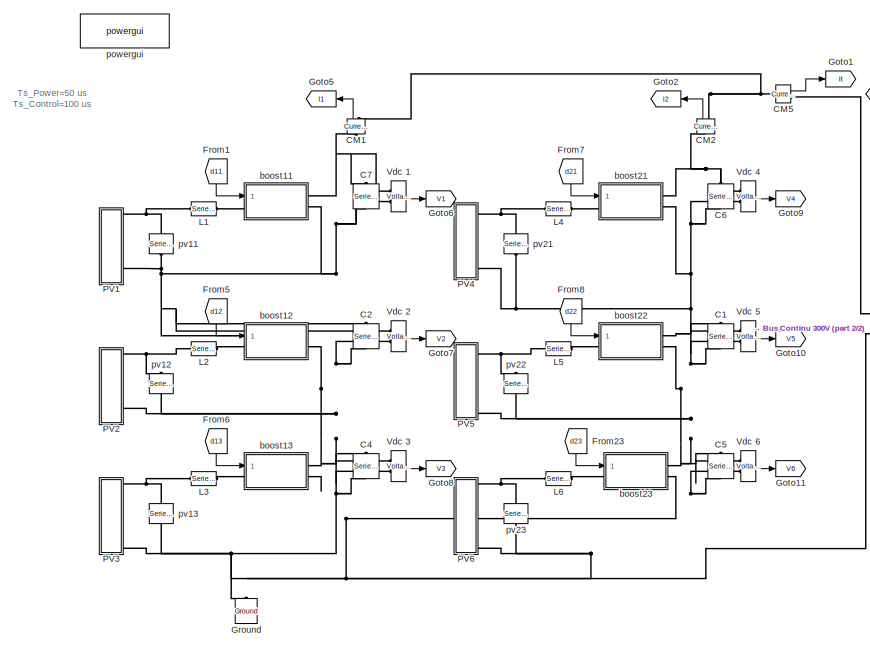
[diagram: root canvas - part 1/2, left side, full height]
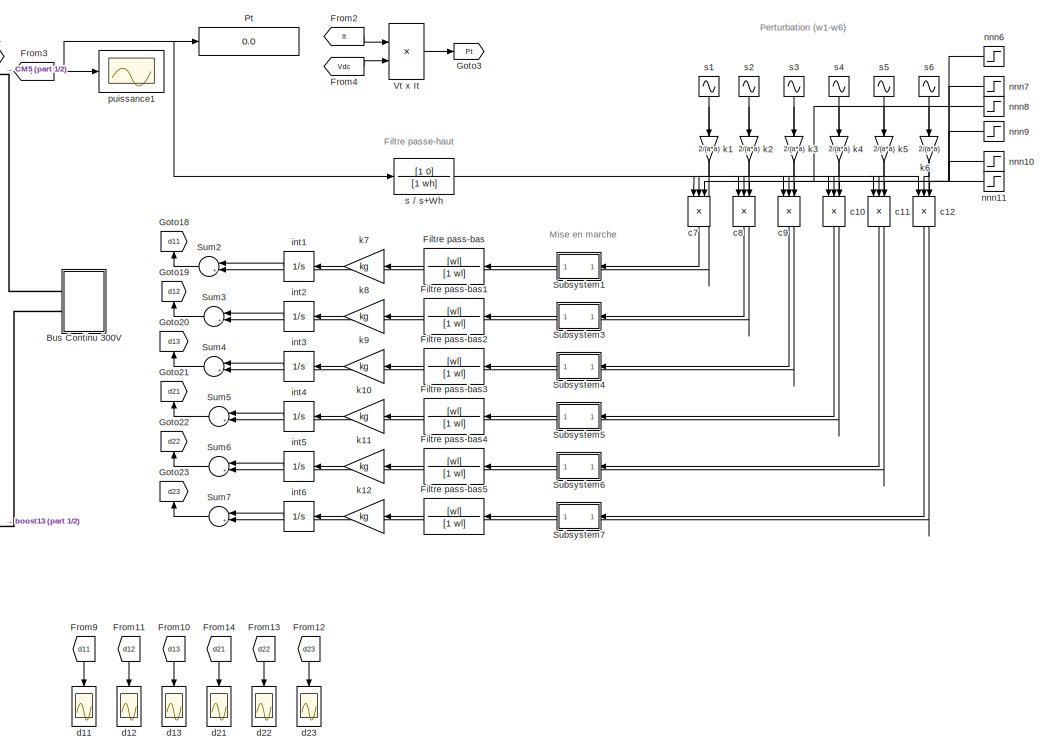
[diagram: root canvas - part 2/2, right side, full height]
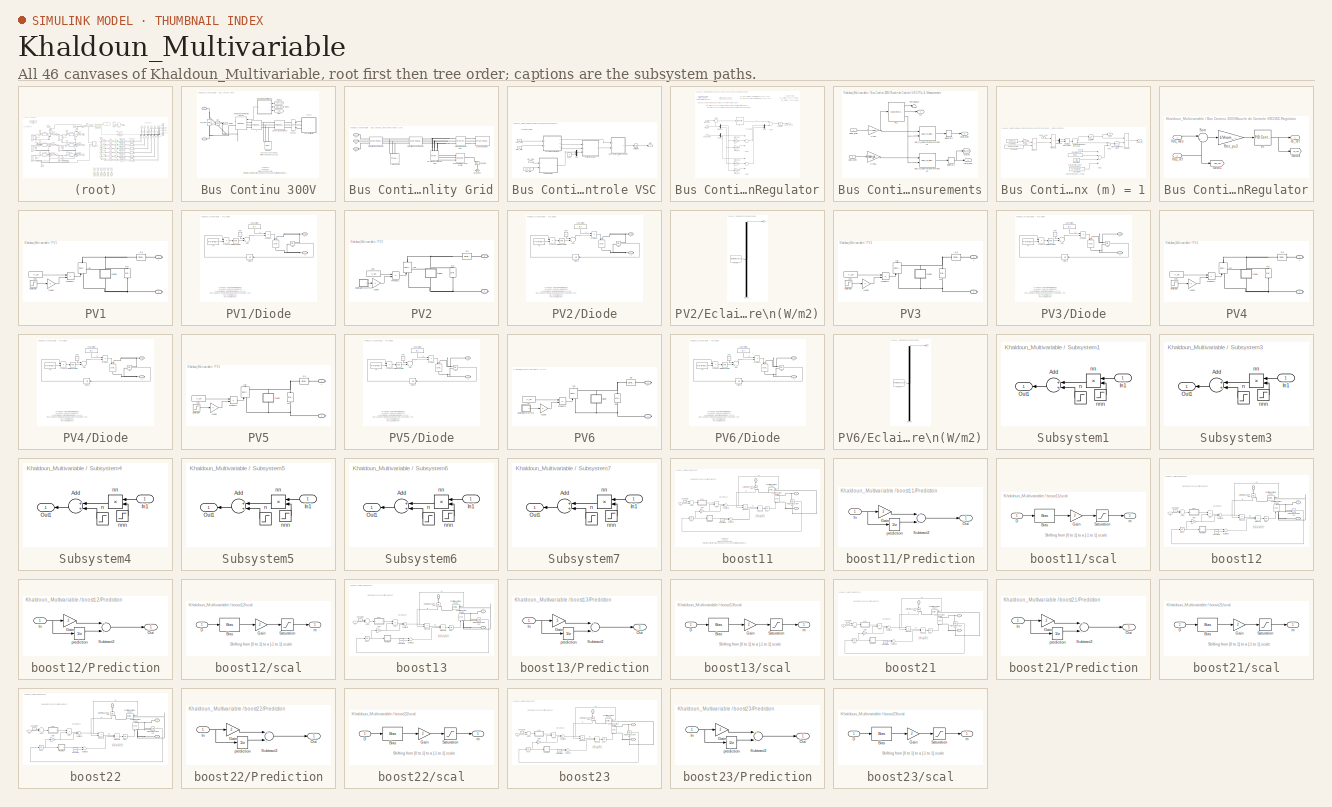
[diagram: thumbnail index - all 46 canvases of the model, root first then tree order]
MODEL Khaldoun_Multivariable
KIND model
CONFIG InitFcn = k = 1.381e-23;     \nq = 1.602e-19;     \nA = 1.81;          \nEg = 1.16;          \nNs = 72;            \nNp=1;               \nki=1.96e-3;         \nRs =2.48e-3;        \nRp = 8.7;          \nTr =298.5;          \nI0_r = 1.13e-6;   \nIr_ph = 5.61;  \n\nT=298.5;    \n\nTs_Power=5e-6;\nTs=5e-6;\nTs_Control=10e-6;\n\nCi=100;\nC1i=42;\nD0=0.5;\n\nC=440e-6;\nL=440e-6;\nC1=22e-6;\n\nsol=1;\n\nC_init=1...<+132ch>
CONFIG StartFcn = k = 1.381e-23;     \nq = 1.602e-19;     \nA = 1.81;          \nEg = 1.16;          \nNs = 72;            \nNp=1;               \nki=1.96e-3;         \nRs =2.48e-3;        \nRp = 8.7;          \nTr =298.5;          \nI0_r = 1.13e-6;   \nIr_ph = 5.61;  \n\nT=298.5;    \n\nTs_Power=5e-6;\nTs=5e-6;\nTs_Control=10e-6;\n\nCi=100;\nC1i=42;\nD0=0.5;\n\nC=440e-6;\nL=440e-6;\nC1=22e-6;\n\nsol=1;\n\nC_init=1...<+132ch>
BLOCK [SubSystem] Bus Continu 300V
  FunctionWithSeparateData = off
  MaskHideContents = off
  MinAlgLoopOccurrences = off
  Opaque = off
  Ports = [0, 0, 0, 0, 0, 2]
  PropExecContextOutsideSubsystem = off
  RTWSystemCode = Auto
  RequestExecContextInheritance = off
  SID = 742
BLOCK [PMIOPort] Bus Continu 300V/+
  Port = 1
  SID = 853
  Side = Left
BLOCK [PMIOPort] Bus Continu 300V/-
  Port = 2
  SID = 854
  Side = Left
BLOCK [Reference] Bus Continu 300V/20 kvar   REF=powerlib/Elements/Three-Phase\nSeries RLC Load
  ActivePower = 20e3/100
  AttributesFormatString = \\n
  CapacitivePower = 20e3
  Configuration = Y (grounded)
  InductivePower = 0
  LConnTagsString = A|B|C
  LoadType = constant Z
  Measurements = None
  NominalFrequency = 60
  NominalVoltage = 180
  Ports = [0, 0, 0, 0, 0, 3]
  SID = 743
  SourceBlock = powerlib/Elements/Three-Phase\nSeries RLC Load
  SourceType = Three-Phase Series RLC Load
BLOCK [Reference] Bus Continu 300V/200 kVA\n180V // 25 kV  REF=powerlib/Elements/Three-Phase\nTransformer\n(Two Windings)
  AttributesFormatString = \\n
  BreakLoop = off
  DataFile = 'hysteresis'
  DataType = off
  Hysteresis = off
  InitialFluxes = [ 0.8 , -0.8 , 0.7 ]
  Lm = 500
  Measurements = None
  MoreParameters = off
  NominalPower = [200e3 , 60 ]
  Ports = [0, 0, 0, 0, 0, 3, 3]
  Rm = 500
  SID = 744
  Saturation = [ 0,0 ; 0.0024,1.2 ; 1.0,1.52 ]
  SetInitialFlux = off
  SetSaturation = off
  SourceBlock = powerlib/Elements/Three-Phase\nTransformer\n(Two Windings)
  SourceType = Three-Phase Transformer (Two Windings)
  TransfoNumber = 0
  UNITS = pu
  Winding1 = [ 25e3 , 0.001 , 0.03 ]
  Winding1Connection = Yg
  Winding2 = [ 180 , 0.001 , 0.03 ]
  Winding2Connection = Delta (D1)
BLOCK [SubSystem] Bus Continu 300V/600V\nUtlity Grid
  FunctionWithSeparateData = off
  MaskHideContents = off
  MinAlgLoopOccurrences = off
  Opaque = off
  Ports = [0, 0, 0, 0, 0, 3]
  PropExecContextOutsideSubsystem = off
  RTWSystemCode = Auto
  RequestExecContextInheritance = off
  SID = 745
BLOCK [Reference] Bus Continu 300V/600V\nUtlity Grid/120 kV // 25 kV\n47 MVA  REF=powerlib/Elements/Three-Phase\nTransformer\n(Two Windings)
  AttributesFormatString = \\n
  BreakLoop = off
  DataFile = 'basic_model'
  DataType = off
  Hysteresis = off
  InitialFluxes = [ 0.8 , -0.8 , 0.7 ]
  Lm = 500
  Measurements = None
  MoreParameters = off
  NominalPower = [47e6 60 ]
  Ports = [0, 0, 0, 0, 0, 3, 3]
  Rm = 500
  SID = 746
  Saturation = [ 0,0  ;  0.005,1.2  ;  1.0,1.4 ]
  SetInitialFlux = off
  SetSaturation = off
  SourceBlock = powerlib/Elements/Three-Phase\nTransformer\n(Two Windings)
  SourceType = Three-Phase Transformer (Two Windings)
  TransfoNumber = 0
  UNITS = pu
  Winding1 = [ 120e3  0.08/30   0.08 ]
  Winding1Connection = Yg
  Winding2 = [ 25e3  0.08/30  0.08]
  Winding2Connection = Delta (D1)
BLOCK [Reference] Bus Continu 300V/600V\nUtlity Grid/120kV 2500MVA  REF=powerlib/Electrical\nSources/Three-Phase Source
  BaseVoltage = 120e3
  BusType = swing
  Frequency = 60
  Inductance = 16.58e-3
  InternalConnection = Yg
  PhaseAngle = 0
  Ports = [0, 0, 0, 0, 0, 0, 3]
  Pref = 0
  Qmax = inf
  Qmin = -inf
  Qref = 0
  Resistance = 0.8929
  SID = 747
  ShortCircuitLevel = 2500e6
  SourceBlock = powerlib/Electrical\nSources/Three-Phase Source
  SourceType = Three-Phase Source
  SpecifyImpedance = on
  Voltage = 120e3
  XRratio = 7
BLOCK [Reference] Bus Continu 300V/600V\nUtlity Grid/2-MW\nLoad  REF=powerlib/Elements/Three-Phase\nParallel RLC Load
  ActivePower = 2e6
  AttributesFormatString = \\n
  CapacitivePower = 0
  Configuration = Y (grounded)
  InductivePower = 0
  LConnTagsString = A|B|C
  LoadType = constant Z
  Measurements = None
  NominalFrequency = 60
  NominalVoltage = 25e3
  Ports = [0, 0, 0, 0, 0, 3]
  SID = 748
  SourceBlock = powerlib/Elements/Three-Phase\nParallel RLC Load
  SourceType = Three-Phase Parallel RLC Load
BLOCK [Reference] Bus Continu 300V/600V\nUtlity Grid/3.3ohms   REF=powerlib/Elements/Series RLC Branch
  BranchType = R
  Capacitance = []
  Inductance = []
  InitialCurrent = 0
  InitialVoltage = 0
  LConnTagsString = __new0
  Measurements = None
  Ports = [0, 0, 0, 0, 0, 1, 1]
  RConnTagsString = __new0
  Resistance = 3.3
  SID = 749
  SetiL0 = off
  Setx0 = off
  SourceBlock = powerlib/Elements/Series RLC Branch
  SourceType = Series RLC Branch
BLOCK [Reference] Bus Continu 300V/600V\nUtlity Grid/30-MW\n2-Mvar\nLoad  REF=powerlib/Elements/Three-Phase\nParallel RLC Load
  ActivePower = 30e6
  AttributesFormatString = \\n
  CapacitivePower = 0
  Configuration = Y (grounded)
  InductivePower = 2e6
  LConnTagsString = A|B|C
  LoadType = constant Z
  Measurements = None
  NominalFrequency = 60
  NominalVoltage = 25e3
  Ports = [0, 0, 0, 0, 0, 3]
  SID = 750
  SourceBlock = powerlib/Elements/Three-Phase\nParallel RLC Load
  SourceType = Three-Phase Parallel RLC Load
BLOCK [PMIOPort] Bus Continu 300V/600V\nUtlity Grid/A
  Port = 1
  SID = 755
  Side = Left
BLOCK [PMIOPort] Bus Continu 300V/600V\nUtlity Grid/B
  Port = 2
  SID = 756
  Side = Left
BLOCK [PMIOPort] Bus Continu 300V/600V\nUtlity Grid/C
  Port = 3
  SID = 757
  Side = Left
BLOCK [Reference] Bus Continu 300V/600V\nUtlity Grid/Ground3  REF=powerlib/Elements/Ground
  AttributesFormatString = \\n
  LConnTagsString = a
  Ports = [0, 0, 0, 0, 0, 1]
  SID = 751
  SourceBlock = powerlib/Elements/Ground
  SourceType = Ground
BLOCK [Reference] Bus Continu 300V/600V\nUtlity Grid/Grounding\nTransformer   REF=powerlib/Elements/Grounding\nTransformer 
  MagnetizationBranch_SI = [1041.7 3.927e+005]
  MagnetizationBranch_pu = [500 500]
  Measurements = None
  NominalPower = [100e6   60]
  NominalVoltage = 25e3
  Ports = [0, 0, 0, 0, 0, 3, 1]
  SID = 752
  SourceBlock = powerlib/Elements/Grounding\nTransformer
  SourceType = Grounding Transformer
  UNITS = pu
  ZeroSequenceImpedance_SI = [0.052083 589.05]
  ZeroSequenceImpedance_pu = [0.025 0.75]
BLOCK [Reference] Bus Continu 300V/600V\nUtlity Grid/PI Section\n14 km Feeder  REF=powerlib/Elements/Three-Phase\nPI Section Line
  AttributesFormatString = \\n
  Capacitances = [11.33e-009 5.01e-009]
  Frequency = 60
  Inductances = [1.05e-3 3.32e-3]
  LConnTagsString = a|b|c
  Length = 14
  Ports = [0, 0, 0, 0, 0, 3, 3]
  RConnTagsString = A|B|C
  Resistances = [0.1153 0.413]
  SID = 753
  SourceBlock = powerlib/Elements/Three-Phase\nPI Section Line
  SourceType = Three-Phase PI Section Line
BLOCK [Reference] Bus Continu 300V/600V\nUtlity Grid/PI Section\n5 km Feeder  REF=powerlib/Elements/Three-Phase\nPI Section Line
  AttributesFormatString = \\n
  Capacitances = [11.33e-009 5.01e-009]
  Frequency = 60
  Inductances = [1.05e-3 3.32e-3]
  LConnTagsString = a|b|c
  Length = 5
  Ports = [0, 0, 0, 0, 0, 3, 3]
  RConnTagsString = A|B|C
  Resistances = [0.1153 0.413]
  SID = 754
  SourceBlock = powerlib/Elements/Three-Phase\nPI Section Line
  SourceType = Three-Phase PI Section Line
BLOCK [Reference] Bus Continu 300V/B1  REF=powerlib/Measurements/Three-Phase\nV-I Measurement
  CurrentMeasurement = yes
  Ipu = off
  LabelI = Iabc_B1
  LabelV = Vabc_B1
  OutputType = Magnitude
  PSBequivalent = 0
  Pbase = 100e6
  PhasorSimulation = off
  Ports = [0, 0, 0, 0, 0, 3, 3]
  SID = 758
  SetLabelI = on
  SetLabelV = on
  SourceBlock = powerlib/Measurements/Three-Phase\nV-I Measurement
  SourceType = Three-Phase VI Measurement
  Vbase = 500e3
  VoltageMeasurement = phase-to-ground
  Vpu = off
  VpuLL = off
BLOCK [SubSystem] Bus Continu 300V/Boucle de Controle VSC
  FunctionWithSeparateData = off
  MaskCallbackString = |||||||
  MaskEnableString = on,on,on,on,on,on,on,on
  MaskHideContents = off
  MaskIconFrame = on
  MaskIconOpaque = on
  MaskIconRotate = none
  MaskIconUnits = autoscale
  MaskInitialization = Pnom=nom(1);\nFnom=nom(2);\nVnom_prim=Vnom(1);\nVnom_sec=Vnom(2);\nZbase=Vnom_sec^2/Pnom;\nRtot_pu=RLxfo(1) + RLchoke(1)/Zbase;\nLtot_pu=RLxfo(2) + RLchoke(2)/(Zbase/(2*pi*Fnom));\nKp_VDCreg=K_VDCreg(1);\nKi_VDCreg=K_VDCreg(2);\nKp_Ireg=K_Ireg(1);\nKi_Ireg=K_Ireg(2);\nVdc_ref=Vnom_dc;\n
  MaskPortRotate = default
  MaskPromptString = Puissance et féquence nominales [ Pnom(VA)  Fnom(Hz) ]:|Tension nominale au primaire et secondaire (Vrms LL) [ Vnom_prim   Vnom_sec ]:|Tension du bus DC bus nominale (V):|Impedance de fuite du transformateur (pu/Pnom) [ Rxfo  Lxf ]|Impedance choke [ R(ohm) L(H) ]|Gains régulateur de tension du bus DC [ Kp  Ki ]:|Gains régulateur du courant du bus D [ Kp  Ki ]:|Temps d'échantillonnage
  MaskStyleString = edit,edit,edit,edit,edit,edit,edit,edit
  MaskToolTipString = on,on,on,on,on,on,on,on
  MaskTunableValueString = on,on,on,on,on,on,on,on
  MaskType = VSC Main Controller
  MaskValueString = [ 200e3  60 ]|[ 25e3 260 ]|300|[0.002  0.06 ]|[1e-3  125e-6  ]|[2  800]|[0.3 20]|Ts_Control
  MaskVariables = nom=@1;Vnom=@2;Vnom_dc=@3;RLxfo=@4;RLchoke=@5;K_VDCreg=@6;K_Ireg=@7;Ts=@8;
  MaskVisibilityString = on,on,on,on,on,on,on,on
  MinAlgLoopOccurrences = off
  Opaque = off
  Ports = [3, 1]
  PropExecContextOutsideSubsystem = off
  RTWSystemCode = Auto
  RequestExecContextInheritance = off
  SID = 759
BLOCK [SubSystem] Bus Continu 300V/Boucle de Controle VSC/Current Regulator
  FunctionWithSeparateData = off
  MaskHideContents = off
  MinAlgLoopOccurrences = off
  Opaque = off
  Ports = [3, 1]
  PropExecContextOutsideSubsystem = off
  RTWSystemCode = Auto
  RequestExecContextInheritance = off
  SID = 763
BLOCK [Sum] Bus Continu 300V/Boucle de Controle VSC/Current Regulator/Add1
  InputSameDT = off
  Inputs = ++-
  OutDataTypeStr = Inherit: Inherit via internal rule
  Ports = [3, 1]
  SID = 767
  SaturateOnIntegerOverflow = off
BLOCK [Sum] Bus Continu 300V/Boucle de Controle VSC/Current Regulator/Add2
  InputSameDT = off
  OutDataTypeStr = Inherit: Inherit via internal rule
  Ports = [2, 1]
  SID = 768
  SaturateOnIntegerOverflow = off
BLOCK [Sum] Bus Continu 300V/Boucle de Controle VSC/Current Regulator/Add3
  InputSameDT = off
  Inputs = +++
  OutDataTypeStr = Inherit: Inherit via internal rule
  Ports = [3, 1]
  SID = 769
  SaturateOnIntegerOverflow = off
BLOCK [Demux] Bus Continu 300V/Boucle de Controle VSC/Current Regulator/Demux
  DisplayOption = bar
  Outputs = 2
  Ports = [1, 2]
  SID = 770
BLOCK [Demux] Bus Continu 300V/Boucle de Controle VSC/Current Regulator/Demux1
  DisplayOption = bar
  Outputs = 2
  Ports = [1, 2]
  SID = 771
BLOCK [Inport] Bus Continu 300V/Boucle de Controle VSC/Current Regulator/IdIq_mes
  IconDisplay = Port number
  Port = 2
  PortDimensions = 2
  SID = 765
BLOCK [Inport] Bus Continu 300V/Boucle de Controle VSC/Current Regulator/IdIq_ref
  IconDisplay = Port number
  Port = 3
  PortDimensions = 2
  SID = 766
BLOCK [Gain] Bus Continu 300V/Boucle de Controle VSC/Current Regulator/Ltot_pu1
  Gain = Ltot_pu
  SID = 772
BLOCK [Gain] Bus Continu 300V/Boucle de Controle VSC/Current Regulator/Ltot_pu2
  Gain = Ltot_pu
  SID = 773
BLOCK [Mux] Bus Continu 300V/Boucle de Controle VSC/Current Regulator/Mux
  DisplayOption = bar
  Inputs = 2
  Ports = [2, 1]
  SID = 774
BLOCK [Reference] Bus Continu 300V/Boucle de Controle VSC/Current Regulator/PI  REF=simulink/Continuous/PID Controller
  AntiWindupMode = none
  Controller = PI
  D = 0
  DOutDataTypeStr = Inherit: Inherit via internal rule
  DOutMax = []
  DOutMin = []
  DParamDataTypeStr = Inherit: Inherit via internal rule
  DParamMax = []
  DParamMin = []
  ExternalReset = none
  FilterContinuousStateAttributes = ''
  FilterMethod = Forward Euler
  FilterOutDataTypeStr = Inherit: Inherit via internal rule
  FilterOutMax = []
  FilterOutMin = []
  FilterRTWStateStorageClass = Auto
  FilterStateMustResolveToSignalObject = off
  Form = Parallel
  I = Ki_Ireg
  IOutDataTypeStr = Inherit: Inherit via internal rule
  IOutMax = []
  IOutMin = []
  IParamDataTypeStr = Inherit: Inherit via internal rule
  IParamMax = []
  IParamMin = []
  IgnoreLimit = off
  InitialConditionForFilter = 0
  InitialConditionForIntegrator = 0
  InitialConditionSource = internal
  IntegratorContinuousStateAttributes = ''
  IntegratorMethod = Forward Euler
  IntegratorOutDataTypeStr = Inherit: Inherit via internal rule
  IntegratorOutMax = []
  IntegratorOutMin = []
  IntegratorRTWStateStorageClass = Auto
  IntegratorStateMustResolveToSignalObject = off
  Kb = 1
  KbOutDataTypeStr = Inherit: Inherit via internal rule
  KbOutMax = []
  KbOutMin = []
  KbParamDataTypeStr = Inherit: Inherit via internal rule
  KbParamMax = []
  KbParamMin = []
  Kt = 1
  KtOutDataTypeStr = Inherit: Inherit via internal rule
  KtOutMax = []
  KtOutMin = []
  KtParamDataTypeStr = Inherit: Inherit via internal rule
  KtParamMax = []
  KtParamMin = []
  LimitOutput = on
  LinearizeAsGain = off
  LockScale = off
  LowerSaturationLimit = -2
  N = 100
  NOutDataTypeStr = Inherit: Inherit via internal rule
  NOutMax = []
  NOutMin = []
  NParamDataTypeStr = Inherit: Inherit via internal rule
  NParamMax = []
  NParamMin = []
  P = Kp_Ireg
  POutDataTypeStr = Inherit: Inherit via internal rule
  POutMax = []
  POutMin = []
  PParamDataTypeStr = Inherit: Inherit via internal rule
  PParamMax = []
  PParamMin = []
  Ports = [1, 1]
  RndMeth = Floor
  SID = 775
  SampleTime = Ts
  SaturateOnIntegerOverflow = off
  SaturationOutDataTypeStr = Inherit: Same as input
  SaturationOutMax = []
  SaturationOutMin = []
  SourceBlock = simulink/Continuous/PID Controller
  SourceType = PID 1dof
  SumAccumDataTypeStr = Inherit: Inherit via internal rule
  SumDAccumDataTypeStr = Inherit: Inherit via internal rule
  SumDOutDataTypeStr = Inherit: Inherit via internal rule
  SumDOutMax = []
  SumDOutMin = []
  SumI1AccumDataTypeStr = Inherit: Inherit via internal rule
  SumI1OutDataTypeStr = Inherit: Inherit via internal rule
  SumI1OutMax = []
  SumI1OutMin = []
  SumI2AccumDataTypeStr = Inherit: Inherit via internal rule
  SumI2OutDataTypeStr = Inherit: Inherit via internal rule
  SumI2OutMax = []
  SumI2OutMin = []
  SumI3AccumDataTypeStr = Inherit: Inherit via internal rule
  SumI3OutDataTypeStr = Inherit: Inherit via internal rule
  SumI3OutMax = []
  SumI3OutMin = []
  SumOutDataTypeStr = Inherit: Inherit via internal rule
  SumOutMax = []
  SumOutMin = []
  TimeDomain = Discrete-time
  TrackingMode = off
  UpperSaturationLimit = 2
  ZeroCross = on
BLOCK [Gain] Bus Continu 300V/Boucle de Controle VSC/Current Regulator/Rtot_pu1
  Gain = Rtot_pu
  SID = 776
BLOCK [Gain] Bus Continu 300V/Boucle de Controle VSC/Current Regulator/Rtot_pu5
  Gain = Rtot_pu
  SID = 777
BLOCK [Saturate] Bus Continu 300V/Boucle de Controle VSC/Current Regulator/Saturation
  InputPortMap = u0
  LowerLimit = -2
  Ports = [1, 1]
  SID = 778
  UpperLimit = 2
BLOCK [Sum] Bus Continu 300V/Boucle de Controle VSC/Current Regulator/Sum
  IconShape = round
  InputSameDT = off
  Inputs = |-+
  OutDataTypeStr = Inherit: Inherit via internal rule
  Ports = [2, 1]
  SID = 779
  SaturateOnIntegerOverflow = off
BLOCK [Outport] Bus Continu 300V/Boucle de Controle VSC/Current Regulator/VdVq_conv
  IconDisplay = Port number
  SID = 780
BLOCK [Inport] Bus Continu 300V/Boucle de Controle VSC/Current Regulator/VdVq_mes
  IconDisplay = Port number
  PortDimensions = 2
  SID = 764
BLOCK [Inport] Bus Continu 300V/Boucle de Controle VSC/Iabc_prim
  IconDisplay = Port number
  Port = 2
  PortDimensions = 3
  SID = 761
BLOCK [Constant] Bus Continu 300V/Boucle de Controle VSC/Iq_ref
  SID = 792
  Value = 0
BLOCK [Mux] Bus Continu 300V/Boucle de Controle VSC/Mux
  DisplayOption = bar
  Inputs = 2
  Ports = [2, 1]
  SID = 793
BLOCK [SubSystem] Bus Continu 300V/Boucle de Controle VSC/PLL & Measurements
  FunctionWithSeparateData = off
  MaskHideContents = off
  MinAlgLoopOccurrences = off
  Opaque = off
  Ports = [2, 3]
  PropExecContextOutsideSubsystem = off
  RTWSystemCode = Auto
  RequestExecContextInheritance = off
  SID = 794
BLOCK [Goto] Bus Continu 300V/Boucle de Controle VSC/PLL & Measurements/Goto3
  GotoTag = IdIq_prim
  SID = 797
  TagVisibility = global
BLOCK [Inport] Bus Continu 300V/Boucle de Controle VSC/PLL & Measurements/Iabc_prim
  IconDisplay = Port number
  Port = 2
  SID = 796
BLOCK [Outport] Bus Continu 300V/Boucle de Controle VSC/PLL & Measurements/IdIq_prim
  IconDisplay = Port number
  Port = 3
  SID = 808
BLOCK [Reference] Bus Continu 300V/Boucle de Controle VSC/PLL & Measurements/PLL  REF=powerlib_extras/Discrete \nControl Blocks/Discrete\n3-phase PLL
  AGC = off
  Fmin = 45
  ParK = [60 1400]
  Par_Init = [-0.57  Fnom]
  Ports = [1, 3]
  SID = 798
  SourceBlock = powerlib_extras/Discrete \nControl Blocks/Discrete\n3-phase PLL
  SourceType = Discrete 3-phase PLL
  Ts = Ts
BLOCK [Selector] Bus Continu 300V/Boucle de Controle VSC/PLL & Measurements/Selector1
  IndexOptions = Index vector (dialog)
  Indices = [1 2]
  InputPortWidth = 3
  OutputSizes = 1
  Ports = [1, 1]
  SID = 799
BLOCK [Selector] Bus Continu 300V/Boucle de Controle VSC/PLL & Measurements/Selector2
  IndexOptions = Index vector (dialog)
  Indices = [1 2]
  InputPortWidth = 3
  OutputSizes = 1
  Ports = [1, 1]
  SID = 800
BLOCK [Terminator] Bus Continu 300V/Boucle de Controle VSC/PLL & Measurements/Terminator
  SID = 801
BLOCK [Gain] Bus Continu 300V/Boucle de Controle VSC/PLL & Measurements/V->pu
  Gain = 1/(Vnom_prim*sqrt(2)/sqrt(3))
  SID = 802
BLOCK [Gain] Bus Continu 300V/Boucle de Controle VSC/PLL & Measurements/V->pu1
  Gain = Vnom_prim*sqrt(3)/Pnom/sqrt(2)
  SID = 803
BLOCK [Inport] Bus Continu 300V/Boucle de Controle VSC/PLL & Measurements/Vabc_prim
  IconDisplay = Port number
  SID = 795
BLOCK [Outport] Bus Continu 300V/Boucle de Controle VSC/PLL & Measurements/VdVq_prim
  IconDisplay = Port number
  Port = 2
  SID = 807
BLOCK [Reference] Bus Continu 300V/Boucle de Controle VSC/PLL & Measurements/abc_to_dq0\nTransformation1  REF=powerlib_extras/Measurements/abc_to_dq0\nTransformation
  Ports = [2, 1]
  SID = 804
  SourceBlock = powerlib_extras/Measurements/abc_to_dq0\nTransformation
  SourceType = abc to dq0 Transformation
BLOCK [Reference] Bus Continu 300V/Boucle de Controle VSC/PLL & Measurements/abc_to_dq0\nTransformation2  REF=powerlib_extras/Measurements/abc_to_dq0\nTransformation
  Ports = [2, 1]
  SID = 805
  SourceBlock = powerlib_extras/Measurements/abc_to_dq0\nTransformation
  SourceType = abc to dq0 Transformation
BLOCK [Outport] Bus Continu 300V/Boucle de Controle VSC/PLL & Measurements/wt
  IconDisplay = Port number
  SID = 806
BLOCK [SubSystem] Bus Continu 300V/Boucle de Controle VSC/Uabc_ref Generation \nmax (m) = 1
  FunctionWithSeparateData = off
  MaskHideContents = off
  MinAlgLoopOccurrences = off
  Opaque = off
  Ports = [2, 1]
  PropExecContextOutsideSubsystem = off
  RTWSystemCode = Auto
  RequestExecContextInheritance = off
  SID = 809
BLOCK [Sum] Bus Continu 300V/Boucle de Controle VSC/Uabc_ref Generation \nmax (m) = 1/Add1
  InputSameDT = off
  Inputs = ++++
  OutDataTypeStr = Inherit: Inherit via internal rule
  Ports = [4, 1]
  SID = 812
  SaturateOnIntegerOverflow = off
BLOCK [Sum] Bus Continu 300V/Boucle de Controle VSC/Uabc_ref Generation \nmax (m) = 1/Add2
  InputSameDT = off
  OutDataTypeStr = Inherit: Inherit via internal rule
  Ports = [2, 1]
  SID = 813
  SaturateOnIntegerOverflow = off
BLOCK [ComplexToMagnitudeAngle] Bus Continu 300V/Boucle de Controle VSC/Uabc_ref Generation \nmax (m) = 1/Complex to\nMagnitude-Angle
  Ports = [1, 2]
  SID = 814
BLOCK [Constant] Bus Continu 300V/Boucle de Controle VSC/Uabc_ref Generation \nmax (m) = 1/Constant
  SID = 815
  Value = -pi/6
BLOCK [Constant] Bus Continu 300V/Boucle de Controle VSC/Uabc_ref Generation \nmax (m) = 1/Constant1
  SID = 816
  Value = Vnom_dc
BLOCK [Constant] Bus Continu 300V/Boucle de Controle VSC/Uabc_ref Generation \nmax (m) = 1/Constant2
  SID = 817
  Value = [ 0  -2*pi/3  2*pi/3  ]
BLOCK [Constant] Bus Continu 300V/Boucle de Controle VSC/Uabc_ref Generation \nmax (m) = 1/Constant3
  SID = 818
  Value = Vnom_sec*sqrt(2)/sqrt(3)
BLOCK [Constant] Bus Continu 300V/Boucle de Controle VSC/Uabc_ref Generation \nmax (m) = 1/Constant4
  SID = 819
  Value = Ts*Fnom*(2*pi)
BLOCK [Demux] Bus Continu 300V/Boucle de Controle VSC/Uabc_ref Generation \nmax (m) = 1/Demux1
  DisplayOption = bar
  Outputs = 2
  Ports = [1, 2]
  SID = 820
BLOCK [Gain] Bus Continu 300V/Boucle de Controle VSC/Uabc_ref Generation \nmax (m) = 1/Gain1
  Gain = 1/2
  OutDataTypeStr = Inherit: Inherit via internal rule
  ParamDataTypeStr = Inherit: Inherit via internal rule
  SID = 821
  SaturateOnIntegerOverflow = off
BLOCK [Goto] Bus Continu 300V/Boucle de Controle VSC/Uabc_ref Generation \nmax (m) = 1/Goto1
  GotoTag = m
  SID = 822
  TagVisibility = global
BLOCK [Product] Bus Continu 300V/Boucle de Controle VSC/Uabc_ref Generation \nmax (m) = 1/Product
  InputSameDT = off
  Inputs = */
  OutDataTypeStr = Inherit: Inherit via internal rule
  Ports = [2, 1]
  SID = 823
  SaturateOnIntegerOverflow = off
BLOCK [Product] Bus Continu 300V/Boucle de Controle VSC/Uabc_ref Generation \nmax (m) = 1/Product1
  InputSameDT = off
  Inputs = */
  OutDataTypeStr = Inherit: Inherit via internal rule
  Ports = [2, 1]
  SID = 824
  SaturateOnIntegerOverflow = off
BLOCK [Product] Bus Continu 300V/Boucle de Controle VSC/Uabc_ref Generation \nmax (m) = 1/Product2
  InputSameDT = off
  Inputs = **
  OutDataTypeStr = Inherit: Inherit via internal rule
  Ports = [2, 1]
  SID = 825
  SaturateOnIntegerOverflow = off
BLOCK [RealImagToComplex] Bus Continu 300V/Boucle de Controle VSC/Uabc_ref Generation \nmax (m) = 1/Real-Imag to\nComplex
  Ports = [2, 1]
  SID = 826
BLOCK [Saturate] Bus Continu 300V/Boucle de Controle VSC/Uabc_ref Generation \nmax (m) = 1/Saturation
  InputPortMap = u0
  LowerLimit = 0
  Ports = [1, 1]
  SID = 827
  UpperLimit = 1
BLOCK [Trigonometry] Bus Continu 300V/Boucle de Controle VSC/Uabc_ref Generation \nmax (m) = 1/Trigonometric\nFunction
  Ports = [1, 1]
  SID = 828
BLOCK [Outport] Bus Continu 300V/Boucle de Controle VSC/Uabc_ref Generation \nmax (m) = 1/Uabc_ref
  IconDisplay = Port number
  SID = 829
BLOCK [Inport] Bus Continu 300V/Boucle de Controle VSC/Uabc_ref Generation \nmax (m) = 1/VdVq_conv
  IconDisplay = Port number
  Port = 2
  SID = 811
BLOCK [Inport] Bus Continu 300V/Boucle de Controle VSC/Uabc_ref Generation \nmax (m) = 1/wt
  IconDisplay = Port number
  SID = 810
BLOCK [UnitDelay] Bus Continu 300V/Boucle de Controle VSC/Unit Delay
  InputProcessing = Elements as channels (sample based)
  SID = 832
  SampleTime = Ts_Control
BLOCK [Outport] Bus Continu 300V/Boucle de Controle VSC/Uref
  IconDisplay = Port number
  SID = 843
BLOCK [SubSystem] Bus Continu 300V/Boucle de Controle VSC/VDC Regulator
  FunctionWithSeparateData = off
  MaskHideContents = off
  MinAlgLoopOccurrences = off
  Opaque = off
  Ports = [2, 1]
  PropExecContextOutsideSubsystem = off
  RTWSystemCode = Auto
  RequestExecContextInheritance = off
  SID = 833
BLOCK [Goto] Bus Continu 300V/Boucle de Controle VSC/VDC Regulator/Goto1
  GotoTag = Vdc_ref
  SID = 836
  TagVisibility = global
BLOCK [Goto] Bus Continu 300V/Boucle de Controle VSC/VDC Regulator/Goto4
  GotoTag = Id_ref
  SID = 837
  TagVisibility = global
BLOCK [Outport] Bus Continu 300V/Boucle de Controle VSC/VDC Regulator/Id_ref
  IconDisplay = Port number
  InitialOutput = 0
  SID = 841
  SampleTime = Ts
BLOCK [Reference] Bus Continu 300V/Boucle de Controle VSC/VDC Regulator/PI  REF=simulink/Continuous/PID Controller
  AntiWindupMode = none
  Controller = PI
  D = 0
  DOutDataTypeStr = Inherit: Inherit via internal rule
  DOutMax = []
  DOutMin = []
  DParamDataTypeStr = Inherit: Inherit via internal rule
  DParamMax = []
  DParamMin = []
  ExternalReset = none
  FilterContinuousStateAttributes = ''
  FilterMethod = Forward Euler
  FilterOutDataTypeStr = Inherit: Inherit via internal rule
  FilterOutMax = []
  FilterOutMin = []
  FilterRTWStateStorageClass = Auto
  FilterStateMustResolveToSignalObject = off
  Form = Parallel
  I = Ki_VDCreg
  IOutDataTypeStr = Inherit: Inherit via internal rule
  IOutMax = []
  IOutMin = []
  IParamDataTypeStr = Inherit: Inherit via internal rule
  IParamMax = []
  IParamMin = []
  IgnoreLimit = off
  InitialConditionForFilter = 0
  InitialConditionForIntegrator = 0
  InitialConditionSource = internal
  IntegratorContinuousStateAttributes = ''
  IntegratorMethod = Trapezoidal
  IntegratorOutDataTypeStr = Inherit: Inherit via internal rule
  IntegratorOutMax = []
  IntegratorOutMin = []
  IntegratorRTWStateStorageClass = Auto
  IntegratorStateMustResolveToSignalObject = off
  Kb = 1
  KbOutDataTypeStr = Inherit: Inherit via internal rule
  KbOutMax = []
  KbOutMin = []
  KbParamDataTypeStr = Inherit: Inherit via internal rule
  KbParamMax = []
  KbParamMin = []
  Kt = 1
  KtOutDataTypeStr = Inherit: Inherit via internal rule
  KtOutMax = []
  KtOutMin = []
  KtParamDataTypeStr = Inherit: Inherit via internal rule
  KtParamMax = []
  KtParamMin = []
  LimitOutput = on
  LinearizeAsGain = off
  LockScale = off
  LowerSaturationLimit = -1.5
  N = 100
  NOutDataTypeStr = Inherit: Inherit via internal rule
  NOutMax = []
  NOutMin = []
  NParamDataTypeStr = Inherit: Inherit via internal rule
  NParamMax = []
  NParamMin = []
  P = Kp_VDCreg
  POutDataTypeStr = Inherit: Inherit via internal rule
  POutMax = []
  POutMin = []
  PParamDataTypeStr = Inherit: Inherit via internal rule
  PParamMax = []
  PParamMin = []
  Ports = [1, 1]
  RndMeth = Floor
  SID = 838
  SampleTime = Ts
  SaturateOnIntegerOverflow = off
  SaturationOutDataTypeStr = Inherit: Same as input
  SaturationOutMax = []
  SaturationOutMin = []
  SourceBlock = simulink/Continuous/PID Controller
  SourceType = PID 1dof
  SumAccumDataTypeStr = Inherit: Inherit via internal rule
  SumDAccumDataTypeStr = Inherit: Inherit via internal rule
  SumDOutDataTypeStr = Inherit: Inherit via internal rule
  SumDOutMax = []
  SumDOutMin = []
  SumI1AccumDataTypeStr = Inherit: Inherit via internal rule
  SumI1OutDataTypeStr = Inherit: Inherit via internal rule
  SumI1OutMax = []
  SumI1OutMin = []
  SumI2AccumDataTypeStr = Inherit: Inherit via internal rule
  SumI2OutDataTypeStr = Inherit: Inherit via internal rule
  SumI2OutMax = []
  SumI2OutMin = []
  SumI3AccumDataTypeStr = Inherit: Inherit via internal rule
  SumI3OutDataTypeStr = Inherit: Inherit via internal rule
  SumI3OutMax = []
  SumI3OutMin = []
  SumOutDataTypeStr = Inherit: Inherit via internal rule
  SumOutMax = []
  SumOutMin = []
  TimeDomain = Discrete-time
  TrackingMode = off
  UpperSaturationLimit = 1.5
  ZeroCross = on
BLOCK [Gain] Bus Continu 300V/Boucle de Controle VSC/VDC Regulator/Rtot_pu3
  Gain = 1/Vnom_dc
  SID = 839
BLOCK [Sum] Bus Continu 300V/Boucle de Controle VSC/VDC Regulator/Sum
  IconShape = round
  InputSameDT = off
  Inputs = |+-
  OutDataTypeStr = Inherit: Inherit via internal rule
  Ports = [2, 1]
  SID = 840
  SaturateOnIntegerOverflow = off
BLOCK [Inport] Bus Continu 300V/Boucle de Controle VSC/VDC Regulator/Vdc_mes
  IconDisplay = Port number
  PortDimensions = 1
  SID = 834
BLOCK [Inport] Bus Continu 300V/Boucle de Controle VSC/VDC Regulator/Vdc_ref
  IconDisplay = Port number
  Port = 2
  PortDimensions = 1
  SID = 835
BLOCK [Inport] Bus Continu 300V/Boucle de Controle VSC/Vabc_prim
  IconDisplay = Port number
  PortDimensions = 3
  SID = 760
BLOCK [Inport] Bus Continu 300V/Boucle de Controle VSC/Vdc_mes
  IconDisplay = Port number
  Port = 3
  PortDimensions = 1
  SID = 762
BLOCK [Constant] Bus Continu 300V/Boucle de Controle VSC/Vdc_ref1
  SID = 842
  Value = Vdc_ref
BLOCK [Reference] Bus Continu 300V/DC_Bus  REF=powerlib/Elements/Series RLC Branch
  AttributesFormatString = \\n
  BranchType = C
  Capacitance = 12000e-6
  Inductance = 1.0
  InitialCurrent = 0
  InitialVoltage = 300
  LConnTagsString = __new0
  Measurements = None
  Ports = [0, 0, 0, 0, 0, 1, 1]
  RConnTagsString = __new0
  Resistance = 1.0
  SID = 845
  SetiL0 = off
  Setx0 = on
  SourceBlock = powerlib/Elements/Series RLC Branch
  SourceType = Series RLC Branch
BLOCK [From] Bus Continu 300V/From
  GotoTag = Vdc
  SID = 846
  TagVisibility = global
BLOCK [From] Bus Continu 300V/From10
  CloseFcn = tagdialog Close
  GotoTag = Vabc_B1
  SID = 847
  TagVisibility = global
BLOCK [From] Bus Continu 300V/From9
  CloseFcn = tagdialog Close
  GotoTag = Iabc_B1
  SID = 848
  TagVisibility = global
BLOCK [Goto] Bus Continu 300V/Goto4
  GotoTag = Vdc
  SID = 849
  TagVisibility = global
BLOCK [Reference] Bus Continu 300V/L  REF=powerlib/Elements/Three-Phase\nSeries RLC Branch
  AttributesFormatString = \\n
  BranchType = RL
  Capacitance = inf
  Inductance = 125e-6
  LConnTagsString = A|B|C
  Measurements = None
  Ports = [0, 0, 0, 0, 0, 3, 3]
  RConnTagsString = A|B|C
  Resistance = 0.1
  SID = 850
  SourceBlock = powerlib/Elements/Three-Phase\nSeries RLC Branch
  SourceType = Three-Phase Series RLC Branch
BLOCK [Reference] Bus Continu 300V/Onduleur VSC\nmodele moyen  REF=powerlib/Power\nElectronics/Universal Bridge
  Arms = 3
  Device = Average-model based VSC
  ForwardVoltage = 0
  ForwardVoltages = [  0  0  ]
  GTOparameters = [ 10e-6 , 20e-6 ]
  IGBTparameters = [ 1e-6 , 2e-6 ]
  Lon = 0
  Measurements = None
  Measurements_2 = None
  Ports = [1, 0, 0, 0, 0, 3, 2]
  Ron = 1e-3
  SID = 851
  SnubberCapacitance = inf
  SnubberResistance = 1e5
  SourceBlock = powerlib/Power\nElectronics/Universal Bridge
  SourceType = Universal Bridge
  converterType = Rectifier
BLOCK [Reference] Bus Continu 300V/Vdc   REF=powerlib/Measurements/Voltage Measurement
  AttributesFormatString = \\n
  OutputType = Magnitude
  PSBequivalent = 0
  PhasorSimulation = off
  Ports = [0, 1, 0, 0, 0, 2]
  SID = 852
  SourceBlock = powerlib/Measurements/Voltage Measurement
  SourceType = Voltage Measurement
  Tag = PoWeRsYsTeMmEaSuReMeNt
BLOCK [Reference] C1  REF=powerlib/Elements/Series RLC Branch
  AttributesFormatString = \\n
  BranchType = C
  Capacitance = C
  Inductance = 1.0
  InitialCurrent = 0
  InitialVoltage = Ci
  LConnTagsString = __new0
  Measurements = None
  Ports = [0, 0, 0, 0, 0, 1, 1]
  RConnTagsString = __new0
  Resistance = 1.0
  SID = 859
  SetiL0 = off
  Setx0 = on
  SourceBlock = powerlib/Elements/Series RLC Branch
  SourceType = Series RLC Branch
BLOCK [Reference] C2  REF=powerlib/Elements/Series RLC Branch
  AttributesFormatString = \\n
  BranchType = C
  Capacitance = C
  Inductance = 1.0
  InitialCurrent = 0
  InitialVoltage = Ci
  LConnTagsString = __new0
  Measurements = None
  Ports = [0, 0, 0, 0, 0, 1, 1]
  RConnTagsString = __new0
  Resistance = 1.0
  SID = 860
  SetiL0 = off
  Setx0 = on
  SourceBlock = powerlib/Elements/Series RLC Branch
  SourceType = Series RLC Branch
BLOCK [Reference] C4  REF=powerlib/Elements/Series RLC Branch
  AttributesFormatString = \\n
  BranchType = C
  Capacitance = C
  Inductance = 1.0
  InitialCurrent = 0
  InitialVoltage = Ci
  LConnTagsString = __new0
  Measurements = None
  Ports = [0, 0, 0, 0, 0, 1, 1]
  RConnTagsString = __new0
  Resistance = 1.0
  SID = 861
  SetiL0 = off
  Setx0 = on
  SourceBlock = powerlib/Elements/Series RLC Branch
  SourceType = Series RLC Branch
BLOCK [Reference] C5  REF=powerlib/Elements/Series RLC Branch
  AttributesFormatString = \\n
  BranchType = C
  Capacitance = C
  Inductance = 1.0
  InitialCurrent = 0
  InitialVoltage = Ci
  LConnTagsString = __new0
  Measurements = None
  Ports = [0, 0, 0, 0, 0, 1, 1]
  RConnTagsString = __new0
  Resistance = 1.0
  SID = 862
  SetiL0 = off
  Setx0 = on
  SourceBlock = powerlib/Elements/Series RLC Branch
  SourceType = Series RLC Branch
BLOCK [Reference] C6  REF=powerlib/Elements/Series RLC Branch
  AttributesFormatString = \\n
  BranchType = C
  Capacitance = C
  Inductance = 1.0
  InitialCurrent = 0
  InitialVoltage = Ci
  LConnTagsString = __new0
  Measurements = None
  Ports = [0, 0, 0, 0, 0, 1, 1]
  RConnTagsString = __new0
  Resistance = 1.0
  SID = 863
  SetiL0 = off
  Setx0 = on
  SourceBlock = powerlib/Elements/Series RLC Branch
  SourceType = Series RLC Branch
BLOCK [Reference] C7  REF=powerlib/Elements/Series RLC Branch
  AttributesFormatString = \\n
  BranchType = C
  Capacitance = C
  Inductance = 1.0
  InitialCurrent = 0
  InitialVoltage = Ci
  LConnTagsString = __new0
  Measurements = None
  Ports = [0, 0, 0, 0, 0, 1, 1]
  RConnTagsString = __new0
  Resistance = 1.0
  SID = 864
  SetiL0 = off
  Setx0 = on
  SourceBlock = powerlib/Elements/Series RLC Branch
  SourceType = Series RLC Branch
BLOCK [Reference] CM1  REF=powerlib/Measurements/Current Measurement
  AttributesFormatString = \\n
  OutputType = Magnitude
  PSBequivalent = 0
  PhasorSimulation = off
  Ports = [0, 1, 0, 0, 0, 1, 1]
  SID = 865
  SourceBlock = powerlib/Measurements/Current Measurement
  SourceType = Current Measurement
  Tag = PoWeRsYsTeMmEaSuReMeNt
BLOCK [Reference] CM2  REF=powerlib/Measurements/Current Measurement
  AttributesFormatString = \\n
  OutputType = Magnitude
  PSBequivalent = 0
  PhasorSimulation = off
  Ports = [0, 1, 0, 0, 0, 1, 1]
  SID = 866
  SourceBlock = powerlib/Measurements/Current Measurement
  SourceType = Current Measurement
  Tag = PoWeRsYsTeMmEaSuReMeNt
BLOCK [Reference] CM5  REF=powerlib/Measurements/Current Measurement
  AttributesFormatString = \\n
  OutputType = Magnitude
  PSBequivalent = 0
  PhasorSimulation = off
  Ports = [0, 1, 0, 0, 0, 1, 1]
  SID = 867
  SourceBlock = powerlib/Measurements/Current Measurement
  SourceType = Current Measurement
  Tag = PoWeRsYsTeMmEaSuReMeNt
BLOCK [TransferFcn] Filtre pass-bas
  Denominator = [1 wl]
  Numerator = [wl]
  SID = 572
BLOCK [TransferFcn] Filtre pass-bas1
  Denominator = [1 wl]
  Numerator = [wl]
  SID = 1387
BLOCK [TransferFcn] Filtre pass-bas2
  Denominator = [1 wl]
  Numerator = [wl]
  SID = 1388
BLOCK [TransferFcn] Filtre pass-bas3
  Denominator = [1 wl]
  Numerator = [wl]
  SID = 1389
BLOCK [TransferFcn] Filtre pass-bas4
  Denominator = [1 wl]
  Numerator = [wl]
  SID = 1390
BLOCK [TransferFcn] Filtre pass-bas5
  Denominator = [1 wl]
  Numerator = [wl]
  SID = 1391
BLOCK [From] From1
  GotoTag = d11
  SID = 1380
  TagVisibility = global
BLOCK [From] From10
  GotoTag = d13
  SID = 1368
  TagVisibility = global
BLOCK [From] From11
  GotoTag = d12
  SID = 1369
  TagVisibility = global
BLOCK [From] From12
  GotoTag = d23
  SID = 1370
  TagVisibility = global
BLOCK [From] From13
  GotoTag = d22
  SID = 1371
  TagVisibility = global
BLOCK [From] From14
  GotoTag = d21
  SID = 1372
  TagVisibility = global
BLOCK [From] From2
  GotoTag = It
  SID = 244
  TagVisibility = global
BLOCK [From] From23
  GotoTag = d23
  SID = 1385
  TagVisibility = global
BLOCK [From] From3
  GotoTag = Pt
  SID = 249
  TagVisibility = global
BLOCK [From] From4
  GotoTag = Vdc
  SID = 255
  TagVisibility = global
BLOCK [From] From5
  GotoTag = d12
  SID = 1381
  TagVisibility = global
BLOCK [From] From6
  GotoTag = d13
  SID = 1382
  TagVisibility = global
BLOCK [From] From7
  GotoTag = d21
  SID = 1383
  TagVisibility = global
BLOCK [From] From8
  GotoTag = d22
  SID = 1384
  TagVisibility = global
BLOCK [From] From9
  GotoTag = d11
  SID = 1373
  TagVisibility = global
BLOCK [Goto] Goto1
  GotoTag = It
  SID = 868
  TagVisibility = global
BLOCK [Goto] Goto10
  GotoTag = V5
  SID = 869
  TagVisibility = global
BLOCK [Goto] Goto11
  GotoTag = V6
  SID = 870
  TagVisibility = global
BLOCK [Goto] Goto18
  GotoTag = d11
  SID = 267
  TagVisibility = global
BLOCK [Goto] Goto19
  GotoTag = d12
  SID = 268
  TagVisibility = global
BLOCK [Goto] Goto2
  GotoTag = I2
  SID = 871
  TagVisibility = global
BLOCK [Goto] Goto20
  GotoTag = d13
  SID = 270
  TagVisibility = global
BLOCK [Goto] Goto21
  GotoTag = d21
  SID = 271
  TagVisibility = global
BLOCK [Goto] Goto22
  GotoTag = d22
  SID = 272
  TagVisibility = global
BLOCK [Goto] Goto23
  GotoTag = d23
  SID = 273
  TagVisibility = global
BLOCK [Goto] Goto3
  GotoTag = Pt
  SID = 274
  TagVisibility = global
BLOCK [Goto] Goto5
  GotoTag = I1
  SID = 878
  TagVisibility = global
BLOCK [Goto] Goto6
  GotoTag = V1
  SID = 879
  TagVisibility = global
BLOCK [Goto] Goto7
  GotoTag = V2
  SID = 880
  TagVisibility = global
BLOCK [Goto] Goto8
  GotoTag = V3
  SID = 881
  TagVisibility = global
BLOCK [Goto] Goto9
  GotoTag = V4
  SID = 882
  TagVisibility = global
BLOCK [Reference] Ground  REF=powerlib/Elements/Ground
  LConnTagsString = a
  Ports = [0, 0, 0, 0, 0, 1]
  SID = 883
  SourceBlock = powerlib/Elements/Ground
  SourceType = Ground
BLOCK [Reference] L1  REF=powerlib/Elements/Series RLC Branch
  BranchType = L
  Capacitance = 1.0
  Inductance = L
  InitialCurrent = L1_init
  InitialVoltage = 0
  LConnTagsString = __new0
  Measurements = None
  Ports = [0, 0, 0, 0, 0, 1, 1]
  RConnTagsString = __new0
  Resistance = 1.0
  SID = 884
  SetiL0 = on
  Setx0 = off
  SourceBlock = powerlib/Elements/Series RLC Branch
  SourceType = Series RLC Branch
BLOCK [Reference] L2  REF=powerlib/Elements/Series RLC Branch
  BranchType = L
  Capacitance = 1.0
  Inductance = L
  InitialCurrent = L1_init
  InitialVoltage = 0
  LConnTagsString = __new0
  Measurements = None
  Ports = [0, 0, 0, 0, 0, 1, 1]
  RConnTagsString = __new0
  Resistance = 1.0
  SID = 885
  SetiL0 = on
  Setx0 = off
  SourceBlock = powerlib/Elements/Series RLC Branch
  SourceType = Series RLC Branch
BLOCK [Reference] L3  REF=powerlib/Elements/Series RLC Branch
  BranchType = L
  Capacitance = 1.0
  Inductance = L
  InitialCurrent = L1_init
  InitialVoltage = 0
  LConnTagsString = __new0
  Measurements = None
  Ports = [0, 0, 0, 0, 0, 1, 1]
  RConnTagsString = __new0
  Resistance = 1.0
  SID = 886
  SetiL0 = on
  Setx0 = off
  SourceBlock = powerlib/Elements/Series RLC Branch
  SourceType = Series RLC Branch
BLOCK [Reference] L4  REF=powerlib/Elements/Series RLC Branch
  BranchType = L
  Capacitance = 1.0
  Inductance = L
  InitialCurrent = L1_init
  InitialVoltage = 0
  LConnTagsString = __new0
  Measurements = None
  Ports = [0, 0, 0, 0, 0, 1, 1]
  RConnTagsString = __new0
  Resistance = 1.0
  SID = 887
  SetiL0 = on
  Setx0 = off
  SourceBlock = powerlib/Elements/Series RLC Branch
  SourceType = Series RLC Branch
BLOCK [Reference] L5  REF=powerlib/Elements/Series RLC Branch
  BranchType = L
  Capacitance = 1.0
  Inductance = L
  InitialCurrent = L1_init
  InitialVoltage = 0
  LConnTagsString = __new0
  Measurements = None
  Ports = [0, 0, 0, 0, 0, 1, 1]
  RConnTagsString = __new0
  Resistance = 1.0
  SID = 888
  SetiL0 = on
  Setx0 = off
  SourceBlock = powerlib/Elements/Series RLC Branch
  SourceType = Series RLC Branch
BLOCK [Reference] L6  REF=powerlib/Elements/Series RLC Branch
  BranchType = L
  Capacitance = 1.0
  Inductance = L
  InitialCurrent = L1_init
  InitialVoltage = 0
  LConnTagsString = __new0
  Measurements = None
  Ports = [0, 0, 0, 0, 0, 1, 1]
  RConnTagsString = __new0
  Resistance = 1.0
  SID = 889
  SetiL0 = on
  Setx0 = off
  SourceBlock = powerlib/Elements/Series RLC Branch
  SourceType = Series RLC Branch
BLOCK [SubSystem] PV1
  FunctionWithSeparateData = off
  MaskHideContents = off
  MinAlgLoopOccurrences = off
  Opaque = off
  Ports = [0, 0, 0, 0, 0, 0, 2]
  PropExecContextOutsideSubsystem = off
  RTWSystemCode = Auto
  RequestExecContextInheritance = off
  SID = 890
BLOCK [PMIOPort] PV1/+
  Port = 1
  SID = 912
  Side = Right
BLOCK [PMIOPort] PV1/-
  Port = 2
  SID = 913
  Side = Right
BLOCK [SubSystem] PV1/Diode
  FunctionWithSeparateData = off
  MaskDisplay = plot(-75,-50,100,150, [-15 -15 43 -15 -15 -75],[50 8 50 92 50 50], ...\n    [43 43],[8 94],[100 43], [50 50])
  MaskHideContents = off
  MaskIconFrame = on
  MaskIconOpaque = on
  MaskIconRotate = port
  MaskIconUnits = autoscale
  MaskPortRotate = default
  MinAlgLoopOccurrences = off
  Opaque = off
  Ports = [0, 0, 0, 0, 0, 1, 1]
  PropExecContextOutsideSubsystem = off
  RTWSystemCode = Auto
  RequestExecContextInheritance = off
  SID = 891
BLOCK [PMIOPort] PV1/Diode/A
  Port = 1
  SID = 902
  Side = Left
BLOCK [Sum] PV1/Diode/Add
  InputSameDT = off
  Inputs = -+
  OutDataTypeStr = Inherit: Inherit via internal rule
  Ports = [2, 1]
  SID = 892
  SaturateOnIntegerOverflow = off
BLOCK [Reference] PV1/Diode/Id  REF=powerlib/Electrical\nSources/Controlled Current Source
  Amplitude = 0
  Frequency = 0
  Initialize = on
  Measurements = None
  Phase = 0
  Ports = [1, 0, 0, 0, 0, 1, 1]
  SID = 893
  SourceBlock = powerlib/Electrical\nSources/Controlled Current Source
  SourceType = Controlled Current Source
  Source_Type = AC
BLOCK [PMIOPort] PV1/Diode/K
  Port = 2
  SID = 903
  Side = Right
BLOCK [Math] PV1/Diode/Math\nFunction
  Ports = [1, 1]
  SID = 894
BLOCK [Product] PV1/Diode/Product
  InputSameDT = off
  OutDataTypeStr = Inherit: Inherit via internal rule
  Ports = [2, 1]
  SID = 895
  SaturateOnIntegerOverflow = off
BLOCK [Product] PV1/Diode/Product1
  InputSameDT = off
  Inputs = */
  OutDataTypeStr = Inherit: Inherit via internal rule
  Ports = [2, 1]
  SID = 896
  SaturateOnIntegerOverflow = off
BLOCK [Constant] PV1/Diode/VT
  SID = 897
  Value = k*T/q*Ns*A
BLOCK [Reference] PV1/Diode/Vd  REF=powerlib/Measurements/Voltage Measurement
  OutputType = Complex
  PSBequivalent = 0
  PhasorSimulation = off
  Ports = [0, 1, 0, 0, 0, 2]
  SID = 898
  SourceBlock = powerlib/Measurements/Voltage Measurement
  SourceType = Voltage Measurement
BLOCK [Constant] PV1/Diode/courant inv
  SID = 899
  Value = I0_r
BLOCK [Constant] PV1/Diode/one
  SID = 900
BLOCK [UnitDelay] PV1/Diode/retard
  InputProcessing = Elements as channels (sample based)
  SID = 901
  SampleTime = -1
BLOCK [Step] PV1/Eclairage
  Before = 1
  SID = 905
  SampleTime = 0
  Time = 0
BLOCK [Reference] PV1/Iph  REF=powerlib/Electrical\nSources/Controlled Current Source
  Amplitude = 0
  Frequency = 0
  Initialize = on
  Measurements = None
  Phase = 0
  Ports = [1, 0, 0, 0, 0, 1, 1]
  SID = 906
  SourceBlock = powerlib/Electrical\nSources/Controlled Current Source
  SourceType = Controlled Current Source
  Source_Type = DC
BLOCK [Constant] PV1/Iph_
  SID = 907
  Value = Ir_ph
BLOCK [Product] PV1/Product1
  InputSameDT = off
  Inputs = **
  OutDataTypeStr = Inherit: Inherit via internal rule
  Ports = [2, 1]
  SID = 908
  SaturateOnIntegerOverflow = off
BLOCK [Reference] PV1/Rp  REF=powerlib/Elements/Series RLC Branch
  BranchType = R
  Capacitance = 1e-6
  Inductance = 1e-3
  InitialCurrent = 0
  InitialVoltage = 0
  LConnTagsString = __new0
  Measurements = Branch current
  Ports = [0, 0, 0, 0, 0, 1, 1]
  RConnTagsString = __new0
  Resistance = 8.7*72
  SID = 909
  SetiL0 = off
  Setx0 = off
  SourceBlock = powerlib/Elements/Series RLC Branch
  SourceType = Series RLC Branch
BLOCK [Reference] PV1/Rs  REF=powerlib/Elements/Series RLC Branch
  BranchType = R
  Capacitance = 1e-6
  Inductance = 1e-3
  InitialCurrent = 0
  InitialVoltage = 0
  LConnTagsString = __new0
  Measurements = None
  Ports = [0, 0, 0, 0, 0, 1, 1]
  RConnTagsString = __new0
  Resistance = 2.48e-3
  SID = 910
  SetiL0 = off
  Setx0 = off
  SourceBlock = powerlib/Elements/Series RLC Branch
  SourceType = Series RLC Branch
BLOCK [Gain] PV1/x1000
  OutDataTypeStr = Inherit: Inherit via internal rule
  ParamDataTypeStr = Inherit: Inherit via internal rule
  SID = 911
  SaturateOnIntegerOverflow = off
BLOCK [SubSystem] PV2
  FunctionWithSeparateData = off
  MaskHideContents = off
  MinAlgLoopOccurrences = off
  Opaque = off
  Ports = [0, 0, 0, 0, 0, 0, 2]
  PropExecContextOutsideSubsystem = off
  RTWSystemCode = Auto
  RequestExecContextInheritance = off
  SID = 914
BLOCK [PMIOPort] PV2/+
  Port = 1
  SID = 936
  Side = Right
BLOCK [PMIOPort] PV2/-
  Port = 2
  SID = 937
  Side = Right
BLOCK [SubSystem] PV2/Diode
  FunctionWithSeparateData = off
  MaskDisplay = plot(-75,-50,100,150, [-15 -15 43 -15 -15 -75],[50 8 50 92 50 50], ...\n    [43 43],[8 94],[100 43], [50 50])
  MaskHideContents = off
  MaskIconFrame = on
  MaskIconOpaque = on
  MaskIconRotate = port
  MaskIconUnits = autoscale
  MaskPortRotate = default
  MinAlgLoopOccurrences = off
  Opaque = off
  Ports = [0, 0, 0, 0, 0, 1, 1]
  PropExecContextOutsideSubsystem = off
  RTWSystemCode = Auto
  RequestExecContextInheritance = off
  SID = 915
BLOCK [PMIOPort] PV2/Diode/A
  Port = 1
  SID = 926
  Side = Left
BLOCK [Sum] PV2/Diode/Add
  InputSameDT = off
  Inputs = -+
  OutDataTypeStr = Inherit: Inherit via internal rule
  Ports = [2, 1]
  SID = 916
  SaturateOnIntegerOverflow = off
BLOCK [Reference] PV2/Diode/Id  REF=powerlib/Electrical\nSources/Controlled Current Source
  Amplitude = 0
  Frequency = 0
  Initialize = on
  Measurements = None
  Phase = 0
  Ports = [1, 0, 0, 0, 0, 1, 1]
  SID = 917
  SourceBlock = powerlib/Electrical\nSources/Controlled Current Source
  SourceType = Controlled Current Source
  Source_Type = AC
BLOCK [PMIOPort] PV2/Diode/K
  Port = 2
  SID = 927
  Side = Right
BLOCK [Math] PV2/Diode/Math\nFunction
  Ports = [1, 1]
  SID = 918
BLOCK [Product] PV2/Diode/Product
  InputSameDT = off
  OutDataTypeStr = Inherit: Inherit via internal rule
  Ports = [2, 1]
  SID = 919
  SaturateOnIntegerOverflow = off
BLOCK [Product] PV2/Diode/Product1
  InputSameDT = off
  Inputs = */
  OutDataTypeStr = Inherit: Inherit via internal rule
  Ports = [2, 1]
  SID = 920
  SaturateOnIntegerOverflow = off
BLOCK [Constant] PV2/Diode/VT
  SID = 921
  Value = k*T/q*Ns*A
BLOCK [Reference] PV2/Diode/Vd  REF=powerlib/Measurements/Voltage Measurement
  OutputType = Complex
  PSBequivalent = 0
  PhasorSimulation = off
  Ports = [0, 1, 0, 0, 0, 2]
  SID = 922
  SourceBlock = powerlib/Measurements/Voltage Measurement
  SourceType = Voltage Measurement
BLOCK [Constant] PV2/Diode/courant inv
  SID = 923
  Value = I0_r
BLOCK [Constant] PV2/Diode/one
  SID = 924
BLOCK [UnitDelay] PV2/Diode/retard
  InputProcessing = Elements as channels (sample based)
  SID = 925
  SampleTime = -1
BLOCK [SubSystem] PV2/Eclairage\n(W//m2)
  ClipboardFcn = sigbuilder_block('clipboard');
  CloseFcn = sigbuilder_block('close');
  ContinueFcn = sigbuilder_block('continue')
  CopyFcn = sigbuilder_block('copy');
  DeleteFcn = sigbuilder_block('delete');
  FunctionWithSeparateData = off
  LoadFcn = sigbuilder_block('load');
  MaskCapabilities = slmaskedcaps(gcbh)
  MaskDescription = Sigbuilder GUI
  MaskDisplay = plot(0,0,100,100,[10,10,40,40,10],[80,20,20,80,80],[40,10],[50,50], [40,27,10],[65,72,56],[40,25,25,10],[28,28,43,43]);
  MaskHideContents = on
  MaskIconFrame = on
  MaskIconOpaque = off
  MaskIconRotate = port
  MaskIconUnits = autoscale
  MaskInitialization = if ~strcmp(get_param(bdroot(gcbh),'SimulationStatus'),'stopped') tuvar = sigbuilder_block('maskInit'); end
  MaskPortRotate = default
  MaskSelfModifiable = on
  MaskType = Sigbuilder block
  MinAlgLoopOccurrences = off
  ModelCloseFcn = sigbuilder_block('modelClose');
  NameChangeFcn = sigbuilder_block('namechange');
  Opaque = off
  OpenFcn = sigbuilder_block('open',[35.25 78 954 513.75 ]);
  PauseFcn = sigbuilder_block('pause')
  Ports = [0, 1]
  PreSaveFcn = sigbuilder_block('preSave');
  PropExecContextOutsideSubsystem = off
  RTWSystemCode = Auto
  RequestExecContextInheritance = off
  SID = 929
  StartFcn = sigbuilder_block('start');
  StopFcn = sigbuilder_block('stop');
  Tag = STV Subsys
BLOCK [Demux] PV2/Eclairage\n(W//m2)/Demux
  Outputs = 1
  Ports = [1, 1]
  SID = 929:1
  Tag = STV Demux
BLOCK [FromWorkspace] PV2/Eclairage\n(W//m2)/FromWs
  SID = 929:2
  SampleTime = 0
  SigBuilderData = DataTag0
  Tag = STV FromWs
  VariableName = tuvar
  VnvData = DataTag1
  ZeroCross = on
BLOCK [Outport] PV2/Eclairage\n(W//m2)/Ir
  IconDisplay = Port number
  SID = 929:3
  Tag = STV Outport
BLOCK [Reference] PV2/Iph  REF=powerlib/Electrical\nSources/Controlled Current Source
  Amplitude = 0
  Frequency = 0
  Initialize = on
  Measurements = None
  Phase = 0
  Ports = [1, 0, 0, 0, 0, 1, 1]
  SID = 930
  SourceBlock = powerlib/Electrical\nSources/Controlled Current Source
  SourceType = Controlled Current Source
  Source_Type = DC
BLOCK [Constant] PV2/Iph_
  SID = 931
  Value = Ir_ph
BLOCK [Product] PV2/Product1
  InputSameDT = off
  Inputs = **
  OutDataTypeStr = Inherit: Inherit via internal rule
  Ports = [2, 1]
  SID = 932
  SaturateOnIntegerOverflow = off
BLOCK [Reference] PV2/Rp  REF=powerlib/Elements/Series RLC Branch
  BranchType = R
  Capacitance = 1e-6
  Inductance = 1e-3
  InitialCurrent = 0
  InitialVoltage = 0
  LConnTagsString = __new0
  Measurements = Branch current
  Ports = [0, 0, 0, 0, 0, 1, 1]
  RConnTagsString = __new0
  Resistance = 8.7*72
  SID = 933
  SetiL0 = off
  Setx0 = off
  SourceBlock = powerlib/Elements/Series RLC Branch
  SourceType = Series RLC Branch
BLOCK [Reference] PV2/Rs  REF=powerlib/Elements/Series RLC Branch
  BranchType = R
  Capacitance = 1e-6
  Inductance = 1e-3
  InitialCurrent = 0
  InitialVoltage = 0
  LConnTagsString = __new0
  Measurements = None
  Ports = [0, 0, 0, 0, 0, 1, 1]
  RConnTagsString = __new0
  Resistance = 2.48e-3
  SID = 934
  SetiL0 = off
  Setx0 = off
  SourceBlock = powerlib/Elements/Series RLC Branch
  SourceType = Series RLC Branch
BLOCK [Gain] PV2/x1000
  OutDataTypeStr = Inherit: Inherit via internal rule
  ParamDataTypeStr = Inherit: Inherit via internal rule
  SID = 935
  SaturateOnIntegerOverflow = off
BLOCK [SubSystem] PV3
  FunctionWithSeparateData = off
  MaskHideContents = off
  MinAlgLoopOccurrences = off
  Opaque = off
  Ports = [0, 0, 0, 0, 0, 0, 2]
  PropExecContextOutsideSubsystem = off
  RTWSystemCode = Auto
  RequestExecContextInheritance = off
  SID = 938
BLOCK [PMIOPort] PV3/+
  Port = 1
  SID = 960
  Side = Right
BLOCK [PMIOPort] PV3/-
  Port = 2
  SID = 961
  Side = Right
BLOCK [SubSystem] PV3/Diode
  FunctionWithSeparateData = off
  MaskDisplay = plot(-75,-50,100,150, [-15 -15 43 -15 -15 -75],[50 8 50 92 50 50], ...\n    [43 43],[8 94],[100 43], [50 50])
  MaskHideContents = off
  MaskIconFrame = on
  MaskIconOpaque = on
  MaskIconRotate = port
  MaskIconUnits = autoscale
  MaskPortRotate = default
  MinAlgLoopOccurrences = off
  Opaque = off
  Ports = [0, 0, 0, 0, 0, 1, 1]
  PropExecContextOutsideSubsystem = off
  RTWSystemCode = Auto
  RequestExecContextInheritance = off
  SID = 939
BLOCK [PMIOPort] PV3/Diode/A
  Port = 1
  SID = 950
  Side = Left
BLOCK [Sum] PV3/Diode/Add
  InputSameDT = off
  Inputs = -+
  OutDataTypeStr = Inherit: Inherit via internal rule
  Ports = [2, 1]
  SID = 940
  SaturateOnIntegerOverflow = off
BLOCK [Reference] PV3/Diode/Id  REF=powerlib/Electrical\nSources/Controlled Current Source
  Amplitude = 0
  Frequency = 0
  Initialize = on
  Measurements = None
  Phase = 0
  Ports = [1, 0, 0, 0, 0, 1, 1]
  SID = 941
  SourceBlock = powerlib/Electrical\nSources/Controlled Current Source
  SourceType = Controlled Current Source
  Source_Type = AC
BLOCK [PMIOPort] PV3/Diode/K
  Port = 2
  SID = 951
  Side = Right
BLOCK [Math] PV3/Diode/Math\nFunction
  Ports = [1, 1]
  SID = 942
BLOCK [Product] PV3/Diode/Product
  InputSameDT = off
  OutDataTypeStr = Inherit: Inherit via internal rule
  Ports = [2, 1]
  SID = 943
  SaturateOnIntegerOverflow = off
BLOCK [Product] PV3/Diode/Product1
  InputSameDT = off
  Inputs = */
  OutDataTypeStr = Inherit: Inherit via internal rule
  Ports = [2, 1]
  SID = 944
  SaturateOnIntegerOverflow = off
BLOCK [Constant] PV3/Diode/VT
  SID = 945
  Value = k*T/q*Ns*A
BLOCK [Reference] PV3/Diode/Vd  REF=powerlib/Measurements/Voltage Measurement
  OutputType = Complex
  PSBequivalent = 0
  PhasorSimulation = off
  Ports = [0, 1, 0, 0, 0, 2]
  SID = 946
  SourceBlock = powerlib/Measurements/Voltage Measurement
  SourceType = Voltage Measurement
BLOCK [Constant] PV3/Diode/courant inv
  SID = 947
  Value = I0_r
BLOCK [Constant] PV3/Diode/one
  SID = 948
BLOCK [UnitDelay] PV3/Diode/retard
  InputProcessing = Elements as channels (sample based)
  SID = 949
  SampleTime = -1
BLOCK [Step] PV3/Eclairage
  Before = 1
  SID = 953
  SampleTime = 0
  Time = 0
BLOCK [Reference] PV3/Iph  REF=powerlib/Electrical\nSources/Controlled Current Source
  Amplitude = 0
  Frequency = 0
  Initialize = on
  Measurements = None
  Phase = 0
  Ports = [1, 0, 0, 0, 0, 1, 1]
  SID = 954
  SourceBlock = powerlib/Electrical\nSources/Controlled Current Source
  SourceType = Controlled Current Source
  Source_Type = DC
BLOCK [Constant] PV3/Iph_
  SID = 955
  Value = Ir_ph
BLOCK [Product] PV3/Product1
  InputSameDT = off
  Inputs = **
  OutDataTypeStr = Inherit: Inherit via internal rule
  Ports = [2, 1]
  SID = 956
  SaturateOnIntegerOverflow = off
BLOCK [Reference] PV3/Rp  REF=powerlib/Elements/Series RLC Branch
  BranchType = R
  Capacitance = 1e-6
  Inductance = 1e-3
  InitialCurrent = 0
  InitialVoltage = 0
  LConnTagsString = __new0
  Measurements = Branch current
  Ports = [0, 0, 0, 0, 0, 1, 1]
  RConnTagsString = __new0
  Resistance = 8.7*72
  SID = 957
  SetiL0 = off
  Setx0 = off
  SourceBlock = powerlib/Elements/Series RLC Branch
  SourceType = Series RLC Branch
BLOCK [Reference] PV3/Rs  REF=powerlib/Elements/Series RLC Branch
  BranchType = R
  Capacitance = 1e-6
  Inductance = 1e-3
  InitialCurrent = 0
  InitialVoltage = 0
  LConnTagsString = __new0
  Measurements = None
  Ports = [0, 0, 0, 0, 0, 1, 1]
  RConnTagsString = __new0
  Resistance = 2.48e-3
  SID = 958
  SetiL0 = off
  Setx0 = off
  SourceBlock = powerlib/Elements/Series RLC Branch
  SourceType = Series RLC Branch
BLOCK [Gain] PV3/x1000
  OutDataTypeStr = Inherit: Inherit via internal rule
  ParamDataTypeStr = Inherit: Inherit via internal rule
  SID = 959
  SaturateOnIntegerOverflow = off
BLOCK [SubSystem] PV4
  FunctionWithSeparateData = off
  MaskHideContents = off
  MinAlgLoopOccurrences = off
  Opaque = off
  Ports = [0, 0, 0, 0, 0, 0, 2]
  PropExecContextOutsideSubsystem = off
  RTWSystemCode = Auto
  RequestExecContextInheritance = off
  SID = 962
BLOCK [PMIOPort] PV4/+
  Port = 1
  SID = 984
  Side = Right
BLOCK [PMIOPort] PV4/-
  Port = 2
  SID = 985
  Side = Right
BLOCK [SubSystem] PV4/Diode
  FunctionWithSeparateData = off
  MaskDisplay = plot(-75,-50,100,150, [-15 -15 43 -15 -15 -75],[50 8 50 92 50 50], ...\n    [43 43],[8 94],[100 43], [50 50])
  MaskHideContents = off
  MaskIconFrame = on
  MaskIconOpaque = on
  MaskIconRotate = port
  MaskIconUnits = autoscale
  MaskPortRotate = default
  MinAlgLoopOccurrences = off
  Opaque = off
  Ports = [0, 0, 0, 0, 0, 1, 1]
  PropExecContextOutsideSubsystem = off
  RTWSystemCode = Auto
  RequestExecContextInheritance = off
  SID = 963
BLOCK [PMIOPort] PV4/Diode/A
  Port = 1
  SID = 974
  Side = Left
BLOCK [Sum] PV4/Diode/Add
  InputSameDT = off
  Inputs = -+
  OutDataTypeStr = Inherit: Inherit via internal rule
  Ports = [2, 1]
  SID = 964
  SaturateOnIntegerOverflow = off
BLOCK [Reference] PV4/Diode/Id  REF=powerlib/Electrical\nSources/Controlled Current Source
  Amplitude = 0
  Frequency = 0
  Initialize = on
  Measurements = None
  Phase = 0
  Ports = [1, 0, 0, 0, 0, 1, 1]
  SID = 965
  SourceBlock = powerlib/Electrical\nSources/Controlled Current Source
  SourceType = Controlled Current Source
  Source_Type = AC
BLOCK [PMIOPort] PV4/Diode/K
  Port = 2
  SID = 975
  Side = Right
BLOCK [Math] PV4/Diode/Math\nFunction
  Ports = [1, 1]
  SID = 966
BLOCK [Product] PV4/Diode/Product
  InputSameDT = off
  OutDataTypeStr = Inherit: Inherit via internal rule
  Ports = [2, 1]
  SID = 967
  SaturateOnIntegerOverflow = off
BLOCK [Product] PV4/Diode/Product1
  InputSameDT = off
  Inputs = */
  OutDataTypeStr = Inherit: Inherit via internal rule
  Ports = [2, 1]
  SID = 968
  SaturateOnIntegerOverflow = off
BLOCK [Constant] PV4/Diode/VT
  SID = 969
  Value = k*T/q*Ns*A
BLOCK [Reference] PV4/Diode/Vd  REF=powerlib/Measurements/Voltage Measurement
  OutputType = Complex
  PSBequivalent = 0
  PhasorSimulation = off
  Ports = [0, 1, 0, 0, 0, 2]
  SID = 970
  SourceBlock = powerlib/Measurements/Voltage Measurement
  SourceType = Voltage Measurement
BLOCK [Constant] PV4/Diode/courant inv
  SID = 971
  Value = I0_r
BLOCK [Constant] PV4/Diode/one
  SID = 972
BLOCK [UnitDelay] PV4/Diode/retard
  InputProcessing = Elements as channels (sample based)
  SID = 973
  SampleTime = -1
BLOCK [Step] PV4/Eclairage
  Before = 1
  SID = 977
  SampleTime = 0
  Time = 0
BLOCK [Reference] PV4/Iph  REF=powerlib/Electrical\nSources/Controlled Current Source
  Amplitude = 0
  Frequency = 0
  Initialize = on
  Measurements = None
  Phase = 0
  Ports = [1, 0, 0, 0, 0, 1, 1]
  SID = 978
  SourceBlock = powerlib/Electrical\nSources/Controlled Current Source
  SourceType = Controlled Current Source
  Source_Type = DC
BLOCK [Constant] PV4/Iph_
  SID = 979
  Value = Ir_ph
BLOCK [Product] PV4/Product1
  InputSameDT = off
  Inputs = **
  OutDataTypeStr = Inherit: Inherit via internal rule
  Ports = [2, 1]
  SID = 980
  SaturateOnIntegerOverflow = off
BLOCK [Reference] PV4/Rp  REF=powerlib/Elements/Series RLC Branch
  BranchType = R
  Capacitance = 1e-6
  Inductance = 1e-3
  InitialCurrent = 0
  InitialVoltage = 0
  LConnTagsString = __new0
  Measurements = Branch current
  Ports = [0, 0, 0, 0, 0, 1, 1]
  RConnTagsString = __new0
  Resistance = 8.7*72
  SID = 981
  SetiL0 = off
  Setx0 = off
  SourceBlock = powerlib/Elements/Series RLC Branch
  SourceType = Series RLC Branch
BLOCK [Reference] PV4/Rs  REF=powerlib/Elements/Series RLC Branch
  BranchType = R
  Capacitance = 1e-6
  Inductance = 1e-3
  InitialCurrent = 0
  InitialVoltage = 0
  LConnTagsString = __new0
  Measurements = None
  Ports = [0, 0, 0, 0, 0, 1, 1]
  RConnTagsString = __new0
  Resistance = 2.48e-3
  SID = 982
  SetiL0 = off
  Setx0 = off
  SourceBlock = powerlib/Elements/Series RLC Branch
  SourceType = Series RLC Branch
BLOCK [Gain] PV4/x1000
  OutDataTypeStr = Inherit: Inherit via internal rule
  ParamDataTypeStr = Inherit: Inherit via internal rule
  SID = 983
  SaturateOnIntegerOverflow = off
BLOCK [SubSystem] PV5
  FunctionWithSeparateData = off
  MaskHideContents = off
  MinAlgLoopOccurrences = off
  Opaque = off
  Ports = [0, 0, 0, 0, 0, 0, 2]
  PropExecContextOutsideSubsystem = off
  RTWSystemCode = Auto
  RequestExecContextInheritance = off
  SID = 986
BLOCK [PMIOPort] PV5/+
  Port = 1
  SID = 1008
  Side = Right
BLOCK [PMIOPort] PV5/-
  Port = 2
  SID = 1009
  Side = Right
BLOCK [SubSystem] PV5/Diode
  FunctionWithSeparateData = off
  MaskDisplay = plot(-75,-50,100,150, [-15 -15 43 -15 -15 -75],[50 8 50 92 50 50], ...\n    [43 43],[8 94],[100 43], [50 50])
  MaskHideContents = off
  MaskIconFrame = on
  MaskIconOpaque = on
  MaskIconRotate = port
  MaskIconUnits = autoscale
  MaskPortRotate = default
  MinAlgLoopOccurrences = off
  Opaque = off
  Ports = [0, 0, 0, 0, 0, 1, 1]
  PropExecContextOutsideSubsystem = off
  RTWSystemCode = Auto
  RequestExecContextInheritance = off
  SID = 987
BLOCK [PMIOPort] PV5/Diode/A
  Port = 1
  SID = 998
  Side = Left
BLOCK [Sum] PV5/Diode/Add
  InputSameDT = off
  Inputs = -+
  OutDataTypeStr = Inherit: Inherit via internal rule
  Ports = [2, 1]
  SID = 988
  SaturateOnIntegerOverflow = off
BLOCK [Reference] PV5/Diode/Id  REF=powerlib/Electrical\nSources/Controlled Current Source
  Amplitude = 0
  Frequency = 0
  Initialize = on
  Measurements = None
  Phase = 0
  Ports = [1, 0, 0, 0, 0, 1, 1]
  SID = 989
  SourceBlock = powerlib/Electrical\nSources/Controlled Current Source
  SourceType = Controlled Current Source
  Source_Type = AC
BLOCK [PMIOPort] PV5/Diode/K
  Port = 2
  SID = 999
  Side = Right
BLOCK [Math] PV5/Diode/Math\nFunction
  Ports = [1, 1]
  SID = 990
BLOCK [Product] PV5/Diode/Product
  InputSameDT = off
  OutDataTypeStr = Inherit: Inherit via internal rule
  Ports = [2, 1]
  SID = 991
  SaturateOnIntegerOverflow = off
BLOCK [Product] PV5/Diode/Product1
  InputSameDT = off
  Inputs = */
  OutDataTypeStr = Inherit: Inherit via internal rule
  Ports = [2, 1]
  SID = 992
  SaturateOnIntegerOverflow = off
BLOCK [Constant] PV5/Diode/VT
  SID = 993
  Value = k*T/q*Ns*A
BLOCK [Reference] PV5/Diode/Vd  REF=powerlib/Measurements/Voltage Measurement
  OutputType = Complex
  PSBequivalent = 0
  PhasorSimulation = off
  Ports = [0, 1, 0, 0, 0, 2]
  SID = 994
  SourceBlock = powerlib/Measurements/Voltage Measurement
  SourceType = Voltage Measurement
BLOCK [Constant] PV5/Diode/courant inv
  SID = 995
  Value = I0_r
BLOCK [Constant] PV5/Diode/one
  SID = 996
BLOCK [UnitDelay] PV5/Diode/retard
  InputProcessing = Elements as channels (sample based)
  SID = 997
  SampleTime = -1
BLOCK [Step] PV5/Eclairage
  Before = 1
  SID = 1001
  SampleTime = 0
  Time = 0
BLOCK [Reference] PV5/Iph  REF=powerlib/Electrical\nSources/Controlled Current Source
  Amplitude = 0
  Frequency = 0
  Initialize = on
  Measurements = None
  Phase = 0
  Ports = [1, 0, 0, 0, 0, 1, 1]
  SID = 1002
  SourceBlock = powerlib/Electrical\nSources/Controlled Current Source
  SourceType = Controlled Current Source
  Source_Type = DC
BLOCK [Constant] PV5/Iph_
  SID = 1003
  Value = Ir_ph
BLOCK [Product] PV5/Product1
  InputSameDT = off
  Inputs = **
  OutDataTypeStr = Inherit: Inherit via internal rule
  Ports = [2, 1]
  SID = 1004
  SaturateOnIntegerOverflow = off
BLOCK [Reference] PV5/Rp  REF=powerlib/Elements/Series RLC Branch
  BranchType = R
  Capacitance = 1e-6
  Inductance = 1e-3
  InitialCurrent = 0
  InitialVoltage = 0
  LConnTagsString = __new0
  Measurements = Branch current
  Ports = [0, 0, 0, 0, 0, 1, 1]
  RConnTagsString = __new0
  Resistance = 8.7*72
  SID = 1005
  SetiL0 = off
  Setx0 = off
  SourceBlock = powerlib/Elements/Series RLC Branch
  SourceType = Series RLC Branch
BLOCK [Reference] PV5/Rs  REF=powerlib/Elements/Series RLC Branch
  BranchType = R
  Capacitance = 1e-6
  Inductance = 1e-3
  InitialCurrent = 0
  InitialVoltage = 0
  LConnTagsString = __new0
  Measurements = None
  Ports = [0, 0, 0, 0, 0, 1, 1]
  RConnTagsString = __new0
  Resistance = 2.48e-3
  SID = 1006
  SetiL0 = off
  Setx0 = off
  SourceBlock = powerlib/Elements/Series RLC Branch
  SourceType = Series RLC Branch
BLOCK [Gain] PV5/x1000
  OutDataTypeStr = Inherit: Inherit via internal rule
  ParamDataTypeStr = Inherit: Inherit via internal rule
  SID = 1007
  SaturateOnIntegerOverflow = off
BLOCK [SubSystem] PV6
  FunctionWithSeparateData = off
  MaskHideContents = off
  MinAlgLoopOccurrences = off
  Opaque = off
  Ports = [0, 0, 0, 0, 0, 0, 2]
  PropExecContextOutsideSubsystem = off
  RTWSystemCode = Auto
  RequestExecContextInheritance = off
  SID = 1010
BLOCK [PMIOPort] PV6/+
  Port = 1
  SID = 1032
  Side = Right
BLOCK [PMIOPort] PV6/-
  Port = 2
  SID = 1033
  Side = Right
BLOCK [SubSystem] PV6/Diode
  FunctionWithSeparateData = off
  MaskDisplay = plot(-75,-50,100,150, [-15 -15 43 -15 -15 -75],[50 8 50 92 50 50], ...\n    [43 43],[8 94],[100 43], [50 50])
  MaskHideContents = off
  MaskIconFrame = on
  MaskIconOpaque = on
  MaskIconRotate = port
  MaskIconUnits = autoscale
  MaskPortRotate = default
  MinAlgLoopOccurrences = off
  Opaque = off
  Ports = [0, 0, 0, 0, 0, 1, 1]
  PropExecContextOutsideSubsystem = off
  RTWSystemCode = Auto
  RequestExecContextInheritance = off
  SID = 1011
BLOCK [PMIOPort] PV6/Diode/A
  Port = 1
  SID = 1022
  Side = Left
BLOCK [Sum] PV6/Diode/Add
  InputSameDT = off
  Inputs = -+
  OutDataTypeStr = Inherit: Inherit via internal rule
  Ports = [2, 1]
  SID = 1012
  SaturateOnIntegerOverflow = off
BLOCK [Reference] PV6/Diode/Id  REF=powerlib/Electrical\nSources/Controlled Current Source
  Amplitude = 0
  Frequency = 0
  Initialize = on
  Measurements = None
  Phase = 0
  Ports = [1, 0, 0, 0, 0, 1, 1]
  SID = 1013
  SourceBlock = powerlib/Electrical\nSources/Controlled Current Source
  SourceType = Controlled Current Source
  Source_Type = AC
BLOCK [PMIOPort] PV6/Diode/K
  Port = 2
  SID = 1023
  Side = Right
BLOCK [Math] PV6/Diode/Math\nFunction
  Ports = [1, 1]
  SID = 1014
BLOCK [Product] PV6/Diode/Product
  InputSameDT = off
  OutDataTypeStr = Inherit: Inherit via internal rule
  Ports = [2, 1]
  SID = 1015
  SaturateOnIntegerOverflow = off
BLOCK [Product] PV6/Diode/Product1
  InputSameDT = off
  Inputs = */
  OutDataTypeStr = Inherit: Inherit via internal rule
  Ports = [2, 1]
  SID = 1016
  SaturateOnIntegerOverflow = off
BLOCK [Constant] PV6/Diode/VT
  SID = 1017
  Value = k*T/q*Ns*A
BLOCK [Reference] PV6/Diode/Vd  REF=powerlib/Measurements/Voltage Measurement
  OutputType = Complex
  PSBequivalent = 0
  PhasorSimulation = off
  Ports = [0, 1, 0, 0, 0, 2]
  SID = 1018
  SourceBlock = powerlib/Measurements/Voltage Measurement
  SourceType = Voltage Measurement
BLOCK [Constant] PV6/Diode/courant inv
  SID = 1019
  Value = I0_r
BLOCK [Constant] PV6/Diode/one
  SID = 1020
BLOCK [UnitDelay] PV6/Diode/retard
  InputProcessing = Elements as channels (sample based)
  SID = 1021
  SampleTime = -1
BLOCK [SubSystem] PV6/Eclairage\n(W//m2)
  ClipboardFcn = sigbuilder_block('clipboard');
  CloseFcn = sigbuilder_block('close');
  ContinueFcn = sigbuilder_block('continue')
  CopyFcn = sigbuilder_block('copy');
  DeleteFcn = sigbuilder_block('delete');
  FunctionWithSeparateData = off
  LoadFcn = sigbuilder_block('load');
  MaskCapabilities = slmaskedcaps(gcbh)
  MaskDescription = Sigbuilder GUI
  MaskDisplay = plot(0,0,100,100,[10,10,40,40,10],[80,20,20,80,80],[40,10],[50,50], [40,27,10],[65,72,56],[40,25,25,10],[28,28,43,43]);
  MaskHideContents = on
  MaskIconFrame = on
  MaskIconOpaque = off
  MaskIconRotate = port
  MaskIconUnits = autoscale
  MaskInitialization = if ~strcmp(get_param(bdroot(gcbh),'SimulationStatus'),'stopped') tuvar = sigbuilder_block('maskInit'); end
  MaskPortRotate = default
  MaskSelfModifiable = on
  MaskType = Sigbuilder block
  MinAlgLoopOccurrences = off
  ModelCloseFcn = sigbuilder_block('modelClose');
  NameChangeFcn = sigbuilder_block('namechange');
  Opaque = off
  OpenFcn = sigbuilder_block('open',[35.25 78 954 513.75 ]);
  PauseFcn = sigbuilder_block('pause')
  Ports = [0, 1]
  PreSaveFcn = sigbuilder_block('preSave');
  PropExecContextOutsideSubsystem = off
  RTWSystemCode = Auto
  RequestExecContextInheritance = off
  SID = 1025
  StartFcn = sigbuilder_block('start');
  StopFcn = sigbuilder_block('stop');
  Tag = STV Subsys
BLOCK [Demux] PV6/Eclairage\n(W//m2)/Demux
  Outputs = 1
  Ports = [1, 1]
  SID = 1025:1
  Tag = STV Demux
BLOCK [FromWorkspace] PV6/Eclairage\n(W//m2)/FromWs
  SID = 1025:2
  SampleTime = 0
  SigBuilderData = DataTag2
  Tag = STV FromWs
  VariableName = tuvar
  VnvData = DataTag3
  ZeroCross = on
BLOCK [Outport] PV6/Eclairage\n(W//m2)/Ir
  IconDisplay = Port number
  SID = 1025:3
  Tag = STV Outport
BLOCK [Reference] PV6/Iph  REF=powerlib/Electrical\nSources/Controlled Current Source
  Amplitude = 0
  Frequency = 0
  Initialize = on
  Measurements = None
  Phase = 0
  Ports = [1, 0, 0, 0, 0, 1, 1]
  SID = 1026
  SourceBlock = powerlib/Electrical\nSources/Controlled Current Source
  SourceType = Controlled Current Source
  Source_Type = DC
BLOCK [Constant] PV6/Iph_
  SID = 1027
  Value = Ir_ph
BLOCK [Product] PV6/Product1
  InputSameDT = off
  Inputs = **
  OutDataTypeStr = Inherit: Inherit via internal rule
  Ports = [2, 1]
  SID = 1028
  SaturateOnIntegerOverflow = off
BLOCK [Reference] PV6/Rp  REF=powerlib/Elements/Series RLC Branch
  BranchType = R
  Capacitance = 1e-6
  Inductance = 1e-3
  InitialCurrent = 0
  InitialVoltage = 0
  LConnTagsString = __new0
  Measurements = Branch current
  Ports = [0, 0, 0, 0, 0, 1, 1]
  RConnTagsString = __new0
  Resistance = 8.7*72
  SID = 1029
  SetiL0 = off
  Setx0 = off
  SourceBlock = powerlib/Elements/Series RLC Branch
  SourceType = Series RLC Branch
BLOCK [Reference] PV6/Rs  REF=powerlib/Elements/Series RLC Branch
  BranchType = R
  Capacitance = 1e-6
  Inductance = 1e-3
  InitialCurrent = 0
  InitialVoltage = 0
  LConnTagsString = __new0
  Measurements = None
  Ports = [0, 0, 0, 0, 0, 1, 1]
  RConnTagsString = __new0
  Resistance = 2.48e-3
  SID = 1030
  SetiL0 = off
  Setx0 = off
  SourceBlock = powerlib/Elements/Series RLC Branch
  SourceType = Series RLC Branch
BLOCK [Gain] PV6/x1000
  OutDataTypeStr = Inherit: Inherit via internal rule
  ParamDataTypeStr = Inherit: Inherit via internal rule
  SID = 1031
  SaturateOnIntegerOverflow = off
BLOCK [Display] Pt
  Decimation = 100
  Format = bank
  Lockdown = off
  Ports = [1]
  SID = 511
BLOCK [SubSystem] Subsystem1
  FunctionWithSeparateData = off
  MaskHideContents = off
  MinAlgLoopOccurrences = off
  Opaque = off
  Ports = [1, 1]
  PropExecContextOutsideSubsystem = off
  RTWSystemCode = Auto
  RequestExecContextInheritance = off
  SID = 515
BLOCK [Sum] Subsystem1/Add
  InputSameDT = off
  OutDataTypeStr = Inherit: Inherit via internal rule
  Ports = [2, 1]
  SID = 517
  SaturateOnIntegerOverflow = off
BLOCK [Inport] Subsystem1/In1
  IconDisplay = Port number
  SID = 516
BLOCK [Outport] Subsystem1/Out1
  IconDisplay = Port number
  SID = 521
BLOCK [Step] Subsystem1/n
  After = 0
  Before = 0.5
  SID = 518
  SampleTime = 0
  Time = 0.2
BLOCK [Product] Subsystem1/nn
  InputSameDT = off
  OutDataTypeStr = Inherit: Inherit via internal rule
  Ports = [2, 1]
  SID = 519
  SaturateOnIntegerOverflow = off
BLOCK [Step] Subsystem1/nnn
  SID = 520
  SampleTime = 0
  Time = 0.2
BLOCK [SubSystem] Subsystem3
  FunctionWithSeparateData = off
  MaskHideContents = off
  MinAlgLoopOccurrences = off
  Opaque = off
  Ports = [1, 1]
  PropExecContextOutsideSubsystem = off
  RTWSystemCode = Auto
  RequestExecContextInheritance = off
  SID = 529
BLOCK [Sum] Subsystem3/Add
  InputSameDT = off
  OutDataTypeStr = Inherit: Inherit via internal rule
  Ports = [2, 1]
  SID = 531
  SaturateOnIntegerOverflow = off
BLOCK [Inport] Subsystem3/In1
  IconDisplay = Port number
  SID = 530
BLOCK [Outport] Subsystem3/Out1
  IconDisplay = Port number
  SID = 535
BLOCK [Step] Subsystem3/n
  After = 0
  Before = 0.5
  SID = 532
  SampleTime = 0
  Time = 0.2
BLOCK [Product] Subsystem3/nn
  InputSameDT = off
  OutDataTypeStr = Inherit: Inherit via internal rule
  Ports = [2, 1]
  SID = 533
  SaturateOnIntegerOverflow = off
BLOCK [Step] Subsystem3/nnn
  SID = 534
  SampleTime = 0
  Time = 0.2
BLOCK [SubSystem] Subsystem4
  FunctionWithSeparateData = off
  MaskHideContents = off
  MinAlgLoopOccurrences = off
  Opaque = off
  Ports = [1, 1]
  PropExecContextOutsideSubsystem = off
  RTWSystemCode = Auto
  RequestExecContextInheritance = off
  SID = 536
BLOCK [Sum] Subsystem4/Add
  InputSameDT = off
  OutDataTypeStr = Inherit: Inherit via internal rule
  Ports = [2, 1]
  SID = 538
  SaturateOnIntegerOverflow = off
BLOCK [Inport] Subsystem4/In1
  IconDisplay = Port number
  SID = 537
BLOCK [Outport] Subsystem4/Out1
  IconDisplay = Port number
  SID = 542
BLOCK [Step] Subsystem4/n
  After = 0
  Before = 0.5
  SID = 539
  SampleTime = 0
  Time = 0.2
BLOCK [Product] Subsystem4/nn
  InputSameDT = off
  OutDataTypeStr = Inherit: Inherit via internal rule
  Ports = [2, 1]
  SID = 540
  SaturateOnIntegerOverflow = off
BLOCK [Step] Subsystem4/nnn
  SID = 541
  SampleTime = 0
  Time = 0.2
BLOCK [SubSystem] Subsystem5
  FunctionWithSeparateData = off
  MaskHideContents = off
  MinAlgLoopOccurrences = off
  Opaque = off
  Ports = [1, 1]
  PropExecContextOutsideSubsystem = off
  RTWSystemCode = Auto
  RequestExecContextInheritance = off
  SID = 543
BLOCK [Sum] Subsystem5/Add
  InputSameDT = off
  OutDataTypeStr = Inherit: Inherit via internal rule
  Ports = [2, 1]
  SID = 545
  SaturateOnIntegerOverflow = off
BLOCK [Inport] Subsystem5/In1
  IconDisplay = Port number
  SID = 544
BLOCK [Outport] Subsystem5/Out1
  IconDisplay = Port number
  SID = 549
BLOCK [Step] Subsystem5/n
  After = 0
  Before = 0.5
  SID = 546
  SampleTime = 0
  Time = 0.2
BLOCK [Product] Subsystem5/nn
  InputSameDT = off
  OutDataTypeStr = Inherit: Inherit via internal rule
  Ports = [2, 1]
  SID = 547
  SaturateOnIntegerOverflow = off
BLOCK [Step] Subsystem5/nnn
  SID = 548
  SampleTime = 0
  Time = 0.2
BLOCK [SubSystem] Subsystem6
  FunctionWithSeparateData = off
  MaskHideContents = off
  MinAlgLoopOccurrences = off
  Opaque = off
  Ports = [1, 1]
  PropExecContextOutsideSubsystem = off
  RTWSystemCode = Auto
  RequestExecContextInheritance = off
  SID = 550
BLOCK [Sum] Subsystem6/Add
  InputSameDT = off
  OutDataTypeStr = Inherit: Inherit via internal rule
  Ports = [2, 1]
  SID = 552
  SaturateOnIntegerOverflow = off
BLOCK [Inport] Subsystem6/In1
  IconDisplay = Port number
  SID = 551
BLOCK [Outport] Subsystem6/Out1
  IconDisplay = Port number
  SID = 556
BLOCK [Step] Subsystem6/n
  After = 0
  Before = 0.5
  SID = 553
  SampleTime = 0
  Time = 0.2
BLOCK [Product] Subsystem6/nn
  InputSameDT = off
  OutDataTypeStr = Inherit: Inherit via internal rule
  Ports = [2, 1]
  SID = 554
  SaturateOnIntegerOverflow = off
BLOCK [Step] Subsystem6/nnn
  SID = 555
  SampleTime = 0
  Time = 0.2
BLOCK [SubSystem] Subsystem7
  FunctionWithSeparateData = off
  MaskHideContents = off
  MinAlgLoopOccurrences = off
  Opaque = off
  Ports = [1, 1]
  PropExecContextOutsideSubsystem = off
  RTWSystemCode = Auto
  RequestExecContextInheritance = off
  SID = 557
BLOCK [Sum] Subsystem7/Add
  InputSameDT = off
  OutDataTypeStr = Inherit: Inherit via internal rule
  Ports = [2, 1]
  SID = 559
  SaturateOnIntegerOverflow = off
BLOCK [Inport] Subsystem7/In1
  IconDisplay = Port number
  SID = 558
BLOCK [Outport] Subsystem7/Out1
  IconDisplay = Port number
  SID = 563
BLOCK [Step] Subsystem7/n
  After = 0
  Before = 0.5
  SID = 560
  SampleTime = 0
  Time = 0.2
BLOCK [Product] Subsystem7/nn
  InputSameDT = off
  OutDataTypeStr = Inherit: Inherit via internal rule
  Ports = [2, 1]
  SID = 561
  SaturateOnIntegerOverflow = off
BLOCK [Step] Subsystem7/nnn
  SID = 562
  SampleTime = 0
  Time = 0.2
BLOCK [Sum] Sum2
  IconShape = round
  InputSameDT = off
  Inputs = |++
  OutDataTypeStr = Inherit: Inherit via internal rule
  Ports = [2, 1]
  SID = 564
  SaturateOnIntegerOverflow = off
BLOCK [Sum] Sum3
  IconShape = round
  InputSameDT = off
  Inputs = |++
  OutDataTypeStr = Inherit: Inherit via internal rule
  Ports = [2, 1]
  SID = 565
  SaturateOnIntegerOverflow = off
BLOCK [Sum] Sum4
  IconShape = round
  InputSameDT = off
  Inputs = |++
  OutDataTypeStr = Inherit: Inherit via internal rule
  Ports = [2, 1]
  SID = 566
  SaturateOnIntegerOverflow = off
BLOCK [Sum] Sum5
  IconShape = round
  InputSameDT = off
  Inputs = |++
  OutDataTypeStr = Inherit: Inherit via internal rule
  Ports = [2, 1]
  SID = 567
  SaturateOnIntegerOverflow = off
BLOCK [Sum] Sum6
  IconShape = round
  InputSameDT = off
  Inputs = |++
  OutDataTypeStr = Inherit: Inherit via internal rule
  Ports = [2, 1]
  SID = 568
  SaturateOnIntegerOverflow = off
BLOCK [Sum] Sum7
  IconShape = round
  InputSameDT = off
  Inputs = |++
  OutDataTypeStr = Inherit: Inherit via internal rule
  Ports = [2, 1]
  SID = 569
  SaturateOnIntegerOverflow = off
BLOCK [Reference] Vdc 1  REF=powerlib/Measurements/Voltage Measurement
  AttributesFormatString = \\n
  OutputType = Magnitude
  PSBequivalent = 0
  PhasorSimulation = off
  Ports = [0, 1, 0, 0, 0, 2]
  SID = 1034
  SourceBlock = powerlib/Measurements/Voltage Measurement
  SourceType = Voltage Measurement
  Tag = PoWeRsYsTeMmEaSuReMeNt
BLOCK [Reference] Vdc 2  REF=powerlib/Measurements/Voltage Measurement
  AttributesFormatString = \\n
  OutputType = Magnitude
  PSBequivalent = 0
  PhasorSimulation = off
  Ports = [0, 1, 0, 0, 0, 2]
  SID = 1035
  SourceBlock = powerlib/Measurements/Voltage Measurement
  SourceType = Voltage Measurement
  Tag = PoWeRsYsTeMmEaSuReMeNt
BLOCK [Reference] Vdc 3  REF=powerlib/Measurements/Voltage Measurement
  AttributesFormatString = \\n
  OutputType = Magnitude
  PSBequivalent = 0
  PhasorSimulation = off
  Ports = [0, 1, 0, 0, 0, 2]
  SID = 1036
  SourceBlock = powerlib/Measurements/Voltage Measurement
  SourceType = Voltage Measurement
  Tag = PoWeRsYsTeMmEaSuReMeNt
BLOCK [Reference] Vdc 4  REF=powerlib/Measurements/Voltage Measurement
  AttributesFormatString = \\n
  OutputType = Magnitude
  PSBequivalent = 0
  PhasorSimulation = off
  Ports = [0, 1, 0, 0, 0, 2]
  SID = 1037
  SourceBlock = powerlib/Measurements/Voltage Measurement
  SourceType = Voltage Measurement
  Tag = PoWeRsYsTeMmEaSuReMeNt
BLOCK [Reference] Vdc 5  REF=powerlib/Measurements/Voltage Measurement
  AttributesFormatString = \\n
  OutputType = Magnitude
  PSBequivalent = 0
  PhasorSimulation = off
  Ports = [0, 1, 0, 0, 0, 2]
  SID = 1038
  SourceBlock = powerlib/Measurements/Voltage Measurement
  SourceType = Voltage Measurement
  Tag = PoWeRsYsTeMmEaSuReMeNt
BLOCK [Reference] Vdc 6  REF=powerlib/Measurements/Voltage Measurement
  AttributesFormatString = \\n
  OutputType = Magnitude
  PSBequivalent = 0
  PhasorSimulation = off
  Ports = [0, 1, 0, 0, 0, 2]
  SID = 1039
  SourceBlock = powerlib/Measurements/Voltage Measurement
  SourceType = Voltage Measurement
  Tag = PoWeRsYsTeMmEaSuReMeNt
BLOCK [Product] Vt x It
  InputSameDT = off
  OutDataTypeStr = Inherit: Inherit via internal rule
  Ports = [2, 1]
  SID = 676
  SaturateOnIntegerOverflow = off
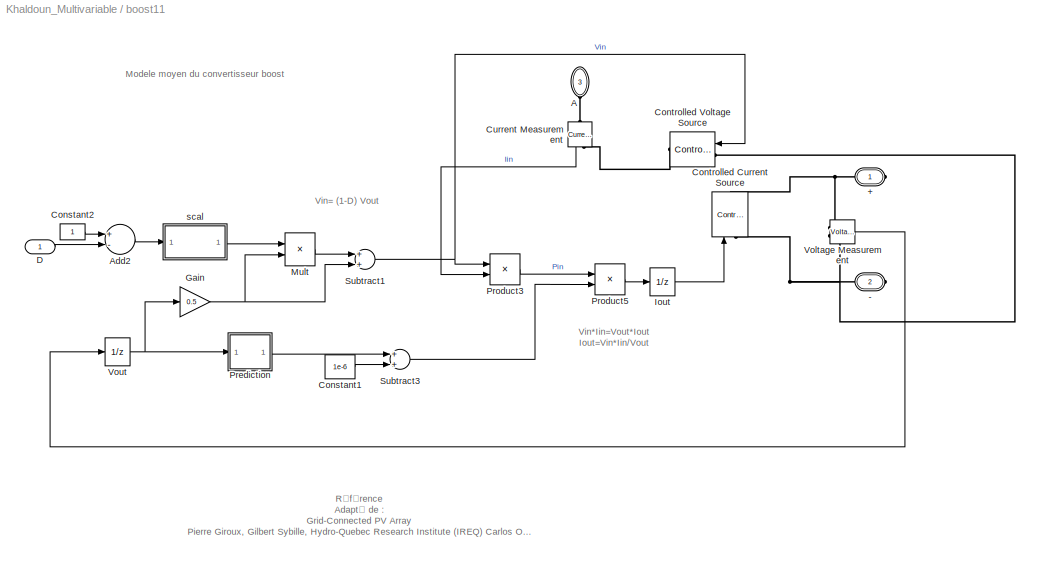
BLOCK [SubSystem] boost11
  FunctionWithSeparateData = off
  MaskHideContents = off
  MinAlgLoopOccurrences = off
  Opaque = off
  Ports = [1, 0, 0, 0, 0, 1, 2]
  PropExecContextOutsideSubsystem = off
  RTWSystemCode = Auto
  RequestExecContextInheritance = off
  SID = 1040
BLOCK [PMIOPort] boost11/+
  Port = 1
  SID = 1070
  Side = Right
  Tag = PMCPort
BLOCK [PMIOPort] boost11/-
  Port = 2
  SID = 1071
  Side = Right
  Tag = PMCPort
BLOCK [PMIOPort] boost11/A
  Port = 3
  SID = 1072
  Side = Left
  Tag = PMCPort
BLOCK [Sum] boost11/Add2
  InputSameDT = off
  Inputs = +-
  OutDataTypeStr = Inherit: Inherit via internal rule
  Ports = [2, 1]
  SID = 1042
  SaturateOnIntegerOverflow = off
BLOCK [Constant] boost11/Constant1
  SID = 1043
  Value = 1e-6
BLOCK [Constant] boost11/Constant2
  SID = 1044
BLOCK [Reference] boost11/Controlled Current Source  REF=powerlib/Electrical\nSources/Controlled Current Source
  Amplitude = 0
  Frequency = 0
  Initialize = on
  Measurements = None
  Phase = 0
  Ports = [1, 0, 0, 0, 0, 1, 1]
  SID = 1045
  SourceBlock = powerlib/Electrical\nSources/Controlled Current Source
  SourceType = Controlled Current Source
  Source_Type = AC
BLOCK [Reference] boost11/Controlled Voltage Source  REF=powerlib/Electrical\nSources/Controlled Voltage Source
  Amplitude = 0
  Frequency = 0
  Initialize = on
  Measurements = None
  Phase = 0
  Ports = [1, 0, 0, 0, 0, 1, 1]
  SID = 1046
  SourceBlock = powerlib/Electrical\nSources/Controlled Voltage Source
  SourceType = Controlled Voltage Source
  Source_Type = AC
BLOCK [Reference] boost11/Current Measurement  REF=powerlib/Measurements/Current Measurement
  OutputType = Complex
  PSBequivalent = 0
  PhasorSimulation = off
  Ports = [0, 1, 0, 0, 0, 1, 1]
  SID = 1047
  SourceBlock = powerlib/Measurements/Current Measurement
  SourceType = Current Measurement
BLOCK [Inport] boost11/D
  IconDisplay = Port number
  SID = 1041
BLOCK [Gain] boost11/Gain
  Gain = 0.5
  OutDataTypeStr = Inherit: Inherit via internal rule
  ParamDataTypeStr = Inherit: Inherit via internal rule
  SID = 1048
  SaturateOnIntegerOverflow = off
BLOCK [UnitDelay] boost11/Iout
  SID = 1049
  SampleTime = Ts
BLOCK [Product] boost11/Mult
  InputSameDT = off
  Inputs = **
  OutDataTypeStr = Inherit: Inherit via internal rule
  Ports = [2, 1]
  RndMeth = Floor
  SID = 1050
  SaturateOnIntegerOverflow = off
BLOCK [SubSystem] boost11/Prediction
  FunctionWithSeparateData = off
  MaskHideContents = off
  MinAlgLoopOccurrences = off
  Opaque = off
  Ports = [1, 1]
  PropExecContextOutsideSubsystem = off
  RTWSystemCode = Auto
  RequestExecContextInheritance = off
  SID = 1051
BLOCK [Gain] boost11/Prediction/Gain
  Gain = 2
  OutDataTypeStr = Inherit: Inherit via internal rule
  ParamDataTypeStr = Inherit: Inherit via internal rule
  SID = 1053
  SaturateOnIntegerOverflow = off
BLOCK [Inport] boost11/Prediction/In
  IconDisplay = Port number
  SID = 1052
BLOCK [Outport] boost11/Prediction/Out
  IconDisplay = Port number
  SID = 1056
BLOCK [Sum] boost11/Prediction/Subtract2
  InputSameDT = off
  Inputs = +-
  OutDataTypeStr = Inherit: Inherit via internal rule
  Ports = [2, 1]
  SID = 1054
  SaturateOnIntegerOverflow = off
BLOCK [UnitDelay] boost11/Prediction/prediction
  SID = 1055
  SampleTime = Ts
BLOCK [Product] boost11/Product3
  InputSameDT = off
  OutDataTypeStr = Inherit: Inherit via internal rule
  Ports = [2, 1]
  SID = 1057
  SaturateOnIntegerOverflow = off
BLOCK [Product] boost11/Product5
  InputSameDT = off
  Inputs = */
  OutDataTypeStr = Inherit: Inherit via internal rule
  Ports = [2, 1]
  SID = 1058
  SaturateOnIntegerOverflow = off
BLOCK [Sum] boost11/Subtract1
  InputSameDT = off
  OutDataTypeStr = Inherit: Inherit via internal rule
  Ports = [2, 1]
  SID = 1059
  SaturateOnIntegerOverflow = off
BLOCK [Sum] boost11/Subtract3
  InputSameDT = off
  OutDataTypeStr = Inherit: Inherit via internal rule
  Ports = [2, 1]
  SID = 1060
  SaturateOnIntegerOverflow = off
BLOCK [Reference] boost11/Voltage Measurement  REF=powerlib/Measurements/Voltage Measurement
  OutputType = Complex
  PSBequivalent = 0
  PhasorSimulation = off
  Ports = [0, 1, 0, 0, 0, 2]
  SID = 1061
  SourceBlock = powerlib/Measurements/Voltage Measurement
  SourceType = Voltage Measurement
BLOCK [UnitDelay] boost11/Vout
  SID = 1062
  SampleTime = Ts
BLOCK [SubSystem] boost11/scal
  FunctionWithSeparateData = off
  MaskHideContents = off
  MinAlgLoopOccurrences = off
  Opaque = off
  Ports = [1, 1]
  PropExecContextOutsideSubsystem = off
  RTWSystemCode = Auto
  RequestExecContextInheritance = off
  SID = 1063
BLOCK [Bias] boost11/scal/Bias
  Bias = -0.5
  SID = 1065
  SaturateOnIntegerOverflow = off
BLOCK [Inport] boost11/scal/D
  IconDisplay = Port number
  SID = 1064
BLOCK [Gain] boost11/scal/Gain
  Gain = 2
  OutDataTypeStr = Inherit: Inherit via internal rule
  ParamDataTypeStr = Inherit: Inherit via internal rule
  SID = 1066
  SaturateOnIntegerOverflow = off
BLOCK [Saturate] boost11/scal/Saturation
  InputPortMap = u0
  LowerLimit = -1
  Ports = [1, 1]
  SID = 1067
  UpperLimit = 1
BLOCK [Outport] boost11/scal/m
  IconDisplay = Port number
  SID = 1068
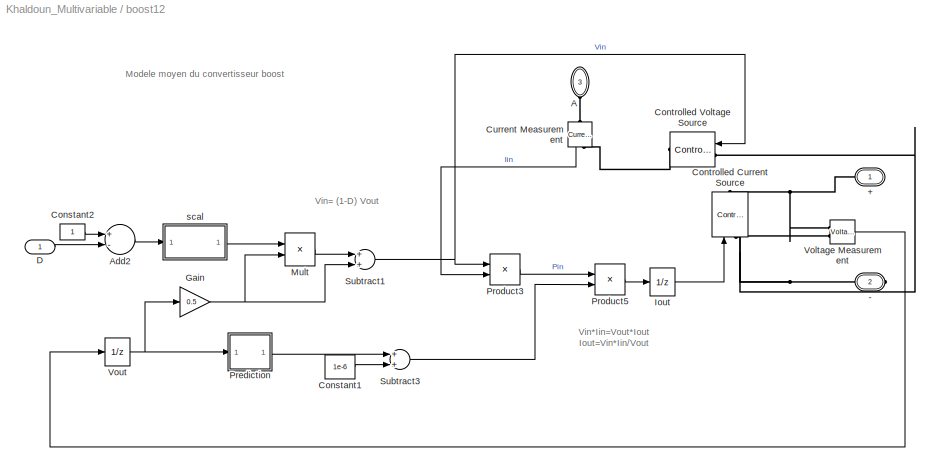
BLOCK [SubSystem] boost12
  FunctionWithSeparateData = off
  MaskHideContents = off
  MinAlgLoopOccurrences = off
  Opaque = off
  Ports = [1, 0, 0, 0, 0, 1, 2]
  PropExecContextOutsideSubsystem = off
  RTWSystemCode = Auto
  RequestExecContextInheritance = off
  SID = 1077
BLOCK [PMIOPort] boost12/+
  Port = 1
  SID = 1107
  Side = Right
  Tag = PMCPort
BLOCK [PMIOPort] boost12/-
  Port = 2
  SID = 1108
  Side = Right
  Tag = PMCPort
BLOCK [PMIOPort] boost12/A
  Port = 3
  SID = 1109
  Side = Left
  Tag = PMCPort
BLOCK [Sum] boost12/Add2
  InputSameDT = off
  Inputs = +-
  OutDataTypeStr = Inherit: Inherit via internal rule
  Ports = [2, 1]
  SID = 1079
  SaturateOnIntegerOverflow = off
BLOCK [Constant] boost12/Constant1
  SID = 1080
  Value = 1e-6
BLOCK [Constant] boost12/Constant2
  SID = 1081
BLOCK [Reference] boost12/Controlled Current Source  REF=powerlib/Electrical\nSources/Controlled Current Source
  Amplitude = 0
  Frequency = 0
  Initialize = on
  Measurements = None
  Phase = 0
  Ports = [1, 0, 0, 0, 0, 1, 1]
  SID = 1082
  SourceBlock = powerlib/Electrical\nSources/Controlled Current Source
  SourceType = Controlled Current Source
  Source_Type = AC
BLOCK [Reference] boost12/Controlled Voltage Source  REF=powerlib/Electrical\nSources/Controlled Voltage Source
  Amplitude = 0
  Frequency = 0
  Initialize = on
  Measurements = None
  Phase = 0
  Ports = [1, 0, 0, 0, 0, 1, 1]
  SID = 1083
  SourceBlock = powerlib/Electrical\nSources/Controlled Voltage Source
  SourceType = Controlled Voltage Source
  Source_Type = AC
BLOCK [Reference] boost12/Current Measurement  REF=powerlib/Measurements/Current Measurement
  OutputType = Complex
  PSBequivalent = 0
  PhasorSimulation = off
  Ports = [0, 1, 0, 0, 0, 1, 1]
  SID = 1084
  SourceBlock = powerlib/Measurements/Current Measurement
  SourceType = Current Measurement
BLOCK [Inport] boost12/D
  IconDisplay = Port number
  SID = 1078
BLOCK [Gain] boost12/Gain
  Gain = 0.5
  OutDataTypeStr = Inherit: Inherit via internal rule
  ParamDataTypeStr = Inherit: Inherit via internal rule
  SID = 1085
  SaturateOnIntegerOverflow = off
BLOCK [UnitDelay] boost12/Iout
  SID = 1086
  SampleTime = Ts
BLOCK [Product] boost12/Mult
  InputSameDT = off
  Inputs = **
  OutDataTypeStr = Inherit: Inherit via internal rule
  Ports = [2, 1]
  RndMeth = Floor
  SID = 1087
  SaturateOnIntegerOverflow = off
BLOCK [SubSystem] boost12/Prediction
  FunctionWithSeparateData = off
  MaskHideContents = off
  MinAlgLoopOccurrences = off
  Opaque = off
  Ports = [1, 1]
  PropExecContextOutsideSubsystem = off
  RTWSystemCode = Auto
  RequestExecContextInheritance = off
  SID = 1088
BLOCK [Gain] boost12/Prediction/Gain
  Gain = 2
  OutDataTypeStr = Inherit: Inherit via internal rule
  ParamDataTypeStr = Inherit: Inherit via internal rule
  SID = 1090
  SaturateOnIntegerOverflow = off
BLOCK [Inport] boost12/Prediction/In
  IconDisplay = Port number
  SID = 1089
BLOCK [Outport] boost12/Prediction/Out
  IconDisplay = Port number
  SID = 1093
BLOCK [Sum] boost12/Prediction/Subtract2
  InputSameDT = off
  Inputs = +-
  OutDataTypeStr = Inherit: Inherit via internal rule
  Ports = [2, 1]
  SID = 1091
  SaturateOnIntegerOverflow = off
BLOCK [UnitDelay] boost12/Prediction/prediction
  SID = 1092
  SampleTime = Ts
BLOCK [Product] boost12/Product3
  InputSameDT = off
  OutDataTypeStr = Inherit: Inherit via internal rule
  Ports = [2, 1]
  SID = 1094
  SaturateOnIntegerOverflow = off
BLOCK [Product] boost12/Product5
  InputSameDT = off
  Inputs = */
  OutDataTypeStr = Inherit: Inherit via internal rule
  Ports = [2, 1]
  SID = 1095
  SaturateOnIntegerOverflow = off
BLOCK [Sum] boost12/Subtract1
  InputSameDT = off
  OutDataTypeStr = Inherit: Inherit via internal rule
  Ports = [2, 1]
  SID = 1096
  SaturateOnIntegerOverflow = off
BLOCK [Sum] boost12/Subtract3
  InputSameDT = off
  OutDataTypeStr = Inherit: Inherit via internal rule
  Ports = [2, 1]
  SID = 1097
  SaturateOnIntegerOverflow = off
BLOCK [Reference] boost12/Voltage Measurement  REF=powerlib/Measurements/Voltage Measurement
  OutputType = Complex
  PSBequivalent = 0
  PhasorSimulation = off
  Ports = [0, 1, 0, 0, 0, 2]
  SID = 1098
  SourceBlock = powerlib/Measurements/Voltage Measurement
  SourceType = Voltage Measurement
BLOCK [UnitDelay] boost12/Vout
  SID = 1099
  SampleTime = Ts
BLOCK [SubSystem] boost12/scal
  FunctionWithSeparateData = off
  MaskHideContents = off
  MinAlgLoopOccurrences = off
  Opaque = off
  Ports = [1, 1]
  PropExecContextOutsideSubsystem = off
  RTWSystemCode = Auto
  RequestExecContextInheritance = off
  SID = 1100
BLOCK [Bias] boost12/scal/Bias
  Bias = -0.5
  SID = 1102
  SaturateOnIntegerOverflow = off
BLOCK [Inport] boost12/scal/D
  IconDisplay = Port number
  SID = 1101
BLOCK [Gain] boost12/scal/Gain
  Gain = 2
  OutDataTypeStr = Inherit: Inherit via internal rule
  ParamDataTypeStr = Inherit: Inherit via internal rule
  SID = 1103
  SaturateOnIntegerOverflow = off
BLOCK [Saturate] boost12/scal/Saturation
  InputPortMap = u0
  LowerLimit = -1
  Ports = [1, 1]
  SID = 1104
  UpperLimit = 1
BLOCK [Outport] boost12/scal/m
  IconDisplay = Port number
  SID = 1105
BLOCK [SubSystem] boost13
  FunctionWithSeparateData = off
  MaskHideContents = off
  MinAlgLoopOccurrences = off
  Opaque = off
  Ports = [1, 0, 0, 0, 0, 1, 2]
  PropExecContextOutsideSubsystem = off
  RTWSystemCode = Auto
  RequestExecContextInheritance = off
  SID = 1113
BLOCK [PMIOPort] boost13/+
  Port = 1
  SID = 1143
  Side = Right
  Tag = PMCPort
BLOCK [PMIOPort] boost13/-
  Port = 2
  SID = 1144
  Side = Right
  Tag = PMCPort
BLOCK [PMIOPort] boost13/A
  Port = 3
  SID = 1145
  Side = Left
  Tag = PMCPort
BLOCK [Sum] boost13/Add2
  InputSameDT = off
  Inputs = +-
  OutDataTypeStr = Inherit: Inherit via internal rule
  Ports = [2, 1]
  SID = 1115
  SaturateOnIntegerOverflow = off
BLOCK [Constant] boost13/Constant1
  SID = 1116
  Value = 1e-6
BLOCK [Constant] boost13/Constant2
  SID = 1117
BLOCK [Reference] boost13/Controlled Current Source  REF=powerlib/Electrical\nSources/Controlled Current Source
  Amplitude = 0
  Frequency = 0
  Initialize = on
  Measurements = None
  Phase = 0
  Ports = [1, 0, 0, 0, 0, 1, 1]
  SID = 1118
  SourceBlock = powerlib/Electrical\nSources/Controlled Current Source
  SourceType = Controlled Current Source
  Source_Type = AC
BLOCK [Reference] boost13/Controlled Voltage Source  REF=powerlib/Electrical\nSources/Controlled Voltage Source
  Amplitude = 0
  Frequency = 0
  Initialize = on
  Measurements = None
  Phase = 0
  Ports = [1, 0, 0, 0, 0, 1, 1]
  SID = 1119
  SourceBlock = powerlib/Electrical\nSources/Controlled Voltage Source
  SourceType = Controlled Voltage Source
  Source_Type = AC
BLOCK [Reference] boost13/Current Measurement  REF=powerlib/Measurements/Current Measurement
  OutputType = Complex
  PSBequivalent = 0
  PhasorSimulation = off
  Ports = [0, 1, 0, 0, 0, 1, 1]
  SID = 1120
  SourceBlock = powerlib/Measurements/Current Measurement
  SourceType = Current Measurement
BLOCK [Inport] boost13/D
  IconDisplay = Port number
  SID = 1114
BLOCK [Gain] boost13/Gain
  Gain = 0.5
  OutDataTypeStr = Inherit: Inherit via internal rule
  ParamDataTypeStr = Inherit: Inherit via internal rule
  SID = 1121
  SaturateOnIntegerOverflow = off
BLOCK [UnitDelay] boost13/Iout
  SID = 1122
  SampleTime = Ts
BLOCK [Product] boost13/Mult
  InputSameDT = off
  Inputs = **
  OutDataTypeStr = Inherit: Inherit via internal rule
  Ports = [2, 1]
  RndMeth = Floor
  SID = 1123
  SaturateOnIntegerOverflow = off
BLOCK [SubSystem] boost13/Prediction
  FunctionWithSeparateData = off
  MaskHideContents = off
  MinAlgLoopOccurrences = off
  Opaque = off
  Ports = [1, 1]
  PropExecContextOutsideSubsystem = off
  RTWSystemCode = Auto
  RequestExecContextInheritance = off
  SID = 1124
BLOCK [Gain] boost13/Prediction/Gain
  Gain = 2
  OutDataTypeStr = Inherit: Inherit via internal rule
  ParamDataTypeStr = Inherit: Inherit via internal rule
  SID = 1126
  SaturateOnIntegerOverflow = off
BLOCK [Inport] boost13/Prediction/In
  IconDisplay = Port number
  SID = 1125
BLOCK [Outport] boost13/Prediction/Out
  IconDisplay = Port number
  SID = 1129
BLOCK [Sum] boost13/Prediction/Subtract2
  InputSameDT = off
  Inputs = +-
  OutDataTypeStr = Inherit: Inherit via internal rule
  Ports = [2, 1]
  SID = 1127
  SaturateOnIntegerOverflow = off
BLOCK [UnitDelay] boost13/Prediction/prediction
  SID = 1128
  SampleTime = Ts
BLOCK [Product] boost13/Product3
  InputSameDT = off
  OutDataTypeStr = Inherit: Inherit via internal rule
  Ports = [2, 1]
  SID = 1130
  SaturateOnIntegerOverflow = off
BLOCK [Product] boost13/Product5
  InputSameDT = off
  Inputs = */
  OutDataTypeStr = Inherit: Inherit via internal rule
  Ports = [2, 1]
  SID = 1131
  SaturateOnIntegerOverflow = off
BLOCK [Sum] boost13/Subtract1
  InputSameDT = off
  OutDataTypeStr = Inherit: Inherit via internal rule
  Ports = [2, 1]
  SID = 1132
  SaturateOnIntegerOverflow = off
BLOCK [Sum] boost13/Subtract3
  InputSameDT = off
  OutDataTypeStr = Inherit: Inherit via internal rule
  Ports = [2, 1]
  SID = 1133
  SaturateOnIntegerOverflow = off
BLOCK [Reference] boost13/Voltage Measurement  REF=powerlib/Measurements/Voltage Measurement
  OutputType = Complex
  PSBequivalent = 0
  PhasorSimulation = off
  Ports = [0, 1, 0, 0, 0, 2]
  SID = 1134
  SourceBlock = powerlib/Measurements/Voltage Measurement
  SourceType = Voltage Measurement
BLOCK [UnitDelay] boost13/Vout
  SID = 1135
  SampleTime = Ts
BLOCK [SubSystem] boost13/scal
  FunctionWithSeparateData = off
  MaskHideContents = off
  MinAlgLoopOccurrences = off
  Opaque = off
  Ports = [1, 1]
  PropExecContextOutsideSubsystem = off
  RTWSystemCode = Auto
  RequestExecContextInheritance = off
  SID = 1136
BLOCK [Bias] boost13/scal/Bias
  Bias = -0.5
  SID = 1138
  SaturateOnIntegerOverflow = off
BLOCK [Inport] boost13/scal/D
  IconDisplay = Port number
  SID = 1137
BLOCK [Gain] boost13/scal/Gain
  Gain = 2
  OutDataTypeStr = Inherit: Inherit via internal rule
  ParamDataTypeStr = Inherit: Inherit via internal rule
  SID = 1139
  SaturateOnIntegerOverflow = off
BLOCK [Saturate] boost13/scal/Saturation
  InputPortMap = u0
  LowerLimit = -1
  Ports = [1, 1]
  SID = 1140
  UpperLimit = 1
BLOCK [Outport] boost13/scal/m
  IconDisplay = Port number
  SID = 1141
BLOCK [SubSystem] boost21
  FunctionWithSeparateData = off
  MaskHideContents = off
  MinAlgLoopOccurrences = off
  Opaque = off
  Ports = [1, 0, 0, 0, 0, 1, 2]
  PropExecContextOutsideSubsystem = off
  RTWSystemCode = Auto
  RequestExecContextInheritance = off
  SID = 1149
BLOCK [PMIOPort] boost21/+
  Port = 1
  SID = 1179
  Side = Right
  Tag = PMCPort
BLOCK [PMIOPort] boost21/-
  Port = 2
  SID = 1180
  Side = Right
  Tag = PMCPort
BLOCK [PMIOPort] boost21/A
  Port = 3
  SID = 1181
  Side = Left
  Tag = PMCPort
BLOCK [Sum] boost21/Add2
  InputSameDT = off
  Inputs = +-
  OutDataTypeStr = Inherit: Inherit via internal rule
  Ports = [2, 1]
  SID = 1151
  SaturateOnIntegerOverflow = off
BLOCK [Constant] boost21/Constant1
  SID = 1152
  Value = 1e-6
BLOCK [Constant] boost21/Constant2
  SID = 1153
BLOCK [Reference] boost21/Controlled Current Source  REF=powerlib/Electrical\nSources/Controlled Current Source
  Amplitude = 0
  Frequency = 0
  Initialize = on
  Measurements = None
  Phase = 0
  Ports = [1, 0, 0, 0, 0, 1, 1]
  SID = 1154
  SourceBlock = powerlib/Electrical\nSources/Controlled Current Source
  SourceType = Controlled Current Source
  Source_Type = AC
BLOCK [Reference] boost21/Controlled Voltage Source  REF=powerlib/Electrical\nSources/Controlled Voltage Source
  Amplitude = 0
  Frequency = 0
  Initialize = on
  Measurements = None
  Phase = 0
  Ports = [1, 0, 0, 0, 0, 1, 1]
  SID = 1155
  SourceBlock = powerlib/Electrical\nSources/Controlled Voltage Source
  SourceType = Controlled Voltage Source
  Source_Type = AC
BLOCK [Reference] boost21/Current Measurement  REF=powerlib/Measurements/Current Measurement
  OutputType = Complex
  PSBequivalent = 0
  PhasorSimulation = off
  Ports = [0, 1, 0, 0, 0, 1, 1]
  SID = 1156
  SourceBlock = powerlib/Measurements/Current Measurement
  SourceType = Current Measurement
BLOCK [Inport] boost21/D
  IconDisplay = Port number
  SID = 1150
BLOCK [Gain] boost21/Gain
  Gain = 0.5
  OutDataTypeStr = Inherit: Inherit via internal rule
  ParamDataTypeStr = Inherit: Inherit via internal rule
  SID = 1157
  SaturateOnIntegerOverflow = off
BLOCK [UnitDelay] boost21/Iout
  SID = 1158
  SampleTime = Ts
BLOCK [Product] boost21/Mult
  InputSameDT = off
  Inputs = **
  OutDataTypeStr = Inherit: Inherit via internal rule
  Ports = [2, 1]
  RndMeth = Floor
  SID = 1159
  SaturateOnIntegerOverflow = off
BLOCK [SubSystem] boost21/Prediction
  FunctionWithSeparateData = off
  MaskHideContents = off
  MinAlgLoopOccurrences = off
  Opaque = off
  Ports = [1, 1]
  PropExecContextOutsideSubsystem = off
  RTWSystemCode = Auto
  RequestExecContextInheritance = off
  SID = 1160
BLOCK [Gain] boost21/Prediction/Gain
  Gain = 2
  OutDataTypeStr = Inherit: Inherit via internal rule
  ParamDataTypeStr = Inherit: Inherit via internal rule
  SID = 1162
  SaturateOnIntegerOverflow = off
BLOCK [Inport] boost21/Prediction/In
  IconDisplay = Port number
  SID = 1161
BLOCK [Outport] boost21/Prediction/Out
  IconDisplay = Port number
  SID = 1165
BLOCK [Sum] boost21/Prediction/Subtract2
  InputSameDT = off
  Inputs = +-
  OutDataTypeStr = Inherit: Inherit via internal rule
  Ports = [2, 1]
  SID = 1163
  SaturateOnIntegerOverflow = off
BLOCK [UnitDelay] boost21/Prediction/prediction
  SID = 1164
  SampleTime = Ts
BLOCK [Product] boost21/Product3
  InputSameDT = off
  OutDataTypeStr = Inherit: Inherit via internal rule
  Ports = [2, 1]
  SID = 1166
  SaturateOnIntegerOverflow = off
BLOCK [Product] boost21/Product5
  InputSameDT = off
  Inputs = */
  OutDataTypeStr = Inherit: Inherit via internal rule
  Ports = [2, 1]
  SID = 1167
  SaturateOnIntegerOverflow = off
BLOCK [Sum] boost21/Subtract1
  InputSameDT = off
  OutDataTypeStr = Inherit: Inherit via internal rule
  Ports = [2, 1]
  SID = 1168
  SaturateOnIntegerOverflow = off
BLOCK [Sum] boost21/Subtract3
  InputSameDT = off
  OutDataTypeStr = Inherit: Inherit via internal rule
  Ports = [2, 1]
  SID = 1169
  SaturateOnIntegerOverflow = off
BLOCK [Reference] boost21/Voltage Measurement  REF=powerlib/Measurements/Voltage Measurement
  OutputType = Complex
  PSBequivalent = 0
  PhasorSimulation = off
  Ports = [0, 1, 0, 0, 0, 2]
  SID = 1170
  SourceBlock = powerlib/Measurements/Voltage Measurement
  SourceType = Voltage Measurement
BLOCK [UnitDelay] boost21/Vout
  SID = 1171
  SampleTime = Ts
BLOCK [SubSystem] boost21/scal
  FunctionWithSeparateData = off
  MaskHideContents = off
  MinAlgLoopOccurrences = off
  Opaque = off
  Ports = [1, 1]
  PropExecContextOutsideSubsystem = off
  RTWSystemCode = Auto
  RequestExecContextInheritance = off
  SID = 1172
BLOCK [Bias] boost21/scal/Bias
  Bias = -0.5
  SID = 1174
  SaturateOnIntegerOverflow = off
BLOCK [Inport] boost21/scal/D
  IconDisplay = Port number
  SID = 1173
BLOCK [Gain] boost21/scal/Gain
  Gain = 2
  OutDataTypeStr = Inherit: Inherit via internal rule
  ParamDataTypeStr = Inherit: Inherit via internal rule
  SID = 1175
  SaturateOnIntegerOverflow = off
BLOCK [Saturate] boost21/scal/Saturation
  InputPortMap = u0
  LowerLimit = -1
  Ports = [1, 1]
  SID = 1176
  UpperLimit = 1
BLOCK [Outport] boost21/scal/m
  IconDisplay = Port number
  SID = 1177
BLOCK [SubSystem] boost22
  FunctionWithSeparateData = off
  MaskHideContents = off
  MinAlgLoopOccurrences = off
  Opaque = off
  Ports = [1, 0, 0, 0, 0, 1, 2]
  PropExecContextOutsideSubsystem = off
  RTWSystemCode = Auto
  RequestExecContextInheritance = off
  SID = 1185
BLOCK [PMIOPort] boost22/+
  Port = 1
  SID = 1215
  Side = Right
  Tag = PMCPort
BLOCK [PMIOPort] boost22/-
  Port = 2
  SID = 1216
  Side = Right
  Tag = PMCPort
BLOCK [PMIOPort] boost22/A
  Port = 3
  SID = 1217
  Side = Left
  Tag = PMCPort
BLOCK [Sum] boost22/Add2
  InputSameDT = off
  Inputs = +-
  OutDataTypeStr = Inherit: Inherit via internal rule
  Ports = [2, 1]
  SID = 1187
  SaturateOnIntegerOverflow = off
BLOCK [Constant] boost22/Constant1
  SID = 1188
  Value = 1e-6
BLOCK [Constant] boost22/Constant2
  SID = 1189
BLOCK [Reference] boost22/Controlled Current Source  REF=powerlib/Electrical\nSources/Controlled Current Source
  Amplitude = 0
  Frequency = 0
  Initialize = on
  Measurements = None
  Phase = 0
  Ports = [1, 0, 0, 0, 0, 1, 1]
  SID = 1190
  SourceBlock = powerlib/Electrical\nSources/Controlled Current Source
  SourceType = Controlled Current Source
  Source_Type = AC
BLOCK [Reference] boost22/Controlled Voltage Source  REF=powerlib/Electrical\nSources/Controlled Voltage Source
  Amplitude = 0
  Frequency = 0
  Initialize = on
  Measurements = None
  Phase = 0
  Ports = [1, 0, 0, 0, 0, 1, 1]
  SID = 1191
  SourceBlock = powerlib/Electrical\nSources/Controlled Voltage Source
  SourceType = Controlled Voltage Source
  Source_Type = AC
BLOCK [Reference] boost22/Current Measurement  REF=powerlib/Measurements/Current Measurement
  OutputType = Complex
  PSBequivalent = 0
  PhasorSimulation = off
  Ports = [0, 1, 0, 0, 0, 1, 1]
  SID = 1192
  SourceBlock = powerlib/Measurements/Current Measurement
  SourceType = Current Measurement
BLOCK [Inport] boost22/D
  IconDisplay = Port number
  SID = 1186
BLOCK [Gain] boost22/Gain
  Gain = 0.5
  OutDataTypeStr = Inherit: Inherit via internal rule
  ParamDataTypeStr = Inherit: Inherit via internal rule
  SID = 1193
  SaturateOnIntegerOverflow = off
BLOCK [UnitDelay] boost22/Iout
  SID = 1194
  SampleTime = Ts
BLOCK [Product] boost22/Mult
  InputSameDT = off
  Inputs = **
  OutDataTypeStr = Inherit: Inherit via internal rule
  Ports = [2, 1]
  RndMeth = Floor
  SID = 1195
  SaturateOnIntegerOverflow = off
BLOCK [SubSystem] boost22/Prediction
  FunctionWithSeparateData = off
  MaskHideContents = off
  MinAlgLoopOccurrences = off
  Opaque = off
  Ports = [1, 1]
  PropExecContextOutsideSubsystem = off
  RTWSystemCode = Auto
  RequestExecContextInheritance = off
  SID = 1196
BLOCK [Gain] boost22/Prediction/Gain
  Gain = 2
  OutDataTypeStr = Inherit: Inherit via internal rule
  ParamDataTypeStr = Inherit: Inherit via internal rule
  SID = 1198
  SaturateOnIntegerOverflow = off
BLOCK [Inport] boost22/Prediction/In
  IconDisplay = Port number
  SID = 1197
BLOCK [Outport] boost22/Prediction/Out
  IconDisplay = Port number
  SID = 1201
BLOCK [Sum] boost22/Prediction/Subtract2
  InputSameDT = off
  Inputs = +-
  OutDataTypeStr = Inherit: Inherit via internal rule
  Ports = [2, 1]
  SID = 1199
  SaturateOnIntegerOverflow = off
BLOCK [UnitDelay] boost22/Prediction/prediction
  SID = 1200
  SampleTime = Ts
BLOCK [Product] boost22/Product3
  InputSameDT = off
  OutDataTypeStr = Inherit: Inherit via internal rule
  Ports = [2, 1]
  SID = 1202
  SaturateOnIntegerOverflow = off
BLOCK [Product] boost22/Product5
  InputSameDT = off
  Inputs = */
  OutDataTypeStr = Inherit: Inherit via internal rule
  Ports = [2, 1]
  SID = 1203
  SaturateOnIntegerOverflow = off
BLOCK [Sum] boost22/Subtract1
  InputSameDT = off
  OutDataTypeStr = Inherit: Inherit via internal rule
  Ports = [2, 1]
  SID = 1204
  SaturateOnIntegerOverflow = off
BLOCK [Sum] boost22/Subtract3
  InputSameDT = off
  OutDataTypeStr = Inherit: Inherit via internal rule
  Ports = [2, 1]
  SID = 1205
  SaturateOnIntegerOverflow = off
BLOCK [Reference] boost22/Voltage Measurement  REF=powerlib/Measurements/Voltage Measurement
  OutputType = Complex
  PSBequivalent = 0
  PhasorSimulation = off
  Ports = [0, 1, 0, 0, 0, 2]
  SID = 1206
  SourceBlock = powerlib/Measurements/Voltage Measurement
  SourceType = Voltage Measurement
BLOCK [UnitDelay] boost22/Vout
  SID = 1207
  SampleTime = Ts
BLOCK [SubSystem] boost22/scal
  FunctionWithSeparateData = off
  MaskHideContents = off
  MinAlgLoopOccurrences = off
  Opaque = off
  Ports = [1, 1]
  PropExecContextOutsideSubsystem = off
  RTWSystemCode = Auto
  RequestExecContextInheritance = off
  SID = 1208
BLOCK [Bias] boost22/scal/Bias
  Bias = -0.5
  SID = 1210
  SaturateOnIntegerOverflow = off
BLOCK [Inport] boost22/scal/D
  IconDisplay = Port number
  SID = 1209
BLOCK [Gain] boost22/scal/Gain
  Gain = 2
  OutDataTypeStr = Inherit: Inherit via internal rule
  ParamDataTypeStr = Inherit: Inherit via internal rule
  SID = 1211
  SaturateOnIntegerOverflow = off
BLOCK [Saturate] boost22/scal/Saturation
  InputPortMap = u0
  LowerLimit = -1
  Ports = [1, 1]
  SID = 1212
  UpperLimit = 1
BLOCK [Outport] boost22/scal/m
  IconDisplay = Port number
  SID = 1213
BLOCK [SubSystem] boost23
  FunctionWithSeparateData = off
  MaskHideContents = off
  MinAlgLoopOccurrences = off
  Opaque = off
  Ports = [1, 0, 0, 0, 0, 1, 2]
  PropExecContextOutsideSubsystem = off
  RTWSystemCode = Auto
  RequestExecContextInheritance = off
  SID = 1221
BLOCK [PMIOPort] boost23/+
  Port = 1
  SID = 1251
  Side = Right
  Tag = PMCPort
BLOCK [PMIOPort] boost23/-
  Port = 2
  SID = 1252
  Side = Right
  Tag = PMCPort
BLOCK [PMIOPort] boost23/A
  Port = 3
  SID = 1253
  Side = Left
  Tag = PMCPort
BLOCK [Sum] boost23/Add2
  InputSameDT = off
  Inputs = +-
  OutDataTypeStr = Inherit: Inherit via internal rule
  Ports = [2, 1]
  SID = 1223
  SaturateOnIntegerOverflow = off
BLOCK [Constant] boost23/Constant1
  SID = 1224
  Value = 1e-6
BLOCK [Constant] boost23/Constant2
  SID = 1225
BLOCK [Reference] boost23/Controlled Current Source  REF=powerlib/Electrical\nSources/Controlled Current Source
  Amplitude = 0
  Frequency = 0
  Initialize = on
  Measurements = None
  Phase = 0
  Ports = [1, 0, 0, 0, 0, 1, 1]
  SID = 1226
  SourceBlock = powerlib/Electrical\nSources/Controlled Current Source
  SourceType = Controlled Current Source
  Source_Type = AC
BLOCK [Reference] boost23/Controlled Voltage Source  REF=powerlib/Electrical\nSources/Controlled Voltage Source
  Amplitude = 0
  Frequency = 0
  Initialize = on
  Measurements = None
  Phase = 0
  Ports = [1, 0, 0, 0, 0, 1, 1]
  SID = 1227
  SourceBlock = powerlib/Electrical\nSources/Controlled Voltage Source
  SourceType = Controlled Voltage Source
  Source_Type = AC
BLOCK [Reference] boost23/Current Measurement  REF=powerlib/Measurements/Current Measurement
  OutputType = Complex
  PSBequivalent = 0
  PhasorSimulation = off
  Ports = [0, 1, 0, 0, 0, 1, 1]
  SID = 1228
  SourceBlock = powerlib/Measurements/Current Measurement
  SourceType = Current Measurement
BLOCK [Inport] boost23/D
  IconDisplay = Port number
  SID = 1222
BLOCK [Gain] boost23/Gain
  Gain = 0.5
  OutDataTypeStr = Inherit: Inherit via internal rule
  ParamDataTypeStr = Inherit: Inherit via internal rule
  SID = 1229
  SaturateOnIntegerOverflow = off
BLOCK [UnitDelay] boost23/Iout
  SID = 1230
  SampleTime = Ts
BLOCK [Product] boost23/Mult
  InputSameDT = off
  Inputs = **
  OutDataTypeStr = Inherit: Inherit via internal rule
  Ports = [2, 1]
  RndMeth = Floor
  SID = 1231
  SaturateOnIntegerOverflow = off
BLOCK [SubSystem] boost23/Prediction
  FunctionWithSeparateData = off
  MaskHideContents = off
  MinAlgLoopOccurrences = off
  Opaque = off
  Ports = [1, 1]
  PropExecContextOutsideSubsystem = off
  RTWSystemCode = Auto
  RequestExecContextInheritance = off
  SID = 1232
BLOCK [Gain] boost23/Prediction/Gain
  Gain = 2
  OutDataTypeStr = Inherit: Inherit via internal rule
  ParamDataTypeStr = Inherit: Inherit via internal rule
  SID = 1234
  SaturateOnIntegerOverflow = off
BLOCK [Inport] boost23/Prediction/In
  IconDisplay = Port number
  SID = 1233
BLOCK [Outport] boost23/Prediction/Out
  IconDisplay = Port number
  SID = 1237
BLOCK [Sum] boost23/Prediction/Subtract2
  InputSameDT = off
  Inputs = +-
  OutDataTypeStr = Inherit: Inherit via internal rule
  Ports = [2, 1]
  SID = 1235
  SaturateOnIntegerOverflow = off
BLOCK [UnitDelay] boost23/Prediction/prediction
  SID = 1236
  SampleTime = Ts
BLOCK [Product] boost23/Product3
  InputSameDT = off
  OutDataTypeStr = Inherit: Inherit via internal rule
  Ports = [2, 1]
  SID = 1238
  SaturateOnIntegerOverflow = off
BLOCK [Product] boost23/Product5
  InputSameDT = off
  Inputs = */
  OutDataTypeStr = Inherit: Inherit via internal rule
  Ports = [2, 1]
  SID = 1239
  SaturateOnIntegerOverflow = off
BLOCK [Sum] boost23/Subtract1
  InputSameDT = off
  OutDataTypeStr = Inherit: Inherit via internal rule
  Ports = [2, 1]
  SID = 1240
  SaturateOnIntegerOverflow = off
BLOCK [Sum] boost23/Subtract3
  InputSameDT = off
  OutDataTypeStr = Inherit: Inherit via internal rule
  Ports = [2, 1]
  SID = 1241
  SaturateOnIntegerOverflow = off
BLOCK [Reference] boost23/Voltage Measurement  REF=powerlib/Measurements/Voltage Measurement
  OutputType = Complex
  PSBequivalent = 0
  PhasorSimulation = off
  Ports = [0, 1, 0, 0, 0, 2]
  SID = 1242
  SourceBlock = powerlib/Measurements/Voltage Measurement
  SourceType = Voltage Measurement
BLOCK [UnitDelay] boost23/Vout
  SID = 1243
  SampleTime = Ts
BLOCK [SubSystem] boost23/scal
  FunctionWithSeparateData = off
  MaskHideContents = off
  MinAlgLoopOccurrences = off
  Opaque = off
  Ports = [1, 1]
  PropExecContextOutsideSubsystem = off
  RTWSystemCode = Auto
  RequestExecContextInheritance = off
  SID = 1244
BLOCK [Bias] boost23/scal/Bias
  Bias = -0.5
  SID = 1246
  SaturateOnIntegerOverflow = off
BLOCK [Inport] boost23/scal/D
  IconDisplay = Port number
  SID = 1245
BLOCK [Gain] boost23/scal/Gain
  Gain = 2
  OutDataTypeStr = Inherit: Inherit via internal rule
  ParamDataTypeStr = Inherit: Inherit via internal rule
  SID = 1247
  SaturateOnIntegerOverflow = off
BLOCK [Saturate] boost23/scal/Saturation
  InputPortMap = u0
  LowerLimit = -1
  Ports = [1, 1]
  SID = 1248
  UpperLimit = 1
BLOCK [Outport] boost23/scal/m
  IconDisplay = Port number
  SID = 1249
BLOCK [Product] c10
  InputSameDT = off
  Inputs = 3
  OutDataTypeStr = Inherit: Inherit via internal rule
  Ports = [3, 1]
  SID = 678
  SaturateOnIntegerOverflow = off
BLOCK [Product] c11
  InputSameDT = off
  Inputs = 3
  OutDataTypeStr = Inherit: Inherit via internal rule
  Ports = [3, 1]
  SID = 679
  SaturateOnIntegerOverflow = off
BLOCK [Product] c12
  InputSameDT = off
  Inputs = 3
  OutDataTypeStr = Inherit: Inherit via internal rule
  Ports = [3, 1]
  SID = 680
  SaturateOnIntegerOverflow = off
BLOCK [Product] c7
  InputSameDT = off
  Inputs = 3
  OutDataTypeStr = Inherit: Inherit via internal rule
  Ports = [3, 1]
  SID = 686
  SaturateOnIntegerOverflow = off
BLOCK [Product] c8
  InputSameDT = off
  Inputs = 3
  OutDataTypeStr = Inherit: Inherit via internal rule
  Ports = [3, 1]
  SID = 687
  SaturateOnIntegerOverflow = off
BLOCK [Product] c9
  InputSameDT = off
  Inputs = 3
  OutDataTypeStr = Inherit: Inherit via internal rule
  Ports = [3, 1]
  SID = 688
  SaturateOnIntegerOverflow = off
BLOCK [Scope] d11
  DataFormat = StructureWithTime
  Decimation = 100
  Floating = off
  LimitDataPoints = off
  NumInputPorts = 1
  Ports = [1]
  SID = 1374
  SampleTime = 0
  SaveName = mv6
  SaveToWorkspace = on
  ShowLegends = off
  TimeRange = 1
  YMax = 599
  YMin = 582
BLOCK [Scope] d12
  DataFormat = StructureWithTime
  Decimation = 100
  Floating = off
  LimitDataPoints = off
  NumInputPorts = 1
  Ports = [1]
  SID = 1375
  SampleTime = 0
  SaveName = mv1
  SaveToWorkspace = on
  ShowLegends = off
  TimeRange = 1
  YMax = 599
  YMin = 582
BLOCK [Scope] d13
  DataFormat = StructureWithTime
  Decimation = 100
  Floating = off
  LimitDataPoints = off
  NumInputPorts = 1
  Ports = [1]
  SID = 1376
  SampleTime = 0
  SaveName = mv2
  SaveToWorkspace = on
  ShowLegends = off
  TimeRange = 1
  YMax = 599
  YMin = 582
BLOCK [Scope] d21
  DataFormat = StructureWithTime
  Decimation = 100
  Floating = off
  LimitDataPoints = off
  NumInputPorts = 1
  Ports = [1]
  SID = 1377
  SampleTime = 0
  SaveName = mv3
  SaveToWorkspace = on
  ShowLegends = off
  TimeRange = 1
  YMax = 599
  YMin = 582
BLOCK [Scope] d22
  DataFormat = StructureWithTime
  Decimation = 100
  Floating = off
  LimitDataPoints = off
  NumInputPorts = 1
  Ports = [1]
  SID = 1378
  SampleTime = 0
  SaveName = mv4
  SaveToWorkspace = on
  ShowLegends = off
  TimeRange = 1
  YMax = 599
  YMin = 582
BLOCK [Scope] d23
  DataFormat = StructureWithTime
  Decimation = 100
  Floating = off
  LimitDataPoints = off
  NumInputPorts = 1
  Ports = [1]
  SID = 1379
  SampleTime = 0
  SaveName = mv5
  SaveToWorkspace = on
  ShowLegends = off
  TimeRange = 1
  YMax = 599
  YMin = 582
BLOCK [Integrator] int1
  InitialCondition = 0.5
  LimitOutput = on
  LowerSaturationLimit = 0.2
  Ports = [1, 1]
  SID = 695
  UpperSaturationLimit = 0.8
BLOCK [Integrator] int2
  InitialCondition = 0.5
  LimitOutput = on
  LowerSaturationLimit = 0.2
  Ports = [1, 1]
  SID = 696
  UpperSaturationLimit = 0.8
BLOCK [Integrator] int3
  InitialCondition = 0.5
  LimitOutput = on
  LowerSaturationLimit = 0.2
  Ports = [1, 1]
  SID = 697
  UpperSaturationLimit = 0.8
BLOCK [Integrator] int4
  InitialCondition = 0.5
  LimitOutput = on
  LowerSaturationLimit = 0.2
  Ports = [1, 1]
  SID = 698
  UpperSaturationLimit = 0.8
BLOCK [Integrator] int5
  InitialCondition = 0.5
  LimitOutput = on
  LowerSaturationLimit = 0.2
  Ports = [1, 1]
  SID = 699
  UpperSaturationLimit = 0.8
BLOCK [Integrator] int6
  InitialCondition = 0.5
  LimitOutput = on
  LowerSaturationLimit = 0.2
  Ports = [1, 1]
  SID = 700
  UpperSaturationLimit = 0.8
BLOCK [Gain] k1
  Gain = 2/(a*a)
  OutDataTypeStr = Inherit: Inherit via internal rule
  ParamDataTypeStr = Inherit: Inherit via internal rule
  SID = 701
  SaturateOnIntegerOverflow = off
BLOCK [Gain] k10
  Gain = kg
  OutDataTypeStr = Inherit: Inherit via internal rule
  ParamDataTypeStr = Inherit: Inherit via internal rule
  SID = 702
  SaturateOnIntegerOverflow = off
BLOCK [Gain] k11
  Gain = kg
  OutDataTypeStr = Inherit: Inherit via internal rule
  ParamDataTypeStr = Inherit: Inherit via internal rule
  SID = 703
  SaturateOnIntegerOverflow = off
BLOCK [Gain] k12
  Gain = kg
  OutDataTypeStr = Inherit: Inherit via internal rule
  ParamDataTypeStr = Inherit: Inherit via internal rule
  SID = 704
  SaturateOnIntegerOverflow = off
BLOCK [Gain] k2
  Gain = 2/(a*a)
  OutDataTypeStr = Inherit: Inherit via internal rule
  ParamDataTypeStr = Inherit: Inherit via internal rule
  SID = 705
  SaturateOnIntegerOverflow = off
BLOCK [Gain] k3
  Gain = 2/(a*a)
  OutDataTypeStr = Inherit: Inherit via internal rule
  ParamDataTypeStr = Inherit: Inherit via internal rule
  SID = 706
  SaturateOnIntegerOverflow = off
BLOCK [Gain] k4
  Gain = 2/(a*a)
  OutDataTypeStr = Inherit: Inherit via internal rule
  ParamDataTypeStr = Inherit: Inherit via internal rule
  SID = 707
  SaturateOnIntegerOverflow = off
BLOCK [Gain] k5
  Gain = 2/(a*a)
  OutDataTypeStr = Inherit: Inherit via internal rule
  ParamDataTypeStr = Inherit: Inherit via internal rule
  SID = 708
  SaturateOnIntegerOverflow = off
BLOCK [Gain] k6
  Gain = 2/(a*a)
  OutDataTypeStr = Inherit: Inherit via internal rule
  ParamDataTypeStr = Inherit: Inherit via internal rule
  SID = 709
  SaturateOnIntegerOverflow = off
BLOCK [Gain] k7
  Gain = kg
  OutDataTypeStr = Inherit: Inherit via internal rule
  ParamDataTypeStr = Inherit: Inherit via internal rule
  SID = 710
  SaturateOnIntegerOverflow = off
BLOCK [Gain] k8
  Gain = kg
  OutDataTypeStr = Inherit: Inherit via internal rule
  ParamDataTypeStr = Inherit: Inherit via internal rule
  SID = 711
  SaturateOnIntegerOverflow = off
BLOCK [Gain] k9
  Gain = kg
  OutDataTypeStr = Inherit: Inherit via internal rule
  ParamDataTypeStr = Inherit: Inherit via internal rule
  SID = 712
  SaturateOnIntegerOverflow = off
BLOCK [Step] nnn10
  SID = 713
  SampleTime = 0
  Time = 0.2
BLOCK [Step] nnn11
  SID = 714
  SampleTime = 0
  Time = 0.2
BLOCK [Step] nnn6
  SID = 715
  SampleTime = 0
  Time = 0.2
BLOCK [Step] nnn7
  SID = 716
  SampleTime = 0
  Time = 0.2
BLOCK [Step] nnn8
  SID = 717
  SampleTime = 0
  Time = 0.2
BLOCK [Step] nnn9
  SID = 718
  SampleTime = 0
  Time = 0.2
BLOCK [Reference] powergui  REF=powerlib/powergui
  DisableRonSwitches = off
  DisableSnubberDevices = off
  DisableVfSwitches = off
  DisplayEquations = off
  DisplayStyle = 1
  EnableUseOfTLC = off
  ErrMax = 1e-4
  Frange = [0:2:500]
  FreqAxis = off
  FunctionMessages = off
  HookPort = off
  Interpol = off
  Iterations = 50
  MaxFrequency = 1000
  Pbase = 100e6
  Ports = []
  Priority = 1
  ResistiveCurrentMeasurement = off
  RestoreLinks = warning
  RmsSteady = 1
  SID = 719
  SPID = off
  SampleTime = Ts_Power
  ShowGrid = off
  SolverType = Tustin
  SourceBlock = powerlib/powergui
  SourceType = PSB option menu block
  StartTime = 0.0
  SwTol = 0
  Ts = 0
  UnitsV = kV
  UnitsW = MW
  UserData = DataTag4
  UserDataPersistent = on
  Xlog = on
  Ylog = off
  ZoomFFT = on
  cycles = 1
  display = off
  echomessages = off
  frequency = 60
  frequencyindice = 0
  frequencyindicesteady = 1
  fundamental = 60
  methode = off
  save = off
  variable = ZData
  x0status = blocks
BLOCK [Scope] puissance1
  DataFormat = StructureWithTime
  Decimation = 100
  Floating = off
  LimitDataPoints = off
  NumInputPorts = 1
  Ports = [1]
  SID = 720
  SampleTime = 0
  SaveName = mv
  SaveToWorkspace = on
  ShowLegends = off
  TimeRange = 1
  YMax = 1400
  YMin = 0
BLOCK [Reference] pv11  REF=powerlib/Elements/Series RLC Branch
  BranchType = C
  Capacitance = C1
  Inductance = 1.0
  InitialCurrent = 0
  InitialVoltage = C1_init
  LConnTagsString = __new0
  Measurements = None
  Ports = [0, 0, 0, 0, 0, 1, 1]
  RConnTagsString = __new0
  Resistance = 0.01
  SID = 1359
  SetiL0 = off
  Setx0 = on
  SourceBlock = powerlib/Elements/Series RLC Branch
  SourceType = Series RLC Branch
BLOCK [Reference] pv12  REF=powerlib/Elements/Series RLC Branch
  BranchType = C
  Capacitance = C1
  Inductance = 1.0
  InitialCurrent = 0
  InitialVoltage = C1_init
  LConnTagsString = __new0
  Measurements = None
  Ports = [0, 0, 0, 0, 0, 1, 1]
  RConnTagsString = __new0
  Resistance = 0.01
  SID = 1360
  SetiL0 = off
  Setx0 = on
  SourceBlock = powerlib/Elements/Series RLC Branch
  SourceType = Series RLC Branch
BLOCK [Reference] pv13  REF=powerlib/Elements/Series RLC Branch
  BranchType = C
  Capacitance = C1
  Inductance = 1.0
  InitialCurrent = 0
  InitialVoltage = C1_init
  LConnTagsString = __new0
  Measurements = None
  Ports = [0, 0, 0, 0, 0, 1, 1]
  RConnTagsString = __new0
  Resistance = 0.01
  SID = 1361
  SetiL0 = off
  Setx0 = on
  SourceBlock = powerlib/Elements/Series RLC Branch
  SourceType = Series RLC Branch
BLOCK [Reference] pv21  REF=powerlib/Elements/Series RLC Branch
  BranchType = C
  Capacitance = C1
  Inductance = 1.0
  InitialCurrent = 0
  InitialVoltage = C1_init
  LConnTagsString = __new0
  Measurements = None
  Ports = [0, 0, 0, 0, 0, 1, 1]
  RConnTagsString = __new0
  Resistance = 0.01
  SID = 1362
  SetiL0 = off
  Setx0 = on
  SourceBlock = powerlib/Elements/Series RLC Branch
  SourceType = Series RLC Branch
BLOCK [Reference] pv22  REF=powerlib/Elements/Series RLC Branch
  BranchType = C
  Capacitance = C1
  Inductance = 1.0
  InitialCurrent = 0
  InitialVoltage = C1_init
  LConnTagsString = __new0
  Measurements = None
  Ports = [0, 0, 0, 0, 0, 1, 1]
  RConnTagsString = __new0
  Resistance = 0.01
  SID = 1363
  SetiL0 = off
  Setx0 = on
  SourceBlock = powerlib/Elements/Series RLC Branch
  SourceType = Series RLC Branch
BLOCK [Reference] pv23  REF=powerlib/Elements/Series RLC Branch
  BranchType = C
  Capacitance = C1
  Inductance = 1.0
  InitialCurrent = 0
  InitialVoltage = C1_init
  LConnTagsString = __new0
  Measurements = None
  Ports = [0, 0, 0, 0, 0, 1, 1]
  RConnTagsString = __new0
  Resistance = 0.01
  SID = 1364
  SetiL0 = off
  Setx0 = on
  SourceBlock = powerlib/Elements/Series RLC Branch
  SourceType = Series RLC Branch
BLOCK [TransferFcn] s // s+Wh
  AbsoluteTolerance = 1e-6
  Denominator = [1 wh]
  Numerator = [1 0]
  SID = 722
BLOCK [Sin] s1
  Amplitude = a
  Frequency = w1/(2*pi)
  Ports = [0, 1]
  SID = 723
  SampleTime = 0
BLOCK [Sin] s2
  Amplitude = a
  Frequency = w2/(2*pi)
  Ports = [0, 1]
  SID = 724
  SampleTime = 0
BLOCK [Sin] s3
  Amplitude = a
  Frequency = w3/(2*pi)
  Ports = [0, 1]
  SID = 725
  SampleTime = 0
BLOCK [Sin] s4
  Amplitude = a
  Frequency = w4/(2*pi)
  Ports = [0, 1]
  SID = 726
  SampleTime = 0
BLOCK [Sin] s5
  Amplitude = a
  Frequency = w5/(2*pi)
  Ports = [0, 1]
  SID = 727
  SampleTime = 0
BLOCK [Sin] s6
  Amplitude = a
  Frequency = w6/(2*pi)
  Ports = [0, 1]
  SID = 728
  SampleTime = 0
ANNOTATION (root): Filtre passe-haut
ANNOTATION (root): Mise en marche
ANNOTATION (root): Perturbation (w1-w6)
ANNOTATION (root): Ts_Power=50 us\nTs_Control=100 us
ANNOTATION Bus Continu 300V: Banc de condensateurs\nFiltre les harmoniques du VSC
ANNOTATION Bus Continu 300V: Mesures
ANNOTATION Bus Continu 300V: Resau
ANNOTATION Bus Continu 300V: Référence\nAdapté de :\nGrid-Connected PV Array\nPierre Giroux, Gilbert Sybille, Hydro-Quebec Research Institute (IREQ) Carlos Osorio, Shripad Chandrachood, The Mathworks
ANNOTATION Bus Continu 300V/Boucle de Controle VSC: VSC Main Controller
ANNOTATION Bus Continu 300V/Boucle de Controle VSC/Current Regulator: (Vd_prim - Vd_conv) ~= + Iq * Ltot
ANNOTATION Bus Continu 300V/Boucle de Controle VSC/Current Regulator: (Vq_prim - Vq_conv) ~ = - Id * Ltot
ANNOTATION Bus Continu 300V/Boucle de Controle VSC/Current Regulator: Current Regulator \n(with feedforward)
ANNOTATION Bus Continu 300V/Boucle de Controle VSC/Current Regulator: For Ltot >> Rtot :
ANNOTATION Bus Continu 300V/Boucle de Controle VSC/Current Regulator: Id positive --> The converter generates active power (\"Inverter mode\") = Active Power P positive
ANNOTATION Bus Continu 300V/Boucle de Controle VSC/Current Regulator: Iq positive --> The converter absorbs reactive power (\"Inductive mode\") = Reactive Power Q negative
ANNOTATION Bus Continu 300V/Boucle de Controle VSC/Current Regulator: Ltot = Lxfo + Lchoke \nRtot = Rxfo + Rchoke
ANNOTATION Bus Continu 300V/Boucle de Controle VSC/Current Regulator: Sign Convention: Current going out of the converter = positive current
ANNOTATION Bus Continu 300V/Boucle de Controle VSC/Current Regulator: Vd_mes + Id*R - Iq*L + deriv(Id)*L/wbase= Vd_conv
ANNOTATION Bus Continu 300V/Boucle de Controle VSC/Current Regulator: Vq_mes + Id*L + Iq*R + deriv(Iq)*L/wbase= Vq_conv
ANNOTATION Bus Continu 300V/Boucle de Controle VSC/Current Regulator: harmonic filter neglected
ANNOTATION Bus Continu 300V/Boucle de Controle VSC/Uabc_ref Generation \nmax (m) = 1: (Correction for delai of Ts_Control)
ANNOTATION Bus Continu 300V/Boucle de Controle VSC/Uabc_ref Generation \nmax (m) = 1: (Correction for transformer\n D1 connection)
ANNOTATION PV1/Diode: k = 1.381e-23; % cste de Boltzmann \nq = 1.602e-19; % charge electron \nA = 1.81; % facteur de idealité de la diode (1<A<2)\nEg = 1.16; % energie de bandgap du semi-conducteur (eV)\nNs = 72; % cellules en =\nNp=1; % cellules en //\nki=1.96e-3; % Coefficient de température de court-circuit(A/°K)\nRs =2.48e-3; % résistance serie(Ohm)\nRp = 8.7; % résistance parallele(Ohm)\nTr =298.5; % temperature d...<+154ch>
ANNOTATION PV2/Diode: k = 1.381e-23; % cste de Boltzmann \nq = 1.602e-19; % charge electron \nA = 1.81; % facteur de idealité de la diode (1<A<2)\nEg = 1.16; % energie de bandgap du semi-conducteur (eV)\nNs = 72; % cellules en =\nNp=1; % cellules en //\nki=1.96e-3; % Coefficient de température de court-circuit(A/°K)\nRs =2.48e-3; % résistance serie(Ohm)\nRp = 8.7; % résistance parallele(Ohm)\nTr =298.5; % temperature d...<+154ch>
ANNOTATION PV3/Diode: k = 1.381e-23; % cste de Boltzmann \nq = 1.602e-19; % charge electron \nA = 1.81; % facteur de idealité de la diode (1<A<2)\nEg = 1.16; % energie de bandgap du semi-conducteur (eV)\nNs = 72; % cellules en =\nNp=1; % cellules en //\nki=1.96e-3; % Coefficient de température de court-circuit(A/°K)\nRs =2.48e-3; % résistance serie(Ohm)\nRp = 8.7; % résistance parallele(Ohm)\nTr =298.5; % temperature d...<+154ch>
ANNOTATION PV4/Diode: k = 1.381e-23; % cste de Boltzmann \nq = 1.602e-19; % charge electron \nA = 1.81; % facteur de idealité de la diode (1<A<2)\nEg = 1.16; % energie de bandgap du semi-conducteur (eV)\nNs = 72; % cellules en =\nNp=1; % cellules en //\nki=1.96e-3; % Coefficient de température de court-circuit(A/°K)\nRs =2.48e-3; % résistance serie(Ohm)\nRp = 8.7; % résistance parallele(Ohm)\nTr =298.5; % temperature d...<+154ch>
ANNOTATION PV5/Diode: k = 1.381e-23; % cste de Boltzmann \nq = 1.602e-19; % charge electron \nA = 1.81; % facteur de idealité de la diode (1<A<2)\nEg = 1.16; % energie de bandgap du semi-conducteur (eV)\nNs = 72; % cellules en =\nNp=1; % cellules en //\nki=1.96e-3; % Coefficient de température de court-circuit(A/°K)\nRs =2.48e-3; % résistance serie(Ohm)\nRp = 8.7; % résistance parallele(Ohm)\nTr =298.5; % temperature d...<+154ch>
ANNOTATION PV6/Diode: k = 1.381e-23; % cste de Boltzmann \nq = 1.602e-19; % charge electron \nA = 1.81; % facteur de idealité de la diode (1<A<2)\nEg = 1.16; % energie de bandgap du semi-conducteur (eV)\nNs = 72; % cellules en =\nNp=1; % cellules en //\nki=1.96e-3; % Coefficient de température de court-circuit(A/°K)\nRs =2.48e-3; % résistance serie(Ohm)\nRp = 8.7; % résistance parallele(Ohm)\nTr =298.5; % temperature d...<+154ch>
ANNOTATION boost11: Modele moyen du convertisseur boost
ANNOTATION boost11: Référence\nAdapté de :\nGrid-Connected PV Array\nPierre Giroux, Gilbert Sybille, Hydro-Quebec Research Institute (IREQ) Carlos Osorio, Shripad Chandrachood, The Mathworks
ANNOTATION boost11: Vin*Iin=Vout*Iout \nIout=Vin*Iin/Vout
ANNOTATION boost11: Vin= (1-D) Vout
ANNOTATION boost11/scal: Shifting from ]0 to 1[ to a ]-1 to 1[ scale
ANNOTATION boost12: Modele moyen du convertisseur boost
ANNOTATION boost12: Vin*Iin=Vout*Iout \nIout=Vin*Iin/Vout
ANNOTATION boost12: Vin= (1-D) Vout
ANNOTATION boost12/scal: Shifting from ]0 to 1[ to a ]-1 to 1[ scale
ANNOTATION boost13: Modele moyen du convertisseur boost
ANNOTATION boost13: Vin*Iin=Vout*Iout \nIout=Vin*Iin/Vout
ANNOTATION boost13: Vin= (1-D) Vout
ANNOTATION boost13/scal: Shifting from ]0 to 1[ to a ]-1 to 1[ scale
ANNOTATION boost21: Modele moyen du convertisseur boost
ANNOTATION boost21: Vin*Iin=Vout*Iout \nIout=Vin*Iin/Vout
ANNOTATION boost21: Vin= (1-D) Vout
ANNOTATION boost21/scal: Shifting from ]0 to 1[ to a ]-1 to 1[ scale
ANNOTATION boost22: Modele moyen du convertisseur boost
ANNOTATION boost22: Vin*Iin=Vout*Iout \nIout=Vin*Iin/Vout
ANNOTATION boost22: Vin= (1-D) Vout
ANNOTATION boost22/scal: Shifting from ]0 to 1[ to a ]-1 to 1[ scale
ANNOTATION boost23: Modele moyen du convertisseur boost
ANNOTATION boost23: Vin*Iin=Vout*Iout \nIout=Vin*Iin/Vout
ANNOTATION boost23: Vin= (1-D) Vout
ANNOTATION boost23/scal: Shifting from ]0 to 1[ to a ]-1 to 1[ scale
LINE Bus Continu 300V/Boucle de Controle VSC/Current Regulator/Add1:1 -> Bus Continu 300V/Boucle de Controle VSC/Current Regulator/Mux:1
LINE Bus Continu 300V/Boucle de Controle VSC/Current Regulator/Add2:1 -> Bus Continu 300V/Boucle de Controle VSC/Current Regulator/Saturation:1
LINE Bus Continu 300V/Boucle de Controle VSC/Current Regulator/Add3:1 -> Bus Continu 300V/Boucle de Controle VSC/Current Regulator/Mux:2
NET Bus Continu 300V/Boucle de Controle VSC/Current Regulator/Demux1:1 -> Bus Continu 300V/Boucle de Controle VSC/Current Regulator/Ltot_pu2:1, Bus Continu 300V/Boucle de Controle VSC/Current Regulator/Rtot_pu1:1
NET Bus Continu 300V/Boucle de Controle VSC/Current Regulator/Demux1:2 -> Bus Continu 300V/Boucle de Controle VSC/Current Regulator/Ltot_pu1:1, Bus Continu 300V/Boucle de Controle VSC/Current Regulator/Rtot_pu5:1
LINE Bus Continu 300V/Boucle de Controle VSC/Current Regulator/Demux:1 -> Bus Continu 300V/Boucle de Controle VSC/Current Regulator/Add1:1
LINE Bus Continu 300V/Boucle de Controle VSC/Current Regulator/Demux:2 -> Bus Continu 300V/Boucle de Controle VSC/Current Regulator/Add3:1
LINE Bus Continu 300V/Boucle de Controle VSC/Current Regulator/IdIq_mes:1 -> Bus Continu 300V/Boucle de Controle VSC/Current Regulator/Sum:1
NET Bus Continu 300V/Boucle de Controle VSC/Current Regulator/IdIq_ref:1 -> Bus Continu 300V/Boucle de Controle VSC/Current Regulator/Demux1:1, Bus Continu 300V/Boucle de Controle VSC/Current Regulator/Sum:2
LINE Bus Continu 300V/Boucle de Controle VSC/Current Regulator/Ltot_pu1:1 -> Bus Continu 300V/Boucle de Controle VSC/Current Regulator/Add1:3
LINE Bus Continu 300V/Boucle de Controle VSC/Current Regulator/Ltot_pu2:1 -> Bus Continu 300V/Boucle de Controle VSC/Current Regulator/Add3:3
LINE Bus Continu 300V/Boucle de Controle VSC/Current Regulator/Mux:1 -> Bus Continu 300V/Boucle de Controle VSC/Current Regulator/Add2:2
LINE Bus Continu 300V/Boucle de Controle VSC/Current Regulator/PI:1 -> Bus Continu 300V/Boucle de Controle VSC/Current Regulator/Add2:1
LINE Bus Continu 300V/Boucle de Controle VSC/Current Regulator/Rtot_pu1:1 -> Bus Continu 300V/Boucle de Controle VSC/Current Regulator/Add1:2
LINE Bus Continu 300V/Boucle de Controle VSC/Current Regulator/Rtot_pu5:1 -> Bus Continu 300V/Boucle de Controle VSC/Current Regulator/Add3:2
LINE Bus Continu 300V/Boucle de Controle VSC/Current Regulator/Saturation:1 -> Bus Continu 300V/Boucle de Controle VSC/Current Regulator/VdVq_conv:1
LINE Bus Continu 300V/Boucle de Controle VSC/Current Regulator/Sum:1 -> Bus Continu 300V/Boucle de Controle VSC/Current Regulator/PI:1
LINE Bus Continu 300V/Boucle de Controle VSC/Current Regulator/VdVq_mes:1 -> Bus Continu 300V/Boucle de Controle VSC/Current Regulator/Demux:1
LINE Bus Continu 300V/Boucle de Controle VSC/Current Regulator:1 -> Bus Continu 300V/Boucle de Controle VSC/Uabc_ref Generation \nmax (m) = 1:2
LINE Bus Continu 300V/Boucle de Controle VSC/Iabc_prim:1 -> Bus Continu 300V/Boucle de Controle VSC/PLL & Measurements:2
LINE Bus Continu 300V/Boucle de Controle VSC/Iq_ref:1 -> Bus Continu 300V/Boucle de Controle VSC/Mux:2
LINE Bus Continu 300V/Boucle de Controle VSC/Mux:1 -> Bus Continu 300V/Boucle de Controle VSC/Current Regulator:3
LINE Bus Continu 300V/Boucle de Controle VSC/PLL & Measurements/Iabc_prim:1 -> Bus Continu 300V/Boucle de Controle VSC/PLL & Measurements/V->pu1:1
LINE Bus Continu 300V/Boucle de Controle VSC/PLL & Measurements/PLL:1 -> Bus Continu 300V/Boucle de Controle VSC/PLL & Measurements/Terminator:1
LINE Bus Continu 300V/Boucle de Controle VSC/PLL & Measurements/PLL:2 -> Bus Continu 300V/Boucle de Controle VSC/PLL & Measurements/wt:1
NET Bus Continu 300V/Boucle de Controle VSC/PLL & Measurements/PLL:3 -> Bus Continu 300V/Boucle de Controle VSC/PLL & Measurements/abc_to_dq0\nTransformation1:2, Bus Continu 300V/Boucle de Controle VSC/PLL & Measurements/abc_to_dq0\nTransformation2:2
NET Bus Continu 300V/Boucle de Controle VSC/PLL & Measurements/Selector1:1 -> Bus Continu 300V/Boucle de Controle VSC/PLL & Measurements/Goto3:1, Bus Continu 300V/Boucle de Controle VSC/PLL & Measurements/IdIq_prim:1
LINE Bus Continu 300V/Boucle de Controle VSC/PLL & Measurements/Selector2:1 -> Bus Continu 300V/Boucle de Controle VSC/PLL & Measurements/VdVq_prim:1
LINE Bus Continu 300V/Boucle de Controle VSC/PLL & Measurements/V->pu1:1 -> Bus Continu 300V/Boucle de Controle VSC/PLL & Measurements/abc_to_dq0\nTransformation2:1
NET Bus Continu 300V/Boucle de Controle VSC/PLL & Measurements/V->pu:1 -> Bus Continu 300V/Boucle de Controle VSC/PLL & Measurements/PLL:1, Bus Continu 300V/Boucle de Controle VSC/PLL & Measurements/abc_to_dq0\nTransformation1:1
LINE Bus Continu 300V/Boucle de Controle VSC/PLL & Measurements/Vabc_prim:1 -> Bus Continu 300V/Boucle de Controle VSC/PLL & Measurements/V->pu:1
LINE Bus Continu 300V/Boucle de Controle VSC/PLL & Measurements/abc_to_dq0\nTransformation1:1 -> Bus Continu 300V/Boucle de Controle VSC/PLL & Measurements/Selector2:1
LINE Bus Continu 300V/Boucle de Controle VSC/PLL & Measurements/abc_to_dq0\nTransformation2:1 -> Bus Continu 300V/Boucle de Controle VSC/PLL & Measurements/Selector1:1
LINE Bus Continu 300V/Boucle de Controle VSC/PLL & Measurements:1 -> Bus Continu 300V/Boucle de Controle VSC/Uabc_ref Generation \nmax (m) = 1:1
LINE Bus Continu 300V/Boucle de Controle VSC/PLL & Measurements:2 -> Bus Continu 300V/Boucle de Controle VSC/Current Regulator:1
LINE Bus Continu 300V/Boucle de Controle VSC/PLL & Measurements:3 -> Bus Continu 300V/Boucle de Controle VSC/Current Regulator:2
LINE Bus Continu 300V/Boucle de Controle VSC/Uabc_ref Generation \nmax (m) = 1/Add1:1 -> Bus Continu 300V/Boucle de Controle VSC/Uabc_ref Generation \nmax (m) = 1/Add2:2
LINE Bus Continu 300V/Boucle de Controle VSC/Uabc_ref Generation \nmax (m) = 1/Add2:1 -> Bus Continu 300V/Boucle de Controle VSC/Uabc_ref Generation \nmax (m) = 1/Trigonometric\nFunction:1
LINE Bus Continu 300V/Boucle de Controle VSC/Uabc_ref Generation \nmax (m) = 1/Complex to\nMagnitude-Angle:1 -> Bus Continu 300V/Boucle de Controle VSC/Uabc_ref Generation \nmax (m) = 1/Saturation:1
LINE Bus Continu 300V/Boucle de Controle VSC/Uabc_ref Generation \nmax (m) = 1/Complex to\nMagnitude-Angle:2 -> Bus Continu 300V/Boucle de Controle VSC/Uabc_ref Generation \nmax (m) = 1/Add2:1
LINE Bus Continu 300V/Boucle de Controle VSC/Uabc_ref Generation \nmax (m) = 1/Constant1:1 -> Bus Continu 300V/Boucle de Controle VSC/Uabc_ref Generation \nmax (m) = 1/Gain1:1
LINE Bus Continu 300V/Boucle de Controle VSC/Uabc_ref Generation \nmax (m) = 1/Constant2:1 -> Bus Continu 300V/Boucle de Controle VSC/Uabc_ref Generation \nmax (m) = 1/Add1:2
LINE Bus Continu 300V/Boucle de Controle VSC/Uabc_ref Generation \nmax (m) = 1/Constant3:1 -> Bus Continu 300V/Boucle de Controle VSC/Uabc_ref Generation \nmax (m) = 1/Product:2
LINE Bus Continu 300V/Boucle de Controle VSC/Uabc_ref Generation \nmax (m) = 1/Constant4:1 -> Bus Continu 300V/Boucle de Controle VSC/Uabc_ref Generation \nmax (m) = 1/Add1:4
LINE Bus Continu 300V/Boucle de Controle VSC/Uabc_ref Generation \nmax (m) = 1/Constant:1 -> Bus Continu 300V/Boucle de Controle VSC/Uabc_ref Generation \nmax (m) = 1/Add1:3
LINE Bus Continu 300V/Boucle de Controle VSC/Uabc_ref Generation \nmax (m) = 1/Demux1:1 -> Bus Continu 300V/Boucle de Controle VSC/Uabc_ref Generation \nmax (m) = 1/Real-Imag to\nComplex:1
LINE Bus Continu 300V/Boucle de Controle VSC/Uabc_ref Generation \nmax (m) = 1/Demux1:2 -> Bus Continu 300V/Boucle de Controle VSC/Uabc_ref Generation \nmax (m) = 1/Real-Imag to\nComplex:2
LINE Bus Continu 300V/Boucle de Controle VSC/Uabc_ref Generation \nmax (m) = 1/Gain1:1 -> Bus Continu 300V/Boucle de Controle VSC/Uabc_ref Generation \nmax (m) = 1/Product:1
LINE Bus Continu 300V/Boucle de Controle VSC/Uabc_ref Generation \nmax (m) = 1/Product1:1 -> Bus Continu 300V/Boucle de Controle VSC/Uabc_ref Generation \nmax (m) = 1/Demux1:1
LINE Bus Continu 300V/Boucle de Controle VSC/Uabc_ref Generation \nmax (m) = 1/Product2:1 -> Bus Continu 300V/Boucle de Controle VSC/Uabc_ref Generation \nmax (m) = 1/Uabc_ref:1
LINE Bus Continu 300V/Boucle de Controle VSC/Uabc_ref Generation \nmax (m) = 1/Product:1 -> Bus Continu 300V/Boucle de Controle VSC/Uabc_ref Generation \nmax (m) = 1/Product1:2
LINE Bus Continu 300V/Boucle de Controle VSC/Uabc_ref Generation \nmax (m) = 1/Real-Imag to\nComplex:1 -> Bus Continu 300V/Boucle de Controle VSC/Uabc_ref Generation \nmax (m) = 1/Complex to\nMagnitude-Angle:1
NET Bus Continu 300V/Boucle de Controle VSC/Uabc_ref Generation \nmax (m) = 1/Saturation:1 -> Bus Continu 300V/Boucle de Controle VSC/Uabc_ref Generation \nmax (m) = 1/Goto1:1, Bus Continu 300V/Boucle de Controle VSC/Uabc_ref Generation \nmax (m) = 1/Product2:1
LINE Bus Continu 300V/Boucle de Controle VSC/Uabc_ref Generation \nmax (m) = 1/Trigonometric\nFunction:1 -> Bus Continu 300V/Boucle de Controle VSC/Uabc_ref Generation \nmax (m) = 1/Product2:2
LINE Bus Continu 300V/Boucle de Controle VSC/Uabc_ref Generation \nmax (m) = 1/VdVq_conv:1 -> Bus Continu 300V/Boucle de Controle VSC/Uabc_ref Generation \nmax (m) = 1/Product1:1
LINE Bus Continu 300V/Boucle de Controle VSC/Uabc_ref Generation \nmax (m) = 1/wt:1 -> Bus Continu 300V/Boucle de Controle VSC/Uabc_ref Generation \nmax (m) = 1/Add1:1
LINE Bus Continu 300V/Boucle de Controle VSC/Uabc_ref Generation \nmax (m) = 1:1 -> Bus Continu 300V/Boucle de Controle VSC/Unit Delay:1
LINE Bus Continu 300V/Boucle de Controle VSC/Unit Delay:1 -> Bus Continu 300V/Boucle de Controle VSC/Uref:1
NET Bus Continu 300V/Boucle de Controle VSC/VDC Regulator/PI:1 -> Bus Continu 300V/Boucle de Controle VSC/VDC Regulator/Goto4:1, Bus Continu 300V/Boucle de Controle VSC/VDC Regulator/Id_ref:1
LINE Bus Continu 300V/Boucle de Controle VSC/VDC Regulator/Rtot_pu3:1 -> Bus Continu 300V/Boucle de Controle VSC/VDC Regulator/PI:1
LINE Bus Continu 300V/Boucle de Controle VSC/VDC Regulator/Sum:1 -> Bus Continu 300V/Boucle de Controle VSC/VDC Regulator/Rtot_pu3:1
LINE Bus Continu 300V/Boucle de Controle VSC/VDC Regulator/Vdc_mes:1 -> Bus Continu 300V/Boucle de Controle VSC/VDC Regulator/Sum:1
NET Bus Continu 300V/Boucle de Controle VSC/VDC Regulator/Vdc_ref:1 -> Bus Continu 300V/Boucle de Controle VSC/VDC Regulator/Goto1:1, Bus Continu 300V/Boucle de Controle VSC/VDC Regulator/Sum:2
LINE Bus Continu 300V/Boucle de Controle VSC/VDC Regulator:1 -> Bus Continu 300V/Boucle de Controle VSC/Mux:1
LINE Bus Continu 300V/Boucle de Controle VSC/Vabc_prim:1 -> Bus Continu 300V/Boucle de Controle VSC/PLL & Measurements:1
LINE Bus Continu 300V/Boucle de Controle VSC/Vdc_mes:1 -> Bus Continu 300V/Boucle de Controle VSC/VDC Regulator:1
LINE Bus Continu 300V/Boucle de Controle VSC/Vdc_ref1:1 -> Bus Continu 300V/Boucle de Controle VSC/VDC Regulator:2
LINE Bus Continu 300V/Boucle de Controle VSC:1 -> Bus Continu 300V/Onduleur VSC\nmodele moyen:1
LINE Bus Continu 300V/From10:1 -> Bus Continu 300V/Boucle de Controle VSC:1
LINE Bus Continu 300V/From9:1 -> Bus Continu 300V/Boucle de Controle VSC:2
LINE Bus Continu 300V/From:1 -> Bus Continu 300V/Boucle de Controle VSC:3
LINE Bus Continu 300V/Vdc :1 -> Bus Continu 300V/Goto4:1
LINE CM1:1 -> Goto5:1
LINE CM2:1 -> Goto2:1
LINE CM5:1 -> Goto1:1
LINE Filtre pass-bas1:1 -> k8:1
LINE Filtre pass-bas2:1 -> k9:1
LINE Filtre pass-bas3:1 -> k10:1
LINE Filtre pass-bas4:1 -> k11:1
LINE Filtre pass-bas5:1 -> k12:1
LINE Filtre pass-bas:1 -> k7:1
LINE From10:1 -> d13:1
LINE From11:1 -> d12:1
LINE From12:1 -> d23:1
LINE From13:1 -> d22:1
LINE From14:1 -> d21:1
LINE From1:1 -> boost11:1
LINE From23:1 -> boost23:1
LINE From2:1 -> Vt x It:1
NET From3:1 -> Pt:1, puissance1:1, s // s+Wh:1
LINE From4:1 -> Vt x It:2
LINE From5:1 -> boost12:1
LINE From6:1 -> boost13:1
LINE From7:1 -> boost21:1
LINE From8:1 -> boost22:1
LINE From9:1 -> d11:1
LINE PV1/Diode/Add:1 -> PV1/Diode/Product:2
LINE PV1/Diode/Math\nFunction:1 -> PV1/Diode/Add:2
LINE PV1/Diode/Product1:1 -> PV1/Diode/Math\nFunction:1
LINE PV1/Diode/Product:1 -> PV1/Diode/Id:1
LINE PV1/Diode/VT:1 -> PV1/Diode/Product1:2
LINE PV1/Diode/Vd:1 -> PV1/Diode/retard:1
LINE PV1/Diode/courant inv:1 -> PV1/Diode/Product:1
LINE PV1/Diode/one:1 -> PV1/Diode/Add:1
LINE PV1/Diode/retard:1 -> PV1/Diode/Product1:1
LINE PV1/Eclairage:1 -> PV1/x1000:1
LINE PV1/Iph_:1 -> PV1/Product1:1
LINE PV1/Product1:1 -> PV1/Iph:1
LINE PV1/x1000:1 -> PV1/Product1:2
LINE PV2/Diode/Add:1 -> PV2/Diode/Product:2
LINE PV2/Diode/Math\nFunction:1 -> PV2/Diode/Add:2
LINE PV2/Diode/Product1:1 -> PV2/Diode/Math\nFunction:1
LINE PV2/Diode/Product:1 -> PV2/Diode/Id:1
LINE PV2/Diode/VT:1 -> PV2/Diode/Product1:2
LINE PV2/Diode/Vd:1 -> PV2/Diode/retard:1
LINE PV2/Diode/courant inv:1 -> PV2/Diode/Product:1
LINE PV2/Diode/one:1 -> PV2/Diode/Add:1
LINE PV2/Diode/retard:1 -> PV2/Diode/Product1:1
LINE PV2/Eclairage\n(W//m2)/Demux:1 -> PV2/Eclairage\n(W//m2)/Ir:1
LINE PV2/Eclairage\n(W//m2)/FromWs:1 -> PV2/Eclairage\n(W//m2)/Demux:1
LINE PV2/Eclairage\n(W//m2):1 -> PV2/x1000:1
LINE PV2/Iph_:1 -> PV2/Product1:1
LINE PV2/Product1:1 -> PV2/Iph:1
LINE PV2/x1000:1 -> PV2/Product1:2
LINE PV3/Diode/Add:1 -> PV3/Diode/Product:2
LINE PV3/Diode/Math\nFunction:1 -> PV3/Diode/Add:2
LINE PV3/Diode/Product1:1 -> PV3/Diode/Math\nFunction:1
LINE PV3/Diode/Product:1 -> PV3/Diode/Id:1
LINE PV3/Diode/VT:1 -> PV3/Diode/Product1:2
LINE PV3/Diode/Vd:1 -> PV3/Diode/retard:1
LINE PV3/Diode/courant inv:1 -> PV3/Diode/Product:1
LINE PV3/Diode/one:1 -> PV3/Diode/Add:1
LINE PV3/Diode/retard:1 -> PV3/Diode/Product1:1
LINE PV3/Eclairage:1 -> PV3/x1000:1
LINE PV3/Iph_:1 -> PV3/Product1:1
LINE PV3/Product1:1 -> PV3/Iph:1
LINE PV3/x1000:1 -> PV3/Product1:2
LINE PV4/Diode/Add:1 -> PV4/Diode/Product:2
LINE PV4/Diode/Math\nFunction:1 -> PV4/Diode/Add:2
LINE PV4/Diode/Product1:1 -> PV4/Diode/Math\nFunction:1
LINE PV4/Diode/Product:1 -> PV4/Diode/Id:1
LINE PV4/Diode/VT:1 -> PV4/Diode/Product1:2
LINE PV4/Diode/Vd:1 -> PV4/Diode/retard:1
LINE PV4/Diode/courant inv:1 -> PV4/Diode/Product:1
LINE PV4/Diode/one:1 -> PV4/Diode/Add:1
LINE PV4/Diode/retard:1 -> PV4/Diode/Product1:1
LINE PV4/Eclairage:1 -> PV4/x1000:1
LINE PV4/Iph_:1 -> PV4/Product1:1
LINE PV4/Product1:1 -> PV4/Iph:1
LINE PV4/x1000:1 -> PV4/Product1:2
LINE PV5/Diode/Add:1 -> PV5/Diode/Product:2
LINE PV5/Diode/Math\nFunction:1 -> PV5/Diode/Add:2
LINE PV5/Diode/Product1:1 -> PV5/Diode/Math\nFunction:1
LINE PV5/Diode/Product:1 -> PV5/Diode/Id:1
LINE PV5/Diode/VT:1 -> PV5/Diode/Product1:2
LINE PV5/Diode/Vd:1 -> PV5/Diode/retard:1
LINE PV5/Diode/courant inv:1 -> PV5/Diode/Product:1
LINE PV5/Diode/one:1 -> PV5/Diode/Add:1
LINE PV5/Diode/retard:1 -> PV5/Diode/Product1:1
LINE PV5/Eclairage:1 -> PV5/x1000:1
LINE PV5/Iph_:1 -> PV5/Product1:1
LINE PV5/Product1:1 -> PV5/Iph:1
LINE PV5/x1000:1 -> PV5/Product1:2
LINE PV6/Diode/Add:1 -> PV6/Diode/Product:2
LINE PV6/Diode/Math\nFunction:1 -> PV6/Diode/Add:2
LINE PV6/Diode/Product1:1 -> PV6/Diode/Math\nFunction:1
LINE PV6/Diode/Product:1 -> PV6/Diode/Id:1
LINE PV6/Diode/VT:1 -> PV6/Diode/Product1:2
LINE PV6/Diode/Vd:1 -> PV6/Diode/retard:1
LINE PV6/Diode/courant inv:1 -> PV6/Diode/Product:1
LINE PV6/Diode/one:1 -> PV6/Diode/Add:1
LINE PV6/Diode/retard:1 -> PV6/Diode/Product1:1
LINE PV6/Eclairage\n(W//m2)/Demux:1 -> PV6/Eclairage\n(W//m2)/Ir:1
LINE PV6/Eclairage\n(W//m2)/FromWs:1 -> PV6/Eclairage\n(W//m2)/Demux:1
LINE PV6/Eclairage\n(W//m2):1 -> PV6/x1000:1
LINE PV6/Iph_:1 -> PV6/Product1:1
LINE PV6/Product1:1 -> PV6/Iph:1
LINE PV6/x1000:1 -> PV6/Product1:2
LINE Subsystem1/Add:1 -> Subsystem1/Out1:1
LINE Subsystem1/In1:1 -> Subsystem1/nn:1
LINE Subsystem1/n:1 -> Subsystem1/Add:2
LINE Subsystem1/nn:1 -> Subsystem1/Add:1
LINE Subsystem1/nnn:1 -> Subsystem1/nn:2
LINE Subsystem1:1 -> Filtre pass-bas:1
LINE Subsystem3/Add:1 -> Subsystem3/Out1:1
LINE Subsystem3/In1:1 -> Subsystem3/nn:1
LINE Subsystem3/n:1 -> Subsystem3/Add:2
LINE Subsystem3/nn:1 -> Subsystem3/Add:1
LINE Subsystem3/nnn:1 -> Subsystem3/nn:2
LINE Subsystem3:1 -> Filtre pass-bas1:1
LINE Subsystem4/Add:1 -> Subsystem4/Out1:1
LINE Subsystem4/In1:1 -> Subsystem4/nn:1
LINE Subsystem4/n:1 -> Subsystem4/Add:2
LINE Subsystem4/nn:1 -> Subsystem4/Add:1
LINE Subsystem4/nnn:1 -> Subsystem4/nn:2
LINE Subsystem4:1 -> Filtre pass-bas2:1
LINE Subsystem5/Add:1 -> Subsystem5/Out1:1
LINE Subsystem5/In1:1 -> Subsystem5/nn:1
LINE Subsystem5/n:1 -> Subsystem5/Add:2
LINE Subsystem5/nn:1 -> Subsystem5/Add:1
LINE Subsystem5/nnn:1 -> Subsystem5/nn:2
LINE Subsystem5:1 -> Filtre pass-bas3:1
LINE Subsystem6/Add:1 -> Subsystem6/Out1:1
LINE Subsystem6/In1:1 -> Subsystem6/nn:1
LINE Subsystem6/n:1 -> Subsystem6/Add:2
LINE Subsystem6/nn:1 -> Subsystem6/Add:1
LINE Subsystem6/nnn:1 -> Subsystem6/nn:2
LINE Subsystem6:1 -> Filtre pass-bas4:1
LINE Subsystem7/Add:1 -> Subsystem7/Out1:1
LINE Subsystem7/In1:1 -> Subsystem7/nn:1
LINE Subsystem7/n:1 -> Subsystem7/Add:2
LINE Subsystem7/nn:1 -> Subsystem7/Add:1
LINE Subsystem7/nnn:1 -> Subsystem7/nn:2
LINE Subsystem7:1 -> Filtre pass-bas5:1
LINE Sum2:1 -> Goto18:1
LINE Sum3:1 -> Goto19:1
LINE Sum4:1 -> Goto20:1
LINE Sum5:1 -> Goto21:1
LINE Sum6:1 -> Goto22:1
LINE Sum7:1 -> Goto23:1
LINE Vdc 1:1 -> Goto6:1
LINE Vdc 2:1 -> Goto7:1
LINE Vdc 3:1 -> Goto8:1
LINE Vdc 4:1 -> Goto9:1
LINE Vdc 5:1 -> Goto10:1
LINE Vdc 6:1 -> Goto11:1
LINE Vt x It:1 -> Goto3:1
LINE boost11/Add2:1 -> boost11/scal:1
LINE boost11/Constant1:1 -> boost11/Subtract3:2
LINE boost11/Constant2:1 -> boost11/Add2:1
LINE boost11/Current Measurement:1 -> boost11/Product3:2
LINE boost11/D:1 -> boost11/Add2:2
NET boost11/Gain:1 -> boost11/Mult:2, boost11/Subtract1:2
LINE boost11/Iout:1 -> boost11/Controlled Current Source:1
LINE boost11/Mult:1 -> boost11/Subtract1:1
LINE boost11/Prediction/Gain:1 -> boost11/Prediction/Subtract2:1
NET boost11/Prediction/In:1 -> boost11/Prediction/Gain:1, boost11/Prediction/prediction:1
LINE boost11/Prediction/Subtract2:1 -> boost11/Prediction/Out:1
LINE boost11/Prediction/prediction:1 -> boost11/Prediction/Subtract2:2
LINE boost11/Prediction:1 -> boost11/Subtract3:1
LINE boost11/Product3:1 -> boost11/Product5:1
LINE boost11/Product5:1 -> boost11/Iout:1
NET boost11/Subtract1:1 -> boost11/Controlled Voltage Source:1, boost11/Product3:1
LINE boost11/Subtract3:1 -> boost11/Product5:2
LINE boost11/Voltage Measurement:1 -> boost11/Vout:1
NET boost11/Vout:1 -> boost11/Gain:1, boost11/Prediction:1
LINE boost11/scal/Bias:1 -> boost11/scal/Gain:1
LINE boost11/scal/D:1 -> boost11/scal/Bias:1
LINE boost11/scal/Gain:1 -> boost11/scal/Saturation:1
LINE boost11/scal/Saturation:1 -> boost11/scal/m:1
LINE boost11/scal:1 -> boost11/Mult:1
LINE boost12/Add2:1 -> boost12/scal:1
LINE boost12/Constant1:1 -> boost12/Subtract3:2
LINE boost12/Constant2:1 -> boost12/Add2:1
LINE boost12/Current Measurement:1 -> boost12/Product3:2
LINE boost12/D:1 -> boost12/Add2:2
NET boost12/Gain:1 -> boost12/Mult:2, boost12/Subtract1:2
LINE boost12/Iout:1 -> boost12/Controlled Current Source:1
LINE boost12/Mult:1 -> boost12/Subtract1:1
LINE boost12/Prediction/Gain:1 -> boost12/Prediction/Subtract2:1
NET boost12/Prediction/In:1 -> boost12/Prediction/Gain:1, boost12/Prediction/prediction:1
LINE boost12/Prediction/Subtract2:1 -> boost12/Prediction/Out:1
LINE boost12/Prediction/prediction:1 -> boost12/Prediction/Subtract2:2
LINE boost12/Prediction:1 -> boost12/Subtract3:1
LINE boost12/Product3:1 -> boost12/Product5:1
LINE boost12/Product5:1 -> boost12/Iout:1
NET boost12/Subtract1:1 -> boost12/Controlled Voltage Source:1, boost12/Product3:1
LINE boost12/Subtract3:1 -> boost12/Product5:2
LINE boost12/Voltage Measurement:1 -> boost12/Vout:1
NET boost12/Vout:1 -> boost12/Gain:1, boost12/Prediction:1
LINE boost12/scal/Bias:1 -> boost12/scal/Gain:1
LINE boost12/scal/D:1 -> boost12/scal/Bias:1
LINE boost12/scal/Gain:1 -> boost12/scal/Saturation:1
LINE boost12/scal/Saturation:1 -> boost12/scal/m:1
LINE boost12/scal:1 -> boost12/Mult:1
LINE boost13/Add2:1 -> boost13/scal:1
LINE boost13/Constant1:1 -> boost13/Subtract3:2
LINE boost13/Constant2:1 -> boost13/Add2:1
LINE boost13/Current Measurement:1 -> boost13/Product3:2
LINE boost13/D:1 -> boost13/Add2:2
NET boost13/Gain:1 -> boost13/Mult:2, boost13/Subtract1:2
LINE boost13/Iout:1 -> boost13/Controlled Current Source:1
LINE boost13/Mult:1 -> boost13/Subtract1:1
LINE boost13/Prediction/Gain:1 -> boost13/Prediction/Subtract2:1
NET boost13/Prediction/In:1 -> boost13/Prediction/Gain:1, boost13/Prediction/prediction:1
LINE boost13/Prediction/Subtract2:1 -> boost13/Prediction/Out:1
LINE boost13/Prediction/prediction:1 -> boost13/Prediction/Subtract2:2
LINE boost13/Prediction:1 -> boost13/Subtract3:1
LINE boost13/Product3:1 -> boost13/Product5:1
LINE boost13/Product5:1 -> boost13/Iout:1
NET boost13/Subtract1:1 -> boost13/Controlled Voltage Source:1, boost13/Product3:1
LINE boost13/Subtract3:1 -> boost13/Product5:2
LINE boost13/Voltage Measurement:1 -> boost13/Vout:1
NET boost13/Vout:1 -> boost13/Gain:1, boost13/Prediction:1
LINE boost13/scal/Bias:1 -> boost13/scal/Gain:1
LINE boost13/scal/D:1 -> boost13/scal/Bias:1
LINE boost13/scal/Gain:1 -> boost13/scal/Saturation:1
LINE boost13/scal/Saturation:1 -> boost13/scal/m:1
LINE boost13/scal:1 -> boost13/Mult:1
LINE boost21/Add2:1 -> boost21/scal:1
LINE boost21/Constant1:1 -> boost21/Subtract3:2
LINE boost21/Constant2:1 -> boost21/Add2:1
LINE boost21/Current Measurement:1 -> boost21/Product3:2
LINE boost21/D:1 -> boost21/Add2:2
NET boost21/Gain:1 -> boost21/Mult:2, boost21/Subtract1:2
LINE boost21/Iout:1 -> boost21/Controlled Current Source:1
LINE boost21/Mult:1 -> boost21/Subtract1:1
LINE boost21/Prediction/Gain:1 -> boost21/Prediction/Subtract2:1
NET boost21/Prediction/In:1 -> boost21/Prediction/Gain:1, boost21/Prediction/prediction:1
LINE boost21/Prediction/Subtract2:1 -> boost21/Prediction/Out:1
LINE boost21/Prediction/prediction:1 -> boost21/Prediction/Subtract2:2
LINE boost21/Prediction:1 -> boost21/Subtract3:1
LINE boost21/Product3:1 -> boost21/Product5:1
LINE boost21/Product5:1 -> boost21/Iout:1
NET boost21/Subtract1:1 -> boost21/Controlled Voltage Source:1, boost21/Product3:1
LINE boost21/Subtract3:1 -> boost21/Product5:2
LINE boost21/Voltage Measurement:1 -> boost21/Vout:1
NET boost21/Vout:1 -> boost21/Gain:1, boost21/Prediction:1
LINE boost21/scal/Bias:1 -> boost21/scal/Gain:1
LINE boost21/scal/D:1 -> boost21/scal/Bias:1
LINE boost21/scal/Gain:1 -> boost21/scal/Saturation:1
LINE boost21/scal/Saturation:1 -> boost21/scal/m:1
LINE boost21/scal:1 -> boost21/Mult:1
LINE boost22/Add2:1 -> boost22/scal:1
LINE boost22/Constant1:1 -> boost22/Subtract3:2
LINE boost22/Constant2:1 -> boost22/Add2:1
LINE boost22/Current Measurement:1 -> boost22/Product3:2
LINE boost22/D:1 -> boost22/Add2:2
NET boost22/Gain:1 -> boost22/Mult:2, boost22/Subtract1:2
LINE boost22/Iout:1 -> boost22/Controlled Current Source:1
LINE boost22/Mult:1 -> boost22/Subtract1:1
LINE boost22/Prediction/Gain:1 -> boost22/Prediction/Subtract2:1
NET boost22/Prediction/In:1 -> boost22/Prediction/Gain:1, boost22/Prediction/prediction:1
LINE boost22/Prediction/Subtract2:1 -> boost22/Prediction/Out:1
LINE boost22/Prediction/prediction:1 -> boost22/Prediction/Subtract2:2
LINE boost22/Prediction:1 -> boost22/Subtract3:1
LINE boost22/Product3:1 -> boost22/Product5:1
LINE boost22/Product5:1 -> boost22/Iout:1
NET boost22/Subtract1:1 -> boost22/Controlled Voltage Source:1, boost22/Product3:1
LINE boost22/Subtract3:1 -> boost22/Product5:2
LINE boost22/Voltage Measurement:1 -> boost22/Vout:1
NET boost22/Vout:1 -> boost22/Gain:1, boost22/Prediction:1
LINE boost22/scal/Bias:1 -> boost22/scal/Gain:1
LINE boost22/scal/D:1 -> boost22/scal/Bias:1
LINE boost22/scal/Gain:1 -> boost22/scal/Saturation:1
LINE boost22/scal/Saturation:1 -> boost22/scal/m:1
LINE boost22/scal:1 -> boost22/Mult:1
LINE boost23/Add2:1 -> boost23/scal:1
LINE boost23/Constant1:1 -> boost23/Subtract3:2
LINE boost23/Constant2:1 -> boost23/Add2:1
LINE boost23/Current Measurement:1 -> boost23/Product3:2
LINE boost23/D:1 -> boost23/Add2:2
NET boost23/Gain:1 -> boost23/Mult:2, boost23/Subtract1:2
LINE boost23/Iout:1 -> boost23/Controlled Current Source:1
LINE boost23/Mult:1 -> boost23/Subtract1:1
LINE boost23/Prediction/Gain:1 -> boost23/Prediction/Subtract2:1
NET boost23/Prediction/In:1 -> boost23/Prediction/Gain:1, boost23/Prediction/prediction:1
LINE boost23/Prediction/Subtract2:1 -> boost23/Prediction/Out:1
LINE boost23/Prediction/prediction:1 -> boost23/Prediction/Subtract2:2
LINE boost23/Prediction:1 -> boost23/Subtract3:1
LINE boost23/Product3:1 -> boost23/Product5:1
LINE boost23/Product5:1 -> boost23/Iout:1
NET boost23/Subtract1:1 -> boost23/Controlled Voltage Source:1, boost23/Product3:1
LINE boost23/Subtract3:1 -> boost23/Product5:2
LINE boost23/Voltage Measurement:1 -> boost23/Vout:1
NET boost23/Vout:1 -> boost23/Gain:1, boost23/Prediction:1
LINE boost23/scal/Bias:1 -> boost23/scal/Gain:1
LINE boost23/scal/D:1 -> boost23/scal/Bias:1
LINE boost23/scal/Gain:1 -> boost23/scal/Saturation:1
LINE boost23/scal/Saturation:1 -> boost23/scal/m:1
LINE boost23/scal:1 -> boost23/Mult:1
LINE c10:1 -> Subsystem5:1
LINE c11:1 -> Subsystem6:1
LINE c12:1 -> Subsystem7:1
LINE c7:1 -> Subsystem1:1
LINE c8:1 -> Subsystem3:1
LINE c9:1 -> Subsystem4:1
LINE int1:1 -> Sum2:1
LINE int2:1 -> Sum3:1
LINE int3:1 -> Sum4:1
LINE int4:1 -> Sum5:1
LINE int5:1 -> Sum6:1
LINE int6:1 -> Sum7:1
LINE k10:1 -> int4:1
LINE k11:1 -> int5:1
LINE k12:1 -> int6:1
LINE k1:1 -> c7:2
LINE k2:1 -> c8:2
LINE k3:1 -> c9:2
LINE k4:1 -> c10:2
LINE k5:1 -> c11:2
LINE k6:1 -> c12:2
LINE k7:1 -> int1:1
LINE k8:1 -> int2:1
LINE k9:1 -> int3:1
LINE nnn10:1 -> c11:3
LINE nnn11:1 -> c12:3
LINE nnn6:1 -> c7:3
LINE nnn7:1 -> c8:3
LINE nnn8:1 -> c9:3
LINE nnn9:1 -> c10:3
NET s // s+Wh:1 -> c10:1, c11:1, c12:1, c7:1, c8:1, c9:1
NET s1:1 -> Sum2:2, k1:1
NET s2:1 -> Sum3:2, k2:1
NET s3:1 -> Sum4:2, k3:1
NET s4:1 -> Sum5:2, k4:1
NET s5:1 -> Sum6:2, k5:1
NET s6:1 -> Sum7:2, k6:1
PNET net1: Bus Continu 300V/+:RConn1 -- Bus Continu 300V/DC_Bus:LConn1 -- Bus Continu 300V/Onduleur VSC\nmodele moyen:RConn1 -- Bus Continu 300V/Vdc :LConn1
PNET net2: Bus Continu 300V/-:RConn1 -- Bus Continu 300V/DC_Bus:RConn1 -- Bus Continu 300V/Onduleur VSC\nmodele moyen:RConn2 -- Bus Continu 300V/Vdc :LConn2
PNET net3: Bus Continu 300V/20 kvar :LConn1 -- Bus Continu 300V/200 kVA\n180V // 25 kV:RConn1 -- Bus Continu 300V/L:RConn1
PNET net4: Bus Continu 300V/20 kvar :LConn2 -- Bus Continu 300V/200 kVA\n180V // 25 kV:RConn2 -- Bus Continu 300V/L:RConn2
PNET net5: Bus Continu 300V/20 kvar :LConn3 -- Bus Continu 300V/200 kVA\n180V // 25 kV:RConn3 -- Bus Continu 300V/L:RConn3
PLINE Bus Continu 300V/200 kVA\n180V // 25 kV:LConn1 -- Bus Continu 300V/B1:LConn1
PLINE Bus Continu 300V/200 kVA\n180V // 25 kV:LConn2 -- Bus Continu 300V/B1:LConn2
PLINE Bus Continu 300V/200 kVA\n180V // 25 kV:LConn3 -- Bus Continu 300V/B1:LConn3
PLINE Bus Continu 300V/600V\nUtlity Grid/120 kV // 25 kV\n47 MVA:LConn1 -- Bus Continu 300V/600V\nUtlity Grid/120kV 2500MVA:RConn1
PLINE Bus Continu 300V/600V\nUtlity Grid/120 kV // 25 kV\n47 MVA:LConn2 -- Bus Continu 300V/600V\nUtlity Grid/120kV 2500MVA:RConn2
PLINE Bus Continu 300V/600V\nUtlity Grid/120 kV // 25 kV\n47 MVA:LConn3 -- Bus Continu 300V/600V\nUtlity Grid/120kV 2500MVA:RConn3
PNET net6: Bus Continu 300V/600V\nUtlity Grid/120 kV // 25 kV\n47 MVA:RConn1 -- Bus Continu 300V/600V\nUtlity Grid/30-MW\n2-Mvar\nLoad:LConn1 -- Bus Continu 300V/600V\nUtlity Grid/Grounding\nTransformer :LConn1 -- Bus Continu 300V/600V\nUtlity Grid/PI Section\n14 km Feeder:RConn1
PNET net7: Bus Continu 300V/600V\nUtlity Grid/120 kV // 25 kV\n47 MVA:RConn2 -- Bus Continu 300V/600V\nUtlity Grid/30-MW\n2-Mvar\nLoad:LConn2 -- Bus Continu 300V/600V\nUtlity Grid/Grounding\nTransformer :LConn2 -- Bus Continu 300V/600V\nUtlity Grid/PI Section\n14 km Feeder:RConn2
PNET net8: Bus Continu 300V/600V\nUtlity Grid/120 kV // 25 kV\n47 MVA:RConn3 -- Bus Continu 300V/600V\nUtlity Grid/30-MW\n2-Mvar\nLoad:LConn3 -- Bus Continu 300V/600V\nUtlity Grid/Grounding\nTransformer :LConn3 -- Bus Continu 300V/600V\nUtlity Grid/PI Section\n14 km Feeder:RConn3
PNET net9: Bus Continu 300V/600V\nUtlity Grid/2-MW\nLoad:LConn1 -- Bus Continu 300V/600V\nUtlity Grid/PI Section\n14 km Feeder:LConn1 -- Bus Continu 300V/600V\nUtlity Grid/PI Section\n5 km Feeder:RConn1
PNET net10: Bus Continu 300V/600V\nUtlity Grid/2-MW\nLoad:LConn2 -- Bus Continu 300V/600V\nUtlity Grid/PI Section\n14 km Feeder:LConn2 -- Bus Continu 300V/600V\nUtlity Grid/PI Section\n5 km Feeder:RConn2
PNET net11: Bus Continu 300V/600V\nUtlity Grid/2-MW\nLoad:LConn3 -- Bus Continu 300V/600V\nUtlity Grid/PI Section\n14 km Feeder:LConn3 -- Bus Continu 300V/600V\nUtlity Grid/PI Section\n5 km Feeder:RConn3
PLINE Bus Continu 300V/600V\nUtlity Grid/3.3ohms :LConn1 -- Bus Continu 300V/600V\nUtlity Grid/Grounding\nTransformer :RConn1
PLINE Bus Continu 300V/600V\nUtlity Grid/3.3ohms :RConn1 -- Bus Continu 300V/600V\nUtlity Grid/Ground3:LConn1
PLINE Bus Continu 300V/600V\nUtlity Grid/A:RConn1 -- Bus Continu 300V/600V\nUtlity Grid/PI Section\n5 km Feeder:LConn1
PLINE Bus Continu 300V/600V\nUtlity Grid/B:RConn1 -- Bus Continu 300V/600V\nUtlity Grid/PI Section\n5 km Feeder:LConn2
PLINE Bus Continu 300V/600V\nUtlity Grid/C:RConn1 -- Bus Continu 300V/600V\nUtlity Grid/PI Section\n5 km Feeder:LConn3
PLINE Bus Continu 300V/600V\nUtlity Grid:LConn1 -- Bus Continu 300V/B1:RConn1
PLINE Bus Continu 300V/600V\nUtlity Grid:LConn2 -- Bus Continu 300V/B1:RConn2
PLINE Bus Continu 300V/600V\nUtlity Grid:LConn3 -- Bus Continu 300V/B1:RConn3
PLINE Bus Continu 300V/L:LConn1 -- Bus Continu 300V/Onduleur VSC\nmodele moyen:LConn1
PLINE Bus Continu 300V/L:LConn2 -- Bus Continu 300V/Onduleur VSC\nmodele moyen:LConn2
PLINE Bus Continu 300V/L:LConn3 -- Bus Continu 300V/Onduleur VSC\nmodele moyen:LConn3
PLINE Bus Continu 300V:LConn1 -- CM5:RConn1
PNET net12: Bus Continu 300V:LConn2 -- C4:RConn1 -- C5:RConn1 -- Ground:LConn1 -- PV3:RConn2 -- PV6:RConn2 -- Vdc 3:LConn2 -- Vdc 6:LConn2 -- boost13:RConn2 -- boost23:RConn2 -- pv13:RConn1 -- pv23:RConn1
PNET net13: C1:LConn1 -- C6:RConn1 -- PV4:RConn2 -- Vdc 4:LConn2 -- Vdc 5:LConn1 -- boost21:RConn2 -- boost22:RConn1 -- pv21:RConn1
PNET net14: C1:RConn1 -- C5:LConn1 -- PV5:RConn2 -- Vdc 5:LConn2 -- Vdc 6:LConn1 -- boost22:RConn2 -- boost23:RConn1 -- pv22:RConn1
PNET net15: C2:LConn1 -- C7:RConn1 -- PV1:RConn2 -- Vdc 1:LConn2 -- Vdc 2:LConn1 -- boost11:RConn2 -- boost12:RConn1 -- pv11:RConn1
PNET net16: C2:RConn1 -- C4:LConn1 -- PV2:RConn2 -- Vdc 2:LConn2 -- Vdc 3:LConn1 -- boost12:RConn2 -- boost13:RConn1 -- pv12:RConn1
PNET net17: C6:LConn1 -- CM2:LConn1 -- Vdc 4:LConn1 -- boost21:RConn1
PNET net18: C7:LConn1 -- CM1:LConn1 -- Vdc 1:LConn1 -- boost11:RConn1
PNET net19: CM1:RConn1 -- CM2:RConn1 -- CM5:LConn1
PLINE L1:LConn1 -- boost11:LConn1
PNET net20: L1:RConn1 -- PV1:RConn1 -- pv11:LConn1
PLINE L2:LConn1 -- boost12:LConn1
PNET net21: L2:RConn1 -- PV2:RConn1 -- pv12:LConn1
PLINE L3:LConn1 -- boost13:LConn1
PNET net22: L3:RConn1 -- PV3:RConn1 -- pv13:LConn1
PLINE L4:LConn1 -- boost21:LConn1
PNET net23: L4:RConn1 -- PV4:RConn1 -- pv21:LConn1
PLINE L5:LConn1 -- boost22:LConn1
PNET net24: L5:RConn1 -- PV5:RConn1 -- pv22:LConn1
PLINE L6:LConn1 -- boost23:LConn1
PNET net25: L6:RConn1 -- PV6:RConn1 -- pv23:LConn1
PLINE PV1/+:RConn1 -- PV1/Rs:RConn1
PNET net26: PV1/-:RConn1 -- PV1/Diode:RConn1 -- PV1/Iph:LConn1 -- PV1/Rp:RConn1
PNET net27: PV1/Diode/A:RConn1 -- PV1/Diode/Id:LConn1 -- PV1/Diode/Vd:LConn1
PNET net28: PV1/Diode/Id:RConn1 -- PV1/Diode/K:RConn1 -- PV1/Diode/Vd:LConn2
PNET net29: PV1/Diode:LConn1 -- PV1/Iph:RConn1 -- PV1/Rp:LConn1 -- PV1/Rs:LConn1
PLINE PV2/+:RConn1 -- PV2/Rs:RConn1
PNET net30: PV2/-:RConn1 -- PV2/Diode:RConn1 -- PV2/Iph:LConn1 -- PV2/Rp:RConn1
PNET net31: PV2/Diode/A:RConn1 -- PV2/Diode/Id:LConn1 -- PV2/Diode/Vd:LConn1
PNET net32: PV2/Diode/Id:RConn1 -- PV2/Diode/K:RConn1 -- PV2/Diode/Vd:LConn2
PNET net33: PV2/Diode:LConn1 -- PV2/Iph:RConn1 -- PV2/Rp:LConn1 -- PV2/Rs:LConn1
PLINE PV3/+:RConn1 -- PV3/Rs:RConn1
PNET net34: PV3/-:RConn1 -- PV3/Diode:RConn1 -- PV3/Iph:LConn1 -- PV3/Rp:RConn1
PNET net35: PV3/Diode/A:RConn1 -- PV3/Diode/Id:LConn1 -- PV3/Diode/Vd:LConn1
PNET net36: PV3/Diode/Id:RConn1 -- PV3/Diode/K:RConn1 -- PV3/Diode/Vd:LConn2
PNET net37: PV3/Diode:LConn1 -- PV3/Iph:RConn1 -- PV3/Rp:LConn1 -- PV3/Rs:LConn1
PLINE PV4/+:RConn1 -- PV4/Rs:RConn1
PNET net38: PV4/-:RConn1 -- PV4/Diode:RConn1 -- PV4/Iph:LConn1 -- PV4/Rp:RConn1
PNET net39: PV4/Diode/A:RConn1 -- PV4/Diode/Id:LConn1 -- PV4/Diode/Vd:LConn1
PNET net40: PV4/Diode/Id:RConn1 -- PV4/Diode/K:RConn1 -- PV4/Diode/Vd:LConn2
PNET net41: PV4/Diode:LConn1 -- PV4/Iph:RConn1 -- PV4/Rp:LConn1 -- PV4/Rs:LConn1
PLINE PV5/+:RConn1 -- PV5/Rs:RConn1
PNET net42: PV5/-:RConn1 -- PV5/Diode:RConn1 -- PV5/Iph:LConn1 -- PV5/Rp:RConn1
PNET net43: PV5/Diode/A:RConn1 -- PV5/Diode/Id:LConn1 -- PV5/Diode/Vd:LConn1
PNET net44: PV5/Diode/Id:RConn1 -- PV5/Diode/K:RConn1 -- PV5/Diode/Vd:LConn2
PNET net45: PV5/Diode:LConn1 -- PV5/Iph:RConn1 -- PV5/Rp:LConn1 -- PV5/Rs:LConn1
PLINE PV6/+:RConn1 -- PV6/Rs:RConn1
PNET net46: PV6/-:RConn1 -- PV6/Diode:RConn1 -- PV6/Iph:LConn1 -- PV6/Rp:RConn1
PNET net47: PV6/Diode/A:RConn1 -- PV6/Diode/Id:LConn1 -- PV6/Diode/Vd:LConn1
PNET net48: PV6/Diode/Id:RConn1 -- PV6/Diode/K:RConn1 -- PV6/Diode/Vd:LConn2
PNET net49: PV6/Diode:LConn1 -- PV6/Iph:RConn1 -- PV6/Rp:LConn1 -- PV6/Rs:LConn1
PNET net50: boost11/+:RConn1 -- boost11/Controlled Current Source:RConn1 -- boost11/Voltage Measurement:LConn1
PNET net51: boost11/-:RConn1 -- boost11/Controlled Current Source:LConn1 -- boost11/Controlled Voltage Source:LConn1 -- boost11/Voltage Measurement:LConn2
PLINE boost11/A:RConn1 -- boost11/Current Measurement:LConn1
PLINE boost11/Controlled Voltage Source:RConn1 -- boost11/Current Measurement:RConn1
PNET net52: boost12/+:RConn1 -- boost12/Controlled Current Source:RConn1 -- boost12/Voltage Measurement:LConn1
PNET net53: boost12/-:RConn1 -- boost12/Controlled Current Source:LConn1 -- boost12/Controlled Voltage Source:LConn1 -- boost12/Voltage Measurement:LConn2
PLINE boost12/A:RConn1 -- boost12/Current Measurement:LConn1
PLINE boost12/Controlled Voltage Source:RConn1 -- boost12/Current Measurement:RConn1
PNET net54: boost13/+:RConn1 -- boost13/Controlled Current Source:RConn1 -- boost13/Voltage Measurement:LConn1
PNET net55: boost13/-:RConn1 -- boost13/Controlled Current Source:LConn1 -- boost13/Controlled Voltage Source:LConn1 -- boost13/Voltage Measurement:LConn2
PLINE boost13/A:RConn1 -- boost13/Current Measurement:LConn1
PLINE boost13/Controlled Voltage Source:RConn1 -- boost13/Current Measurement:RConn1
PNET net56: boost21/+:RConn1 -- boost21/Controlled Current Source:RConn1 -- boost21/Voltage Measurement:LConn1
PNET net57: boost21/-:RConn1 -- boost21/Controlled Current Source:LConn1 -- boost21/Controlled Voltage Source:LConn1 -- boost21/Voltage Measurement:LConn2
PLINE boost21/A:RConn1 -- boost21/Current Measurement:LConn1
PLINE boost21/Controlled Voltage Source:RConn1 -- boost21/Current Measurement:RConn1
PNET net58: boost22/+:RConn1 -- boost22/Controlled Current Source:RConn1 -- boost22/Voltage Measurement:LConn1
PNET net59: boost22/-:RConn1 -- boost22/Controlled Current Source:LConn1 -- boost22/Controlled Voltage Source:LConn1 -- boost22/Voltage Measurement:LConn2
PLINE boost22/A:RConn1 -- boost22/Current Measurement:LConn1
PLINE boost22/Controlled Voltage Source:RConn1 -- boost22/Current Measurement:RConn1
PNET net60: boost23/+:RConn1 -- boost23/Controlled Current Source:RConn1 -- boost23/Voltage Measurement:LConn1
PNET net61: boost23/-:RConn1 -- boost23/Controlled Current Source:LConn1 -- boost23/Controlled Voltage Source:LConn1 -- boost23/Voltage Measurement:LConn2
PLINE boost23/A:RConn1 -- boost23/Current Measurement:LConn1
PLINE boost23/Controlled Voltage Source:RConn1 -- boost23/Current Measurement:RConn1
note: NET lines group one-source signal fan-out (src -> all destinations, sorted); 1:1 wires keep LINE; PNET lines group multi-terminal physical nets as a canonical sorted terminal list (undirected conserving connections); 2-terminal nets keep the pairwise PLINE form
